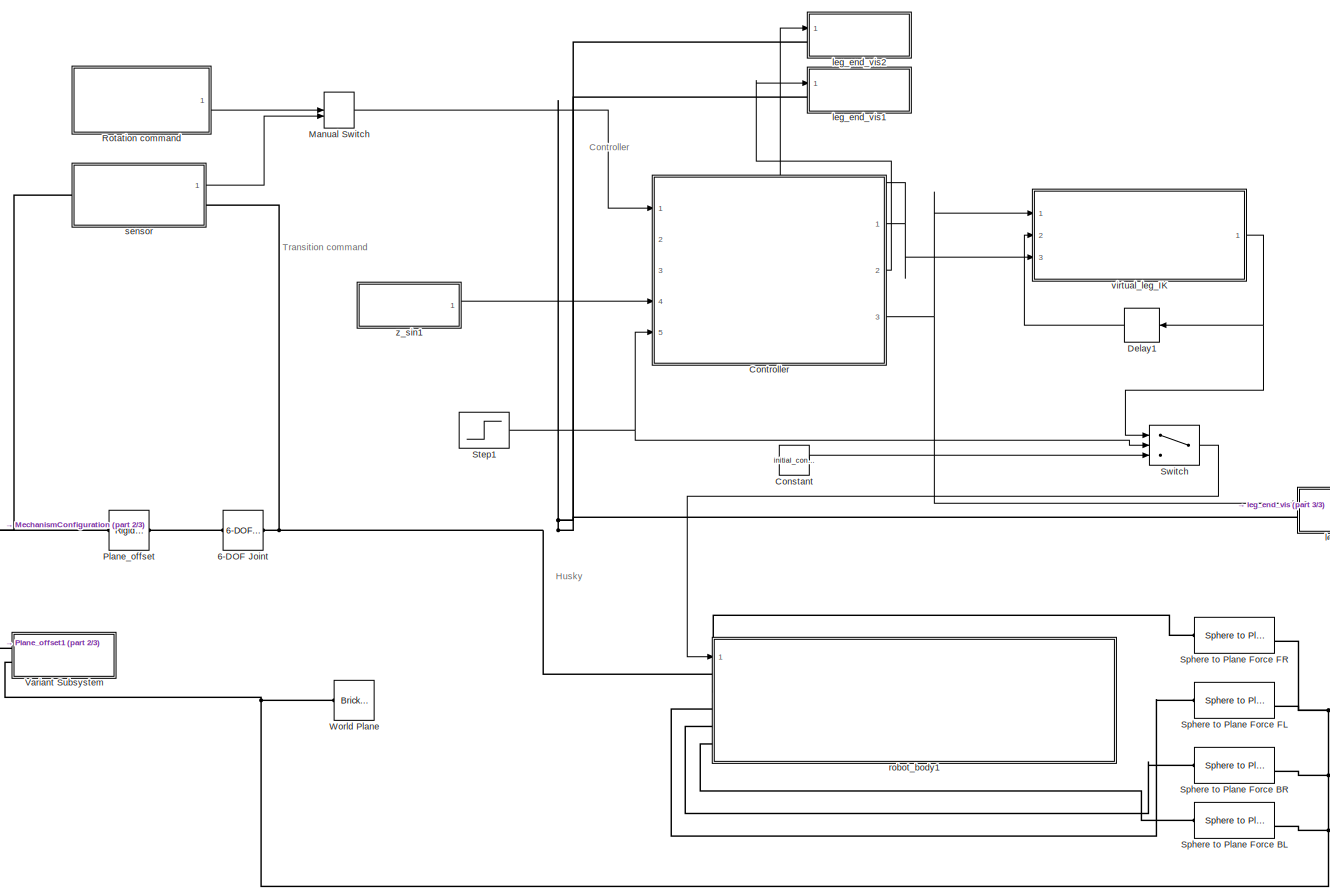
[diagram: root canvas - part 1/3, most of the canvas]
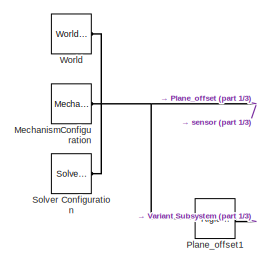
[diagram: root canvas - part 2/3, middle left region]
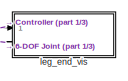
[diagram: root canvas - part 3/3, middle right region]
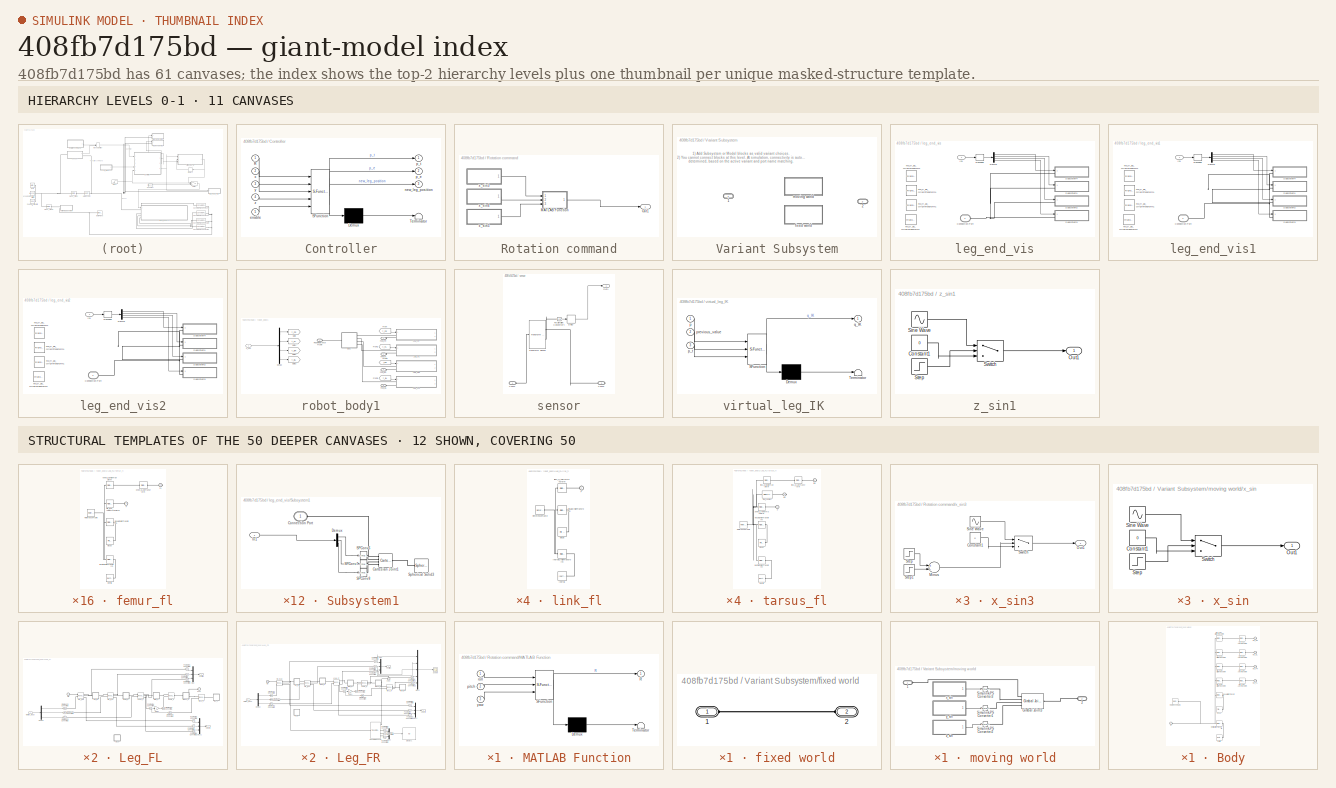
[diagram: thumbnail index - top-2 hierarchy levels (11 canvases) + 12 structural-template representatives of the remaining 50 canvases]
MODEL slx_408fb7d175bd
KIND model
CONFIG AbsTol = auto
CONFIG EnableMultiTasking = off
CONFIG FixedStep = Ts
CONFIG InitFcn = husky_balancing_init\n
CONFIG MaxStep = auto
CONFIG MinStep = auto
CONFIG RelTol = 1e-3
CONFIG SampleTimeConstraint = Unconstrained
CONFIG Solver = ode4
CONFIG SolverName = ode4
CONFIG StartTime = 0.0
CONFIG StopTime = 6
BLOCK [Reference] 6-DOF Joint  REF=sm_lib/Joints/6-DOF Joint
  Ports = [0, 0, 0, 0, 0, 1, 1]
  SourceBlock = sm_lib/Joints/6-DOF Joint
  SourceProductBaseCode = MS
  SourceProductName = Simscape Multibody
  SourceType = 6-DOF Joint
BLOCK [Constant] Constant
  Value = initial_configuration
BLOCK [SubSystem] Controller
  ErrorFcn = Stateflow.Translate.translate
  PermitHierarchicalResolution = ExplicitOnly
  Ports = [5, 3]
  RequestExecContextInheritance = off
  SFBlockType = MATLAB Function
  TreatAsAtomicUnit = on
BLOCK [Demux] Controller/ Demux 
  Outputs = 1
  Ports = [1, 1]
BLOCK [S-Function] Controller/ SFunction 
  EnableBusSupport = on
  FunctionName = sf_sfun
  Parameters = gain,initial_configuration
  PortCounts = [5 4]
  Ports = [5, 4]
  SFcnIsStateOwnerBlock = off
  SFunctionDeploymentMode = off
  Tag = Stateflow S-Function 1
BLOCK [Terminator] Controller/ Terminator 
BLOCK [Inport] Controller/R
  IconDisplay = Port number
BLOCK [Inport] Controller/enable
  IconDisplay = Port number
  Port = 5
BLOCK [Outport] Controller/new_leg_position
  IconDisplay = Port number
  Port = 3
BLOCK [Outport] Controller/p_e
  IconDisplay = Port number
  Port = 2
BLOCK [Outport] Controller/p_t
  IconDisplay = Port number
BLOCK [Inport] Controller/x
  IconDisplay = Port number
  Port = 2
BLOCK [Inport] Controller/y
  IconDisplay = Port number
  Port = 3
BLOCK [Inport] Controller/z
  IconDisplay = Port number
  Port = 4
BLOCK [Delay] Delay1
  DelayLength = 1
  InputPortMap = u0
  Ports = [1, 1]
BLOCK [ManualSwitch] Manual Switch
BLOCK [Reference] MechanismConfiguration  REF=sm_lib/Utilities/Mechanism
Configuration
  Ports = [0, 0, 0, 0, 0, 0, 1]
  SourceBlock = sm_lib/Utilities/Mechanism\nConfiguration
  SourceProductBaseCode = MS
  SourceProductName = Simscape Multibody
  SourceType = Mechanism\nConfiguration
BLOCK [Reference] Plane_offset  REF=sm_lib/Frames and
Transforms/Rigid
Transform
  Ports = [0, 0, 0, 0, 0, 1, 1]
  SourceBlock = sm_lib/Frames and\nTransforms/Rigid\nTransform
  SourceProductBaseCode = MS
  SourceProductName = Simscape Multibody
  SourceType = Rigid\nTransform
BLOCK [Reference] Plane_offset1  REF=sm_lib/Frames and
Transforms/Rigid
Transform
  Ports = [0, 0, 0, 0, 0, 1, 1]
  SourceBlock = sm_lib/Frames and\nTransforms/Rigid\nTransform
  SourceProductBaseCode = MS
  SourceProductName = Simscape Multibody
  SourceType = Rigid\nTransform
BLOCK [SubSystem] Rotation command
  Ports = [0, 1]
  RequestExecContextInheritance = off
BLOCK [SubSystem] Rotation command/MATLAB Function
  ErrorFcn = Stateflow.Translate.translate
  PermitHierarchicalResolution = ExplicitOnly
  Ports = [3, 1]
  RequestExecContextInheritance = off
  SFBlockType = MATLAB Function
  TreatAsAtomicUnit = on
BLOCK [Demux] Rotation command/MATLAB Function/ Demux 
  Outputs = 1
  Ports = [1, 1]
BLOCK [S-Function] Rotation command/MATLAB Function/ SFunction 
  EnableBusSupport = on
  FunctionName = sf_sfun
  PortCounts = [3 2]
  Ports = [3, 2]
  SFcnIsStateOwnerBlock = off
  SFunctionDeploymentMode = off
  Tag = Stateflow S-Function 2
BLOCK [Terminator] Rotation command/MATLAB Function/ Terminator 
BLOCK [Outport] Rotation command/MATLAB Function/R
  IconDisplay = Port number
BLOCK [Inport] Rotation command/MATLAB Function/pitch
  IconDisplay = Port number
  Port = 2
BLOCK [Inport] Rotation command/MATLAB Function/roll
  IconDisplay = Port number
BLOCK [Inport] Rotation command/MATLAB Function/yaw
  IconDisplay = Port number
  Port = 3
BLOCK [Outport] Rotation command/Out1
  IconDisplay = Port number
BLOCK [SubSystem] Rotation command/x_sin3
  Ports = [0, 1]
  RequestExecContextInheritance = off
BLOCK [Constant] Rotation command/x_sin3/Constant1
  Value = 0
BLOCK [Sum] Rotation command/x_sin3/Minus
  InputSameDT = off
  Inputs = +-
  OutDataTypeStr = Inherit: Inherit via internal rule
  Ports = [2, 1]
  SaturateOnIntegerOverflow = off
BLOCK [Outport] Rotation command/x_sin3/Out1
  IconDisplay = Port number
BLOCK [Sin] Rotation command/x_sin3/Sine Wave
  Amplitude = amplitude_x
  Frequency = f_x
  Phase = -x_start*f_x
  Ports = [0, 1]
  SampleTime = 0
BLOCK [Step] Rotation command/x_sin3/Step
  SampleTime = 0
  Time = x_start
BLOCK [Step] Rotation command/x_sin3/Step1
  SampleTime = 0
  Time = x_stop
BLOCK [Switch] Rotation command/x_sin3/Switch
  Criteria = u2 > Threshold
  InputSameDT = off
  SaturateOnIntegerOverflow = off
BLOCK [SubSystem] Rotation command/x_sin4
  Ports = [0, 1]
  RequestExecContextInheritance = off
BLOCK [Constant] Rotation command/x_sin4/Constant1
  Value = 0
BLOCK [Sum] Rotation command/x_sin4/Minus
  InputSameDT = off
  Inputs = +-
  OutDataTypeStr = Inherit: Inherit via internal rule
  Ports = [2, 1]
  SaturateOnIntegerOverflow = off
BLOCK [Outport] Rotation command/x_sin4/Out1
  IconDisplay = Port number
BLOCK [Sin] Rotation command/x_sin4/Sine Wave
  Amplitude = amplitude_y
  Frequency = f_y
  Phase = -y_start*f_y
  Ports = [0, 1]
  SampleTime = 0
BLOCK [Step] Rotation command/x_sin4/Step
  SampleTime = 0
  Time = y_start
BLOCK [Step] Rotation command/x_sin4/Step1
  SampleTime = 0
  Time = y_stop
BLOCK [Switch] Rotation command/x_sin4/Switch
  Criteria = u2 > Threshold
  InputSameDT = off
  SaturateOnIntegerOverflow = off
BLOCK [SubSystem] Rotation command/x_sin5
  Ports = [0, 1]
  RequestExecContextInheritance = off
BLOCK [Constant] Rotation command/x_sin5/Constant1
  Value = 0
BLOCK [Sum] Rotation command/x_sin5/Minus
  InputSameDT = off
  Inputs = +-
  OutDataTypeStr = Inherit: Inherit via internal rule
  Ports = [2, 1]
  SaturateOnIntegerOverflow = off
BLOCK [Outport] Rotation command/x_sin5/Out1
  IconDisplay = Port number
BLOCK [Sin] Rotation command/x_sin5/Sine Wave
  Amplitude = amplitude_z
  Frequency = f_z
  Phase = -z_start*f_z
  Ports = [0, 1]
  SampleTime = 0
BLOCK [Step] Rotation command/x_sin5/Step
  SampleTime = 0
  Time = z_start
BLOCK [Step] Rotation command/x_sin5/Step1
  SampleTime = 0
  Time = z_stop
BLOCK [Switch] Rotation command/x_sin5/Switch
  Criteria = u2 > Threshold
  InputSameDT = off
  SaturateOnIntegerOverflow = off
BLOCK [Reference] Solver Configuration  REF=nesl_utility/Solver
Configuration
  Ports = [0, 0, 0, 0, 0, 0, 1]
  SourceBlock = nesl_utility/Solver\nConfiguration
  SourceProductBaseCode = SS
  SourceProductName = Simscape
  SourceType = Solver\nConfiguration
BLOCK [Reference] Sphere to Plane Force BL   REF=Contact_Forces_Lib/3D/Sphere to Plane Force
  Ports = [0, 1, 0, 0, 0, 1, 1]
  SourceBlock = Contact_Forces_Lib/3D/Sphere to Plane Force
  SourceProductName = Simscape Multibody Contact Forces Library
  SourceType = Sphere to Plane Force
BLOCK [Reference] Sphere to Plane Force BR   REF=Contact_Forces_Lib/3D/Sphere to Plane Force
  Ports = [0, 1, 0, 0, 0, 1, 1]
  SourceBlock = Contact_Forces_Lib/3D/Sphere to Plane Force
  SourceProductName = Simscape Multibody Contact Forces Library
  SourceType = Sphere to Plane Force
BLOCK [Reference] Sphere to Plane Force FL  REF=Contact_Forces_Lib/3D/Sphere to Plane Force
  Ports = [0, 1, 0, 0, 0, 1, 1]
  SourceBlock = Contact_Forces_Lib/3D/Sphere to Plane Force
  SourceProductName = Simscape Multibody Contact Forces Library
  SourceType = Sphere to Plane Force
BLOCK [Reference] Sphere to Plane Force FR  REF=Contact_Forces_Lib/3D/Sphere to Plane Force
  Ports = [0, 1, 0, 0, 0, 1, 1]
  SourceBlock = Contact_Forces_Lib/3D/Sphere to Plane Force
  SourceProductName = Simscape Multibody Contact Forces Library
  SourceType = Sphere to Plane Force
BLOCK [Step] Step1
  SampleTime = 0
  Time = 2
BLOCK [Switch] Switch
  Criteria = u2 > Threshold
  InputSameDT = off
  SaturateOnIntegerOverflow = off
BLOCK [SubSystem] Variant Subsystem
  LabelModeActiveChoice = fixed_world
  Ports = [0, 0, 0, 0, 0, 2]
  RequestExecContextInheritance = off
  Variant = on
  VariantControlMode = Label
BLOCK [PMIOPort] Variant Subsystem/1
  Side = Left
BLOCK [PMIOPort] Variant Subsystem/2
  Port = 2
  Side = Left
BLOCK [SubSystem] Variant Subsystem/fixed world
  Ports = [0, 0, 0, 0, 0, 2]
  RequestExecContextInheritance = off
  VariantControl = fixed_world
BLOCK [PMIOPort] Variant Subsystem/fixed world/1
  Side = Left
BLOCK [PMIOPort] Variant Subsystem/fixed world/2
  Port = 2
  Side = Left
BLOCK [SubSystem] Variant Subsystem/moving world
  Ports = [0, 0, 0, 0, 0, 2]
  RequestExecContextInheritance = off
  VariantControl = moving_world
BLOCK [PMIOPort] Variant Subsystem/moving world/1
  Side = Left
BLOCK [PMIOPort] Variant Subsystem/moving world/2
  Port = 2
  Side = Left
BLOCK [Reference] Variant Subsystem/moving world/Gimbal Joint3  REF=sm_lib/Joints/Gimbal Joint
  Ports = [0, 0, 0, 0, 0, 4, 1]
  SourceBlock = sm_lib/Joints/Gimbal Joint
  SourceProductBaseCode = MS
  SourceProductName = Simscape Multibody
  SourceType = Gimbal Joint
BLOCK [Reference] Variant Subsystem/moving world/Simulink-PS Converter1  REF=nesl_utility/Simulink-PS
Converter
  Ports = [1, 0, 0, 0, 0, 0, 1]
  SourceBlock = nesl_utility/Simulink-PS\nConverter
  SourceProductBaseCode = SS
  SourceProductName = Simscape
  SourceType = Simulink-PS\nConverter
BLOCK [Reference] Variant Subsystem/moving world/Simulink-PS Converter2  REF=nesl_utility/Simulink-PS
Converter
  Ports = [1, 0, 0, 0, 0, 0, 1]
  SourceBlock = nesl_utility/Simulink-PS\nConverter
  SourceProductBaseCode = SS
  SourceProductName = Simscape
  SourceType = Simulink-PS\nConverter
BLOCK [Reference] Variant Subsystem/moving world/Simulink-PS Converter3  REF=nesl_utility/Simulink-PS
Converter
  Ports = [1, 0, 0, 0, 0, 0, 1]
  SourceBlock = nesl_utility/Simulink-PS\nConverter
  SourceProductBaseCode = SS
  SourceProductName = Simscape
  SourceType = Simulink-PS\nConverter
BLOCK [SubSystem] Variant Subsystem/moving world/x_sin
  Ports = [0, 1]
  RequestExecContextInheritance = off
BLOCK [Constant] Variant Subsystem/moving world/x_sin/Constant1
  Value = 0
BLOCK [Outport] Variant Subsystem/moving world/x_sin/Out1
  IconDisplay = Port number
BLOCK [Sin] Variant Subsystem/moving world/x_sin/Sine Wave
  Amplitude = amplitude_x
  Frequency = f_x
  Phase = -2*f_x
  Ports = [0, 1]
  SampleTime = 0
BLOCK [Step] Variant Subsystem/moving world/x_sin/Step
  SampleTime = 0
  Time = 2
BLOCK [Switch] Variant Subsystem/moving world/x_sin/Switch
  Criteria = u2 > Threshold
  InputSameDT = off
  SaturateOnIntegerOverflow = off
BLOCK [SubSystem] Variant Subsystem/moving world/y_sin
  Ports = [0, 1]
  RequestExecContextInheritance = off
BLOCK [Constant] Variant Subsystem/moving world/y_sin/Constant1
  Value = 0
BLOCK [Outport] Variant Subsystem/moving world/y_sin/Out1
  IconDisplay = Port number
BLOCK [Sin] Variant Subsystem/moving world/y_sin/Sine Wave
  Amplitude = amplitude_y
  Frequency = f_y
  Phase = -2*f_y
  Ports = [0, 1]
  SampleTime = 0
BLOCK [Step] Variant Subsystem/moving world/y_sin/Step
  SampleTime = 0
  Time = 2
BLOCK [Switch] Variant Subsystem/moving world/y_sin/Switch
  Criteria = u2 > Threshold
  InputSameDT = off
  SaturateOnIntegerOverflow = off
BLOCK [SubSystem] Variant Subsystem/moving world/z_sin
  Ports = [0, 1]
  RequestExecContextInheritance = off
BLOCK [Constant] Variant Subsystem/moving world/z_sin/Constant1
  Value = 0
BLOCK [Outport] Variant Subsystem/moving world/z_sin/Out1
  IconDisplay = Port number
BLOCK [Sin] Variant Subsystem/moving world/z_sin/Sine Wave
  Amplitude = amplitude_z
  Frequency = f_z
  Phase = -2*f_z
  Ports = [0, 1]
  SampleTime = 0
BLOCK [Step] Variant Subsystem/moving world/z_sin/Step
  SampleTime = 0
  Time = 2
BLOCK [Switch] Variant Subsystem/moving world/z_sin/Switch
  Criteria = u2 > Threshold
  InputSameDT = off
  SaturateOnIntegerOverflow = off
BLOCK [Reference] World  REF=sm_lib/Frames and
Transforms/World Frame
  Ports = [0, 0, 0, 0, 0, 0, 1]
  SourceBlock = sm_lib/Frames and\nTransforms/World Frame
  SourceProductBaseCode = MS
  SourceProductName = Simscape Multibody
  SourceType = World Frame
BLOCK [Reference] World Plane   REF=sm_lib/Body Elements/Brick Solid
  Ports = [0, 0, 0, 0, 0, 0, 1]
  SourceBlock = sm_lib/Body Elements/Brick Solid
  SourceProductBaseCode = MS
  SourceProductName = Simscape Multibody
  SourceType = Brick Solid
BLOCK [SubSystem] leg_end_vis
  Ports = [1, 0, 0, 0, 0, 1]
  RequestExecContextInheritance = off
BLOCK [PMIOPort] leg_end_vis/Connection Port
  Side = Left
  Tag = PMCPort
BLOCK [Demux] leg_end_vis/Demux
  DisplayOption = bar
  Ports = [1, 4]
BLOCK [Inport] leg_end_vis/In1
  IconDisplay = Port number
BLOCK [Reshape] leg_end_vis/Reshape
  OutputDimensionality = Column vector (2-D)
  Ports = [1, 1]
BLOCK [SubSystem] leg_end_vis/Subsystem1
  Ports = [1, 0, 0, 0, 0, 1]
  RequestExecContextInheritance = off
BLOCK [Reference] leg_end_vis/Subsystem1/Cartesian Joint1  REF=sm_lib/Joints/Cartesian
Joint
  Ports = [0, 0, 0, 0, 0, 4, 1]
  SourceBlock = sm_lib/Joints/Cartesian\nJoint
  SourceProductBaseCode = MS
  SourceProductName = Simscape Multibody
  SourceType = Cartesian\nJoint
BLOCK [PMIOPort] leg_end_vis/Subsystem1/Connection Port
  Side = Left
  Tag = PMCPort
BLOCK [Demux] leg_end_vis/Subsystem1/Demux
  DisplayOption = bar
  Outputs = 3
  Ports = [1, 3]
BLOCK [Inport] leg_end_vis/Subsystem1/In1
  IconDisplay = Port number
BLOCK [Reference] leg_end_vis/Subsystem1/SPConv6  REF=nesl_utility/Simulink-PS
Converter
  Ports = [1, 0, 0, 0, 0, 0, 1]
  SourceBlock = nesl_utility/Simulink-PS\nConverter
  SourceProductBaseCode = SS
  SourceProductName = Simscape
  SourceType = Simulink-PS\nConverter
BLOCK [Reference] leg_end_vis/Subsystem1/SPConv7  REF=nesl_utility/Simulink-PS
Converter
  Ports = [1, 0, 0, 0, 0, 0, 1]
  SourceBlock = nesl_utility/Simulink-PS\nConverter
  SourceProductBaseCode = SS
  SourceProductName = Simscape
  SourceType = Simulink-PS\nConverter
BLOCK [Reference] leg_end_vis/Subsystem1/SPConv8  REF=nesl_utility/Simulink-PS
Converter
  Ports = [1, 0, 0, 0, 0, 0, 1]
  SourceBlock = nesl_utility/Simulink-PS\nConverter
  SourceProductBaseCode = SS
  SourceProductName = Simscape
  SourceType = Simulink-PS\nConverter
BLOCK [Reference] leg_end_vis/Subsystem1/Spherical Solid3  REF=sm_lib/Body Elements/Spherical Solid
  Ports = [0, 0, 0, 0, 0, 0, 1]
  SourceBlock = sm_lib/Body Elements/Spherical Solid
  SourceProductBaseCode = MS
  SourceProductName = Simscape Multibody
  SourceType = Spherical Solid
BLOCK [SubSystem] leg_end_vis/Subsystem2
  Ports = [1, 0, 0, 0, 0, 1]
  RequestExecContextInheritance = off
BLOCK [Reference] leg_end_vis/Subsystem2/Cartesian Joint1  REF=sm_lib/Joints/Cartesian
Joint
  Ports = [0, 0, 0, 0, 0, 4, 1]
  SourceBlock = sm_lib/Joints/Cartesian\nJoint
  SourceProductBaseCode = MS
  SourceProductName = Simscape Multibody
  SourceType = Cartesian\nJoint
BLOCK [PMIOPort] leg_end_vis/Subsystem2/Connection Port
  Side = Left
  Tag = PMCPort
BLOCK [Demux] leg_end_vis/Subsystem2/Demux
  DisplayOption = bar
  Outputs = 3
  Ports = [1, 3]
BLOCK [Inport] leg_end_vis/Subsystem2/In1
  IconDisplay = Port number
BLOCK [Reference] leg_end_vis/Subsystem2/SPConv6  REF=nesl_utility/Simulink-PS
Converter
  Ports = [1, 0, 0, 0, 0, 0, 1]
  SourceBlock = nesl_utility/Simulink-PS\nConverter
  SourceProductBaseCode = SS
  SourceProductName = Simscape
  SourceType = Simulink-PS\nConverter
BLOCK [Reference] leg_end_vis/Subsystem2/SPConv7  REF=nesl_utility/Simulink-PS
Converter
  Ports = [1, 0, 0, 0, 0, 0, 1]
  SourceBlock = nesl_utility/Simulink-PS\nConverter
  SourceProductBaseCode = SS
  SourceProductName = Simscape
  SourceType = Simulink-PS\nConverter
BLOCK [Reference] leg_end_vis/Subsystem2/SPConv8  REF=nesl_utility/Simulink-PS
Converter
  Ports = [1, 0, 0, 0, 0, 0, 1]
  SourceBlock = nesl_utility/Simulink-PS\nConverter
  SourceProductBaseCode = SS
  SourceProductName = Simscape
  SourceType = Simulink-PS\nConverter
BLOCK [Reference] leg_end_vis/Subsystem2/Spherical Solid3  REF=sm_lib/Body Elements/Spherical Solid
  Ports = [0, 0, 0, 0, 0, 0, 1]
  SourceBlock = sm_lib/Body Elements/Spherical Solid
  SourceProductBaseCode = MS
  SourceProductName = Simscape Multibody
  SourceType = Spherical Solid
BLOCK [SubSystem] leg_end_vis/Subsystem3
  Ports = [1, 0, 0, 0, 0, 1]
  RequestExecContextInheritance = off
BLOCK [Reference] leg_end_vis/Subsystem3/Cartesian Joint1  REF=sm_lib/Joints/Cartesian
Joint
  Ports = [0, 0, 0, 0, 0, 4, 1]
  SourceBlock = sm_lib/Joints/Cartesian\nJoint
  SourceProductBaseCode = MS
  SourceProductName = Simscape Multibody
  SourceType = Cartesian\nJoint
BLOCK [PMIOPort] leg_end_vis/Subsystem3/Connection Port
  Side = Left
  Tag = PMCPort
BLOCK [Demux] leg_end_vis/Subsystem3/Demux
  DisplayOption = bar
  Outputs = 3
  Ports = [1, 3]
BLOCK [Inport] leg_end_vis/Subsystem3/In1
  IconDisplay = Port number
BLOCK [Reference] leg_end_vis/Subsystem3/SPConv6  REF=nesl_utility/Simulink-PS
Converter
  Ports = [1, 0, 0, 0, 0, 0, 1]
  SourceBlock = nesl_utility/Simulink-PS\nConverter
  SourceProductBaseCode = SS
  SourceProductName = Simscape
  SourceType = Simulink-PS\nConverter
BLOCK [Reference] leg_end_vis/Subsystem3/SPConv7  REF=nesl_utility/Simulink-PS
Converter
  Ports = [1, 0, 0, 0, 0, 0, 1]
  SourceBlock = nesl_utility/Simulink-PS\nConverter
  SourceProductBaseCode = SS
  SourceProductName = Simscape
  SourceType = Simulink-PS\nConverter
BLOCK [Reference] leg_end_vis/Subsystem3/SPConv8  REF=nesl_utility/Simulink-PS
Converter
  Ports = [1, 0, 0, 0, 0, 0, 1]
  SourceBlock = nesl_utility/Simulink-PS\nConverter
  SourceProductBaseCode = SS
  SourceProductName = Simscape
  SourceType = Simulink-PS\nConverter
BLOCK [Reference] leg_end_vis/Subsystem3/Spherical Solid3  REF=sm_lib/Body Elements/Spherical Solid
  Ports = [0, 0, 0, 0, 0, 0, 1]
  SourceBlock = sm_lib/Body Elements/Spherical Solid
  SourceProductBaseCode = MS
  SourceProductName = Simscape Multibody
  SourceType = Spherical Solid
BLOCK [SubSystem] leg_end_vis/Subsystem4
  Ports = [1, 0, 0, 0, 0, 1]
  RequestExecContextInheritance = off
BLOCK [Reference] leg_end_vis/Subsystem4/Cartesian Joint1  REF=sm_lib/Joints/Cartesian
Joint
  Ports = [0, 0, 0, 0, 0, 4, 1]
  SourceBlock = sm_lib/Joints/Cartesian\nJoint
  SourceProductBaseCode = MS
  SourceProductName = Simscape Multibody
  SourceType = Cartesian\nJoint
BLOCK [PMIOPort] leg_end_vis/Subsystem4/Connection Port
  Side = Left
  Tag = PMCPort
BLOCK [Demux] leg_end_vis/Subsystem4/Demux
  DisplayOption = bar
  Outputs = 3
  Ports = [1, 3]
BLOCK [Inport] leg_end_vis/Subsystem4/In1
  IconDisplay = Port number
BLOCK [Reference] leg_end_vis/Subsystem4/SPConv6  REF=nesl_utility/Simulink-PS
Converter
  Ports = [1, 0, 0, 0, 0, 0, 1]
  SourceBlock = nesl_utility/Simulink-PS\nConverter
  SourceProductBaseCode = SS
  SourceProductName = Simscape
  SourceType = Simulink-PS\nConverter
BLOCK [Reference] leg_end_vis/Subsystem4/SPConv7  REF=nesl_utility/Simulink-PS
Converter
  Ports = [1, 0, 0, 0, 0, 0, 1]
  SourceBlock = nesl_utility/Simulink-PS\nConverter
  SourceProductBaseCode = SS
  SourceProductName = Simscape
  SourceType = Simulink-PS\nConverter
BLOCK [Reference] leg_end_vis/Subsystem4/SPConv8  REF=nesl_utility/Simulink-PS
Converter
  Ports = [1, 0, 0, 0, 0, 0, 1]
  SourceBlock = nesl_utility/Simulink-PS\nConverter
  SourceProductBaseCode = SS
  SourceProductName = Simscape
  SourceType = Simulink-PS\nConverter
BLOCK [Reference] leg_end_vis/Subsystem4/Spherical Solid3  REF=sm_lib/Body Elements/Spherical Solid
  Ports = [0, 0, 0, 0, 0, 0, 1]
  SourceBlock = sm_lib/Body Elements/Spherical Solid
  SourceProductBaseCode = MS
  SourceProductName = Simscape Multibody
  SourceType = Spherical Solid
BLOCK [Reference] leg_end_vis/hip_fl_ab_OriginTransform1  REF=sm_lib/Frames and
Transforms/Rigid
Transform
  Commented = on
  Ports = [0, 0, 0, 0, 0, 1, 1]
  SourceBlock = sm_lib/Frames and\nTransforms/Rigid\nTransform
  SourceProductBaseCode = MS
  SourceProductName = Simscape Multibody
  SourceType = Rigid\nTransform
BLOCK [Reference] leg_end_vis/hip_fl_ab_OriginTransform2  REF=sm_lib/Frames and
Transforms/Rigid
Transform
  Commented = on
  Ports = [0, 0, 0, 0, 0, 1, 1]
  SourceBlock = sm_lib/Frames and\nTransforms/Rigid\nTransform
  SourceProductBaseCode = MS
  SourceProductName = Simscape Multibody
  SourceType = Rigid\nTransform
BLOCK [Reference] leg_end_vis/hip_fr_ab_OriginTransform  REF=sm_lib/Frames and
Transforms/Rigid
Transform
  Commented = on
  Ports = [0, 0, 0, 0, 0, 1, 1]
  SourceBlock = sm_lib/Frames and\nTransforms/Rigid\nTransform
  SourceProductBaseCode = MS
  SourceProductName = Simscape Multibody
  SourceType = Rigid\nTransform
BLOCK [Reference] leg_end_vis/hip_fr_ab_OriginTransform1  REF=sm_lib/Frames and
Transforms/Rigid
Transform
  Commented = on
  Ports = [0, 0, 0, 0, 0, 1, 1]
  SourceBlock = sm_lib/Frames and\nTransforms/Rigid\nTransform
  SourceProductBaseCode = MS
  SourceProductName = Simscape Multibody
  SourceType = Rigid\nTransform
BLOCK [SubSystem] leg_end_vis1
  Commented = on
  Ports = [1, 0, 0, 0, 0, 1]
  RequestExecContextInheritance = off
BLOCK [PMIOPort] leg_end_vis1/Connection Port
  Side = Left
  Tag = PMCPort
BLOCK [Demux] leg_end_vis1/Demux
  DisplayOption = bar
  Ports = [1, 4]
BLOCK [Inport] leg_end_vis1/In1
  IconDisplay = Port number
BLOCK [Reshape] leg_end_vis1/Reshape
  OutputDimensionality = Column vector (2-D)
  Ports = [1, 1]
BLOCK [SubSystem] leg_end_vis1/Subsystem1
  Ports = [1, 0, 0, 0, 0, 1]
  RequestExecContextInheritance = off
BLOCK [Reference] leg_end_vis1/Subsystem1/Cartesian Joint1  REF=sm_lib/Joints/Cartesian
Joint
  Ports = [0, 0, 0, 0, 0, 4, 1]
  SourceBlock = sm_lib/Joints/Cartesian\nJoint
  SourceProductBaseCode = MS
  SourceProductName = Simscape Multibody
  SourceType = Cartesian\nJoint
BLOCK [PMIOPort] leg_end_vis1/Subsystem1/Connection Port
  Side = Left
  Tag = PMCPort
BLOCK [Demux] leg_end_vis1/Subsystem1/Demux
  DisplayOption = bar
  Outputs = 3
  Ports = [1, 3]
BLOCK [Inport] leg_end_vis1/Subsystem1/In1
  IconDisplay = Port number
BLOCK [Reference] leg_end_vis1/Subsystem1/SPConv6  REF=nesl_utility/Simulink-PS
Converter
  Ports = [1, 0, 0, 0, 0, 0, 1]
  SourceBlock = nesl_utility/Simulink-PS\nConverter
  SourceProductBaseCode = SS
  SourceProductName = Simscape
  SourceType = Simulink-PS\nConverter
BLOCK [Reference] leg_end_vis1/Subsystem1/SPConv7  REF=nesl_utility/Simulink-PS
Converter
  Ports = [1, 0, 0, 0, 0, 0, 1]
  SourceBlock = nesl_utility/Simulink-PS\nConverter
  SourceProductBaseCode = SS
  SourceProductName = Simscape
  SourceType = Simulink-PS\nConverter
BLOCK [Reference] leg_end_vis1/Subsystem1/SPConv8  REF=nesl_utility/Simulink-PS
Converter
  Ports = [1, 0, 0, 0, 0, 0, 1]
  SourceBlock = nesl_utility/Simulink-PS\nConverter
  SourceProductBaseCode = SS
  SourceProductName = Simscape
  SourceType = Simulink-PS\nConverter
BLOCK [Reference] leg_end_vis1/Subsystem1/Spherical Solid3  REF=sm_lib/Body Elements/Spherical Solid
  Ports = [0, 0, 0, 0, 0, 0, 1]
  SourceBlock = sm_lib/Body Elements/Spherical Solid
  SourceProductBaseCode = MS
  SourceProductName = Simscape Multibody
  SourceType = Spherical Solid
BLOCK [SubSystem] leg_end_vis1/Subsystem2
  Ports = [1, 0, 0, 0, 0, 1]
  RequestExecContextInheritance = off
BLOCK [Reference] leg_end_vis1/Subsystem2/Cartesian Joint1  REF=sm_lib/Joints/Cartesian
Joint
  Ports = [0, 0, 0, 0, 0, 4, 1]
  SourceBlock = sm_lib/Joints/Cartesian\nJoint
  SourceProductBaseCode = MS
  SourceProductName = Simscape Multibody
  SourceType = Cartesian\nJoint
BLOCK [PMIOPort] leg_end_vis1/Subsystem2/Connection Port
  Side = Left
  Tag = PMCPort
BLOCK [Demux] leg_end_vis1/Subsystem2/Demux
  DisplayOption = bar
  Outputs = 3
  Ports = [1, 3]
BLOCK [Inport] leg_end_vis1/Subsystem2/In1
  IconDisplay = Port number
BLOCK [Reference] leg_end_vis1/Subsystem2/SPConv6  REF=nesl_utility/Simulink-PS
Converter
  Ports = [1, 0, 0, 0, 0, 0, 1]
  SourceBlock = nesl_utility/Simulink-PS\nConverter
  SourceProductBaseCode = SS
  SourceProductName = Simscape
  SourceType = Simulink-PS\nConverter
BLOCK [Reference] leg_end_vis1/Subsystem2/SPConv7  REF=nesl_utility/Simulink-PS
Converter
  Ports = [1, 0, 0, 0, 0, 0, 1]
  SourceBlock = nesl_utility/Simulink-PS\nConverter
  SourceProductBaseCode = SS
  SourceProductName = Simscape
  SourceType = Simulink-PS\nConverter
BLOCK [Reference] leg_end_vis1/Subsystem2/SPConv8  REF=nesl_utility/Simulink-PS
Converter
  Ports = [1, 0, 0, 0, 0, 0, 1]
  SourceBlock = nesl_utility/Simulink-PS\nConverter
  SourceProductBaseCode = SS
  SourceProductName = Simscape
  SourceType = Simulink-PS\nConverter
BLOCK [Reference] leg_end_vis1/Subsystem2/Spherical Solid3  REF=sm_lib/Body Elements/Spherical Solid
  Ports = [0, 0, 0, 0, 0, 0, 1]
  SourceBlock = sm_lib/Body Elements/Spherical Solid
  SourceProductBaseCode = MS
  SourceProductName = Simscape Multibody
  SourceType = Spherical Solid
BLOCK [SubSystem] leg_end_vis1/Subsystem3
  Ports = [1, 0, 0, 0, 0, 1]
  RequestExecContextInheritance = off
BLOCK [Reference] leg_end_vis1/Subsystem3/Cartesian Joint1  REF=sm_lib/Joints/Cartesian
Joint
  Ports = [0, 0, 0, 0, 0, 4, 1]
  SourceBlock = sm_lib/Joints/Cartesian\nJoint
  SourceProductBaseCode = MS
  SourceProductName = Simscape Multibody
  SourceType = Cartesian\nJoint
BLOCK [PMIOPort] leg_end_vis1/Subsystem3/Connection Port
  Side = Left
  Tag = PMCPort
BLOCK [Demux] leg_end_vis1/Subsystem3/Demux
  DisplayOption = bar
  Outputs = 3
  Ports = [1, 3]
BLOCK [Inport] leg_end_vis1/Subsystem3/In1
  IconDisplay = Port number
BLOCK [Reference] leg_end_vis1/Subsystem3/SPConv6  REF=nesl_utility/Simulink-PS
Converter
  Ports = [1, 0, 0, 0, 0, 0, 1]
  SourceBlock = nesl_utility/Simulink-PS\nConverter
  SourceProductBaseCode = SS
  SourceProductName = Simscape
  SourceType = Simulink-PS\nConverter
BLOCK [Reference] leg_end_vis1/Subsystem3/SPConv7  REF=nesl_utility/Simulink-PS
Converter
  Ports = [1, 0, 0, 0, 0, 0, 1]
  SourceBlock = nesl_utility/Simulink-PS\nConverter
  SourceProductBaseCode = SS
  SourceProductName = Simscape
  SourceType = Simulink-PS\nConverter
BLOCK [Reference] leg_end_vis1/Subsystem3/SPConv8  REF=nesl_utility/Simulink-PS
Converter
  Ports = [1, 0, 0, 0, 0, 0, 1]
  SourceBlock = nesl_utility/Simulink-PS\nConverter
  SourceProductBaseCode = SS
  SourceProductName = Simscape
  SourceType = Simulink-PS\nConverter
BLOCK [Reference] leg_end_vis1/Subsystem3/Spherical Solid3  REF=sm_lib/Body Elements/Spherical Solid
  Ports = [0, 0, 0, 0, 0, 0, 1]
  SourceBlock = sm_lib/Body Elements/Spherical Solid
  SourceProductBaseCode = MS
  SourceProductName = Simscape Multibody
  SourceType = Spherical Solid
BLOCK [SubSystem] leg_end_vis1/Subsystem4
  Ports = [1, 0, 0, 0, 0, 1]
  RequestExecContextInheritance = off
BLOCK [Reference] leg_end_vis1/Subsystem4/Cartesian Joint1  REF=sm_lib/Joints/Cartesian
Joint
  Ports = [0, 0, 0, 0, 0, 4, 1]
  SourceBlock = sm_lib/Joints/Cartesian\nJoint
  SourceProductBaseCode = MS
  SourceProductName = Simscape Multibody
  SourceType = Cartesian\nJoint
BLOCK [PMIOPort] leg_end_vis1/Subsystem4/Connection Port
  Side = Left
  Tag = PMCPort
BLOCK [Demux] leg_end_vis1/Subsystem4/Demux
  DisplayOption = bar
  Outputs = 3
  Ports = [1, 3]
BLOCK [Inport] leg_end_vis1/Subsystem4/In1
  IconDisplay = Port number
BLOCK [Reference] leg_end_vis1/Subsystem4/SPConv6  REF=nesl_utility/Simulink-PS
Converter
  Ports = [1, 0, 0, 0, 0, 0, 1]
  SourceBlock = nesl_utility/Simulink-PS\nConverter
  SourceProductBaseCode = SS
  SourceProductName = Simscape
  SourceType = Simulink-PS\nConverter
BLOCK [Reference] leg_end_vis1/Subsystem4/SPConv7  REF=nesl_utility/Simulink-PS
Converter
  Ports = [1, 0, 0, 0, 0, 0, 1]
  SourceBlock = nesl_utility/Simulink-PS\nConverter
  SourceProductBaseCode = SS
  SourceProductName = Simscape
  SourceType = Simulink-PS\nConverter
BLOCK [Reference] leg_end_vis1/Subsystem4/SPConv8  REF=nesl_utility/Simulink-PS
Converter
  Ports = [1, 0, 0, 0, 0, 0, 1]
  SourceBlock = nesl_utility/Simulink-PS\nConverter
  SourceProductBaseCode = SS
  SourceProductName = Simscape
  SourceType = Simulink-PS\nConverter
BLOCK [Reference] leg_end_vis1/Subsystem4/Spherical Solid3  REF=sm_lib/Body Elements/Spherical Solid
  Ports = [0, 0, 0, 0, 0, 0, 1]
  SourceBlock = sm_lib/Body Elements/Spherical Solid
  SourceProductBaseCode = MS
  SourceProductName = Simscape Multibody
  SourceType = Spherical Solid
BLOCK [Reference] leg_end_vis1/hip_fl_ab_OriginTransform1  REF=sm_lib/Frames and
Transforms/Rigid
Transform
  Commented = on
  Ports = [0, 0, 0, 0, 0, 1, 1]
  SourceBlock = sm_lib/Frames and\nTransforms/Rigid\nTransform
  SourceProductBaseCode = MS
  SourceProductName = Simscape Multibody
  SourceType = Rigid\nTransform
BLOCK [Reference] leg_end_vis1/hip_fl_ab_OriginTransform2  REF=sm_lib/Frames and
Transforms/Rigid
Transform
  Commented = on
  Ports = [0, 0, 0, 0, 0, 1, 1]
  SourceBlock = sm_lib/Frames and\nTransforms/Rigid\nTransform
  SourceProductBaseCode = MS
  SourceProductName = Simscape Multibody
  SourceType = Rigid\nTransform
BLOCK [Reference] leg_end_vis1/hip_fr_ab_OriginTransform  REF=sm_lib/Frames and
Transforms/Rigid
Transform
  Commented = on
  Ports = [0, 0, 0, 0, 0, 1, 1]
  SourceBlock = sm_lib/Frames and\nTransforms/Rigid\nTransform
  SourceProductBaseCode = MS
  SourceProductName = Simscape Multibody
  SourceType = Rigid\nTransform
BLOCK [Reference] leg_end_vis1/hip_fr_ab_OriginTransform1  REF=sm_lib/Frames and
Transforms/Rigid
Transform
  Commented = on
  Ports = [0, 0, 0, 0, 0, 1, 1]
  SourceBlock = sm_lib/Frames and\nTransforms/Rigid\nTransform
  SourceProductBaseCode = MS
  SourceProductName = Simscape Multibody
  SourceType = Rigid\nTransform
BLOCK [SubSystem] leg_end_vis2
  Commented = on
  Ports = [1, 0, 0, 0, 0, 1]
  RequestExecContextInheritance = off
BLOCK [PMIOPort] leg_end_vis2/Connection Port
  Side = Left
  Tag = PMCPort
BLOCK [Demux] leg_end_vis2/Demux
  DisplayOption = bar
  Ports = [1, 4]
BLOCK [Inport] leg_end_vis2/In1
  IconDisplay = Port number
BLOCK [Reshape] leg_end_vis2/Reshape
  OutputDimensionality = Column vector (2-D)
  Ports = [1, 1]
BLOCK [SubSystem] leg_end_vis2/Subsystem1
  Ports = [1, 0, 0, 0, 0, 1]
  RequestExecContextInheritance = off
BLOCK [Reference] leg_end_vis2/Subsystem1/Cartesian Joint1  REF=sm_lib/Joints/Cartesian
Joint
  Ports = [0, 0, 0, 0, 0, 4, 1]
  SourceBlock = sm_lib/Joints/Cartesian\nJoint
  SourceProductBaseCode = MS
  SourceProductName = Simscape Multibody
  SourceType = Cartesian\nJoint
BLOCK [PMIOPort] leg_end_vis2/Subsystem1/Connection Port
  Side = Left
  Tag = PMCPort
BLOCK [Demux] leg_end_vis2/Subsystem1/Demux
  DisplayOption = bar
  Outputs = 3
  Ports = [1, 3]
BLOCK [Inport] leg_end_vis2/Subsystem1/In1
  IconDisplay = Port number
BLOCK [Reference] leg_end_vis2/Subsystem1/SPConv6  REF=nesl_utility/Simulink-PS
Converter
  Ports = [1, 0, 0, 0, 0, 0, 1]
  SourceBlock = nesl_utility/Simulink-PS\nConverter
  SourceProductBaseCode = SS
  SourceProductName = Simscape
  SourceType = Simulink-PS\nConverter
BLOCK [Reference] leg_end_vis2/Subsystem1/SPConv7  REF=nesl_utility/Simulink-PS
Converter
  Ports = [1, 0, 0, 0, 0, 0, 1]
  SourceBlock = nesl_utility/Simulink-PS\nConverter
  SourceProductBaseCode = SS
  SourceProductName = Simscape
  SourceType = Simulink-PS\nConverter
BLOCK [Reference] leg_end_vis2/Subsystem1/SPConv8  REF=nesl_utility/Simulink-PS
Converter
  Ports = [1, 0, 0, 0, 0, 0, 1]
  SourceBlock = nesl_utility/Simulink-PS\nConverter
  SourceProductBaseCode = SS
  SourceProductName = Simscape
  SourceType = Simulink-PS\nConverter
BLOCK [Reference] leg_end_vis2/Subsystem1/Spherical Solid3  REF=sm_lib/Body Elements/Spherical Solid
  Ports = [0, 0, 0, 0, 0, 0, 1]
  SourceBlock = sm_lib/Body Elements/Spherical Solid
  SourceProductBaseCode = MS
  SourceProductName = Simscape Multibody
  SourceType = Spherical Solid
BLOCK [SubSystem] leg_end_vis2/Subsystem2
  Ports = [1, 0, 0, 0, 0, 1]
  RequestExecContextInheritance = off
BLOCK [Reference] leg_end_vis2/Subsystem2/Cartesian Joint1  REF=sm_lib/Joints/Cartesian
Joint
  Ports = [0, 0, 0, 0, 0, 4, 1]
  SourceBlock = sm_lib/Joints/Cartesian\nJoint
  SourceProductBaseCode = MS
  SourceProductName = Simscape Multibody
  SourceType = Cartesian\nJoint
BLOCK [PMIOPort] leg_end_vis2/Subsystem2/Connection Port
  Side = Left
  Tag = PMCPort
BLOCK [Demux] leg_end_vis2/Subsystem2/Demux
  DisplayOption = bar
  Outputs = 3
  Ports = [1, 3]
BLOCK [Inport] leg_end_vis2/Subsystem2/In1
  IconDisplay = Port number
BLOCK [Reference] leg_end_vis2/Subsystem2/SPConv6  REF=nesl_utility/Simulink-PS
Converter
  Ports = [1, 0, 0, 0, 0, 0, 1]
  SourceBlock = nesl_utility/Simulink-PS\nConverter
  SourceProductBaseCode = SS
  SourceProductName = Simscape
  SourceType = Simulink-PS\nConverter
BLOCK [Reference] leg_end_vis2/Subsystem2/SPConv7  REF=nesl_utility/Simulink-PS
Converter
  Ports = [1, 0, 0, 0, 0, 0, 1]
  SourceBlock = nesl_utility/Simulink-PS\nConverter
  SourceProductBaseCode = SS
  SourceProductName = Simscape
  SourceType = Simulink-PS\nConverter
BLOCK [Reference] leg_end_vis2/Subsystem2/SPConv8  REF=nesl_utility/Simulink-PS
Converter
  Ports = [1, 0, 0, 0, 0, 0, 1]
  SourceBlock = nesl_utility/Simulink-PS\nConverter
  SourceProductBaseCode = SS
  SourceProductName = Simscape
  SourceType = Simulink-PS\nConverter
BLOCK [Reference] leg_end_vis2/Subsystem2/Spherical Solid3  REF=sm_lib/Body Elements/Spherical Solid
  Ports = [0, 0, 0, 0, 0, 0, 1]
  SourceBlock = sm_lib/Body Elements/Spherical Solid
  SourceProductBaseCode = MS
  SourceProductName = Simscape Multibody
  SourceType = Spherical Solid
BLOCK [SubSystem] leg_end_vis2/Subsystem3
  Ports = [1, 0, 0, 0, 0, 1]
  RequestExecContextInheritance = off
BLOCK [Reference] leg_end_vis2/Subsystem3/Cartesian Joint1  REF=sm_lib/Joints/Cartesian
Joint
  Ports = [0, 0, 0, 0, 0, 4, 1]
  SourceBlock = sm_lib/Joints/Cartesian\nJoint
  SourceProductBaseCode = MS
  SourceProductName = Simscape Multibody
  SourceType = Cartesian\nJoint
BLOCK [PMIOPort] leg_end_vis2/Subsystem3/Connection Port
  Side = Left
  Tag = PMCPort
BLOCK [Demux] leg_end_vis2/Subsystem3/Demux
  DisplayOption = bar
  Outputs = 3
  Ports = [1, 3]
BLOCK [Inport] leg_end_vis2/Subsystem3/In1
  IconDisplay = Port number
BLOCK [Reference] leg_end_vis2/Subsystem3/SPConv6  REF=nesl_utility/Simulink-PS
Converter
  Ports = [1, 0, 0, 0, 0, 0, 1]
  SourceBlock = nesl_utility/Simulink-PS\nConverter
  SourceProductBaseCode = SS
  SourceProductName = Simscape
  SourceType = Simulink-PS\nConverter
BLOCK [Reference] leg_end_vis2/Subsystem3/SPConv7  REF=nesl_utility/Simulink-PS
Converter
  Ports = [1, 0, 0, 0, 0, 0, 1]
  SourceBlock = nesl_utility/Simulink-PS\nConverter
  SourceProductBaseCode = SS
  SourceProductName = Simscape
  SourceType = Simulink-PS\nConverter
BLOCK [Reference] leg_end_vis2/Subsystem3/SPConv8  REF=nesl_utility/Simulink-PS
Converter
  Ports = [1, 0, 0, 0, 0, 0, 1]
  SourceBlock = nesl_utility/Simulink-PS\nConverter
  SourceProductBaseCode = SS
  SourceProductName = Simscape
  SourceType = Simulink-PS\nConverter
BLOCK [Reference] leg_end_vis2/Subsystem3/Spherical Solid3  REF=sm_lib/Body Elements/Spherical Solid
  Ports = [0, 0, 0, 0, 0, 0, 1]
  SourceBlock = sm_lib/Body Elements/Spherical Solid
  SourceProductBaseCode = MS
  SourceProductName = Simscape Multibody
  SourceType = Spherical Solid
BLOCK [SubSystem] leg_end_vis2/Subsystem4
  Ports = [1, 0, 0, 0, 0, 1]
  RequestExecContextInheritance = off
BLOCK [Reference] leg_end_vis2/Subsystem4/Cartesian Joint1  REF=sm_lib/Joints/Cartesian
Joint
  Ports = [0, 0, 0, 0, 0, 4, 1]
  SourceBlock = sm_lib/Joints/Cartesian\nJoint
  SourceProductBaseCode = MS
  SourceProductName = Simscape Multibody
  SourceType = Cartesian\nJoint
BLOCK [PMIOPort] leg_end_vis2/Subsystem4/Connection Port
  Side = Left
  Tag = PMCPort
BLOCK [Demux] leg_end_vis2/Subsystem4/Demux
  DisplayOption = bar
  Outputs = 3
  Ports = [1, 3]
BLOCK [Inport] leg_end_vis2/Subsystem4/In1
  IconDisplay = Port number
BLOCK [Reference] leg_end_vis2/Subsystem4/SPConv6  REF=nesl_utility/Simulink-PS
Converter
  Ports = [1, 0, 0, 0, 0, 0, 1]
  SourceBlock = nesl_utility/Simulink-PS\nConverter
  SourceProductBaseCode = SS
  SourceProductName = Simscape
  SourceType = Simulink-PS\nConverter
BLOCK [Reference] leg_end_vis2/Subsystem4/SPConv7  REF=nesl_utility/Simulink-PS
Converter
  Ports = [1, 0, 0, 0, 0, 0, 1]
  SourceBlock = nesl_utility/Simulink-PS\nConverter
  SourceProductBaseCode = SS
  SourceProductName = Simscape
  SourceType = Simulink-PS\nConverter
BLOCK [Reference] leg_end_vis2/Subsystem4/SPConv8  REF=nesl_utility/Simulink-PS
Converter
  Ports = [1, 0, 0, 0, 0, 0, 1]
  SourceBlock = nesl_utility/Simulink-PS\nConverter
  SourceProductBaseCode = SS
  SourceProductName = Simscape
  SourceType = Simulink-PS\nConverter
BLOCK [Reference] leg_end_vis2/Subsystem4/Spherical Solid3  REF=sm_lib/Body Elements/Spherical Solid
  Ports = [0, 0, 0, 0, 0, 0, 1]
  SourceBlock = sm_lib/Body Elements/Spherical Solid
  SourceProductBaseCode = MS
  SourceProductName = Simscape Multibody
  SourceType = Spherical Solid
BLOCK [Reference] leg_end_vis2/hip_fl_ab_OriginTransform1  REF=sm_lib/Frames and
Transforms/Rigid
Transform
  Commented = on
  Ports = [0, 0, 0, 0, 0, 1, 1]
  SourceBlock = sm_lib/Frames and\nTransforms/Rigid\nTransform
  SourceProductBaseCode = MS
  SourceProductName = Simscape Multibody
  SourceType = Rigid\nTransform
BLOCK [Reference] leg_end_vis2/hip_fl_ab_OriginTransform2  REF=sm_lib/Frames and
Transforms/Rigid
Transform
  Commented = on
  Ports = [0, 0, 0, 0, 0, 1, 1]
  SourceBlock = sm_lib/Frames and\nTransforms/Rigid\nTransform
  SourceProductBaseCode = MS
  SourceProductName = Simscape Multibody
  SourceType = Rigid\nTransform
BLOCK [Reference] leg_end_vis2/hip_fr_ab_OriginTransform  REF=sm_lib/Frames and
Transforms/Rigid
Transform
  Commented = on
  Ports = [0, 0, 0, 0, 0, 1, 1]
  SourceBlock = sm_lib/Frames and\nTransforms/Rigid\nTransform
  SourceProductBaseCode = MS
  SourceProductName = Simscape Multibody
  SourceType = Rigid\nTransform
BLOCK [Reference] leg_end_vis2/hip_fr_ab_OriginTransform1  REF=sm_lib/Frames and
Transforms/Rigid
Transform
  Commented = on
  Ports = [0, 0, 0, 0, 0, 1, 1]
  SourceBlock = sm_lib/Frames and\nTransforms/Rigid\nTransform
  SourceProductBaseCode = MS
  SourceProductName = Simscape Multibody
  SourceType = Rigid\nTransform
BLOCK [SubSystem] robot_body1
  Ports = [1, 0, 0, 0, 0, 5]
  RequestExecContextInheritance = off
BLOCK [SubSystem] robot_body1/Body
  Ports = [0, 0, 0, 0, 0, 1, 4]
  RequestExecContextInheritance = off
BLOCK [PMIOPort] robot_body1/Body/F
  Side = Left
BLOCK [Reference] robot_body1/Body/Inertia  REF=sm_lib/Body Elements/Inertia
  Ports = [0, 0, 0, 0, 0, 0, 1]
  SourceBlock = sm_lib/Body Elements/Inertia
  SourceProductBaseCode = MS
  SourceProductName = Simscape Multibody
  SourceType = Inertia
BLOCK [Reference] robot_body1/Body/InertiaOriginTransform  REF=sm_lib/Frames and
Transforms/Rigid
Transform
  Ports = [0, 0, 0, 0, 0, 1, 1]
  SourceBlock = sm_lib/Frames and\nTransforms/Rigid\nTransform
  SourceProductBaseCode = MS
  SourceProductName = Simscape Multibody
  SourceType = Rigid\nTransform
BLOCK [Reference] robot_body1/Body/ReferenceFrame  REF=sm_lib/Frames and
Transforms/Reference
Frame
  Ports = [0, 0, 0, 0, 0, 0, 1]
  SourceBlock = sm_lib/Frames and\nTransforms/Reference\nFrame
  SourceProductBaseCode = MS
  SourceProductName = Simscape Multibody
  SourceType = Reference\nFrame
BLOCK [Reference] robot_body1/Body/Visual  REF=sm_lib/Body Elements/File Solid
  Ports = [0, 0, 0, 0, 0, 0, 1]
  SourceBlock = sm_lib/Body Elements/File Solid
  SourceProductBaseCode = MS
  SourceProductName = Simscape Multibody
  SourceType = File Solid
BLOCK [Reference] robot_body1/Body/VisualOriginTransform  REF=sm_lib/Frames and
Transforms/Rigid
Transform
  Ports = [0, 0, 0, 0, 0, 1, 1]
  SourceBlock = sm_lib/Frames and\nTransforms/Rigid\nTransform
  SourceProductBaseCode = MS
  SourceProductName = Simscape Multibody
  SourceType = Rigid\nTransform
BLOCK [PMIOPort] robot_body1/Body/hip_BL
  Port = 5
  Side = Right
BLOCK [PMIOPort] robot_body1/Body/hip_BR
  Port = 4
  Side = Right
BLOCK [PMIOPort] robot_body1/Body/hip_FL
  Port = 3
  Side = Right
BLOCK [PMIOPort] robot_body1/Body/hip_FR
  Port = 2
  Side = Right
BLOCK [Reference] robot_body1/Body/hip_fl_ab_AxisTransform  REF=sm_lib/Frames and
Transforms/Rigid
Transform
  Ports = [0, 0, 0, 0, 0, 1, 1]
  SourceBlock = sm_lib/Frames and\nTransforms/Rigid\nTransform
  SourceProductBaseCode = MS
  SourceProductName = Simscape Multibody
  SourceType = Rigid\nTransform
BLOCK [Reference] robot_body1/Body/hip_fl_ab_OriginTransform  REF=sm_lib/Frames and
Transforms/Rigid
Transform
  Ports = [0, 0, 0, 0, 0, 1, 1]
  SourceBlock = sm_lib/Frames and\nTransforms/Rigid\nTransform
  SourceProductBaseCode = MS
  SourceProductName = Simscape Multibody
  SourceType = Rigid\nTransform
BLOCK [Reference] robot_body1/Body/hip_fr_ab_AxisTransform  REF=sm_lib/Frames and
Transforms/Rigid
Transform
  Ports = [0, 0, 0, 0, 0, 1, 1]
  SourceBlock = sm_lib/Frames and\nTransforms/Rigid\nTransform
  SourceProductBaseCode = MS
  SourceProductName = Simscape Multibody
  SourceType = Rigid\nTransform
BLOCK [Reference] robot_body1/Body/hip_fr_ab_OriginTransform  REF=sm_lib/Frames and
Transforms/Rigid
Transform
  Ports = [0, 0, 0, 0, 0, 1, 1]
  SourceBlock = sm_lib/Frames and\nTransforms/Rigid\nTransform
  SourceProductBaseCode = MS
  SourceProductName = Simscape Multibody
  SourceType = Rigid\nTransform
BLOCK [Reference] robot_body1/Body/hip_rl_ab_AxisTransform  REF=sm_lib/Frames and
Transforms/Rigid
Transform
  Ports = [0, 0, 0, 0, 0, 1, 1]
  SourceBlock = sm_lib/Frames and\nTransforms/Rigid\nTransform
  SourceProductBaseCode = MS
  SourceProductName = Simscape Multibody
  SourceType = Rigid\nTransform
BLOCK [Reference] robot_body1/Body/hip_rl_ab_OriginTransform  REF=sm_lib/Frames and
Transforms/Rigid
Transform
  Ports = [0, 0, 0, 0, 0, 1, 1]
  SourceBlock = sm_lib/Frames and\nTransforms/Rigid\nTransform
  SourceProductBaseCode = MS
  SourceProductName = Simscape Multibody
  SourceType = Rigid\nTransform
BLOCK [Reference] robot_body1/Body/hip_rr_ab_AxisTransform  REF=sm_lib/Frames and
Transforms/Rigid
Transform
  Ports = [0, 0, 0, 0, 0, 1, 1]
  SourceBlock = sm_lib/Frames and\nTransforms/Rigid\nTransform
  SourceProductBaseCode = MS
  SourceProductName = Simscape Multibody
  SourceType = Rigid\nTransform
BLOCK [Reference] robot_body1/Body/hip_rr_ab_OriginTransform  REF=sm_lib/Frames and
Transforms/Rigid
Transform
  Ports = [0, 0, 0, 0, 0, 1, 1]
  SourceBlock = sm_lib/Frames and\nTransforms/Rigid\nTransform
  SourceProductBaseCode = MS
  SourceProductName = Simscape Multibody
  SourceType = Rigid\nTransform
BLOCK [Demux] robot_body1/Demux
  DisplayOption = bar
  Ports = [1, 4]
BLOCK [PMIOPort] robot_body1/Foot_BL
  Port = 5
  Side = Left
BLOCK [PMIOPort] robot_body1/Foot_BR
  Port = 4
  Side = Left
BLOCK [PMIOPort] robot_body1/Foot_FL
  Port = 3
  Side = Left
BLOCK [PMIOPort] robot_body1/Foot_FR
  Port = 2
  Side = Left
BLOCK [From] robot_body1/From
  GotoTag = t_FR
BLOCK [From] robot_body1/From1
  GotoTag = t_FL
BLOCK [From] robot_body1/From2
  GotoTag = t_BR
BLOCK [From] robot_body1/From3
  GotoTag = t_BL
BLOCK [Goto] robot_body1/Goto
  GotoTag = t_FR
BLOCK [Goto] robot_body1/Goto1
  GotoTag = t_FL
BLOCK [Goto] robot_body1/Goto2
  GotoTag = t_BR
BLOCK [Goto] robot_body1/Goto3
  GotoTag = t_BL
BLOCK [SubSystem] robot_body1/Leg_FL
  Ports = [1, 2, 0, 0, 0, 2]
  RequestExecContextInheritance = off
BLOCK [Demux] robot_body1/Leg_FL/Demux
  DisplayOption = bar
  Outputs = 3
  Ports = [1, 3]
BLOCK [PMIOPort] robot_body1/Leg_FL/Foot
  Port = 2
  Side = Left
BLOCK [Gain] robot_body1/Leg_FL/Gain1
  Gain = -1
  OutDataTypeStr = Inherit: Inherit via internal rule
  ParamDataTypeStr = Inherit: Inherit via internal rule
  SaturateOnIntegerOverflow = off
BLOCK [PMIOPort] robot_body1/Leg_FL/Hip
  Side = Left
BLOCK [Inport] robot_body1/Leg_FL/Motion_Input
  IconDisplay = Port number
BLOCK [Mux] robot_body1/Leg_FL/Mux
  DisplayOption = bar
  Inputs = 3
  Ports = [3, 1]
BLOCK [Mux] robot_body1/Leg_FL/Mux1
  DisplayOption = bar
  Inputs = 3
  Ports = [3, 1]
BLOCK [Reference] robot_body1/Leg_FL/PS-Simulink Converter1  REF=nesl_utility/PS-Simulink
Converter
  Ports = [0, 1, 0, 0, 0, 1]
  SourceBlock = nesl_utility/PS-Simulink\nConverter
  SourceProductBaseCode = SS
  SourceProductName = Simscape
  SourceType = PS-Simulink\nConverter
BLOCK [Reference] robot_body1/Leg_FL/PS-Simulink Converter10  REF=nesl_utility/PS-Simulink
Converter
  Ports = [0, 1, 0, 0, 0, 1]
  SourceBlock = nesl_utility/PS-Simulink\nConverter
  SourceProductBaseCode = SS
  SourceProductName = Simscape
  SourceType = PS-Simulink\nConverter
BLOCK [Reference] robot_body1/Leg_FL/PS-Simulink Converter2  REF=nesl_utility/PS-Simulink
Converter
  Ports = [0, 1, 0, 0, 0, 1]
  SourceBlock = nesl_utility/PS-Simulink\nConverter
  SourceProductBaseCode = SS
  SourceProductName = Simscape
  SourceType = PS-Simulink\nConverter
BLOCK [Reference] robot_body1/Leg_FL/PS-Simulink Converter3  REF=nesl_utility/PS-Simulink
Converter
  Ports = [0, 1, 0, 0, 0, 1]
  SourceBlock = nesl_utility/PS-Simulink\nConverter
  SourceProductBaseCode = SS
  SourceProductName = Simscape
  SourceType = PS-Simulink\nConverter
BLOCK [Reference] robot_body1/Leg_FL/PS-Simulink Converter7  REF=nesl_utility/PS-Simulink
Converter
  Ports = [0, 1, 0, 0, 0, 1]
  SourceBlock = nesl_utility/PS-Simulink\nConverter
  SourceProductBaseCode = SS
  SourceProductName = Simscape
  SourceType = PS-Simulink\nConverter
BLOCK [Reference] robot_body1/Leg_FL/PS-Simulink Converter8  REF=nesl_utility/PS-Simulink
Converter
  Ports = [0, 1, 0, 0, 0, 1]
  SourceBlock = nesl_utility/PS-Simulink\nConverter
  SourceProductBaseCode = SS
  SourceProductName = Simscape
  SourceType = PS-Simulink\nConverter
BLOCK [Reference] robot_body1/Leg_FL/PS-Simulink Converter9  REF=nesl_utility/PS-Simulink
Converter
  Ports = [0, 1, 0, 0, 0, 1]
  SourceBlock = nesl_utility/PS-Simulink\nConverter
  SourceProductBaseCode = SS
  SourceProductName = Simscape
  SourceType = PS-Simulink\nConverter
BLOCK [Outport] robot_body1/Leg_FL/Position
  IconDisplay = Port number
BLOCK [Reference] robot_body1/Leg_FL/Simulink-PS Converter1  REF=nesl_utility/Simulink-PS
Converter
  Ports = [1, 0, 0, 0, 0, 0, 1]
  SourceBlock = nesl_utility/Simulink-PS\nConverter
  SourceProductBaseCode = SS
  SourceProductName = Simscape
  SourceType = Simulink-PS\nConverter
BLOCK [Reference] robot_body1/Leg_FL/Simulink-PS Converter2  REF=nesl_utility/Simulink-PS
Converter
  Ports = [1, 0, 0, 0, 0, 0, 1]
  SourceBlock = nesl_utility/Simulink-PS\nConverter
  SourceProductBaseCode = SS
  SourceProductName = Simscape
  SourceType = Simulink-PS\nConverter
BLOCK [Reference] robot_body1/Leg_FL/Simulink-PS Converter3  REF=nesl_utility/Simulink-PS
Converter
  Ports = [1, 0, 0, 0, 0, 0, 1]
  SourceBlock = nesl_utility/Simulink-PS\nConverter
  SourceProductBaseCode = SS
  SourceProductName = Simscape
  SourceType = Simulink-PS\nConverter
BLOCK [Reference] robot_body1/Leg_FL/Simulink-PS Converter4  REF=nesl_utility/Simulink-PS
Converter
  Ports = [1, 0, 0, 0, 0, 0, 1]
  SourceBlock = nesl_utility/Simulink-PS\nConverter
  SourceProductBaseCode = SS
  SourceProductName = Simscape
  SourceType = Simulink-PS\nConverter
BLOCK [Reference] robot_body1/Leg_FL/Simulink-PS Converter6  REF=nesl_utility/Simulink-PS
Converter
  Ports = [1, 0, 0, 0, 0, 0, 1]
  SourceBlock = nesl_utility/Simulink-PS\nConverter
  SourceProductBaseCode = SS
  SourceProductName = Simscape
  SourceType = Simulink-PS\nConverter
BLOCK [Outport] robot_body1/Leg_FL/Velocity
  IconDisplay = Port number
  Port = 2
BLOCK [Reference] robot_body1/Leg_FL/ankle_fl  REF=sm_lib/Joints/Revolute Joint
  Ports = [0, 0, 0, 0, 0, 2, 1]
  SourceBlock = sm_lib/Joints/Revolute Joint
  SourceProductBaseCode = MS
  SourceProductName = Simscape Multibody
  SourceType = Revolute Joint
BLOCK [SubSystem] robot_body1/Leg_FL/femur_fl
  Ports = [0, 0, 0, 0, 0, 1, 1]
  RequestExecContextInheritance = off
BLOCK [PMIOPort] robot_body1/Leg_FL/femur_fl/F
  Side = Left
BLOCK [PMIOPort] robot_body1/Leg_FL/femur_fl/F1
  Port = 2
  Side = Right
BLOCK [Reference] robot_body1/Leg_FL/femur_fl/Inertia  REF=sm_lib/Body Elements/Inertia
  Ports = [0, 0, 0, 0, 0, 0, 1]
  SourceBlock = sm_lib/Body Elements/Inertia
  SourceProductBaseCode = MS
  SourceProductName = Simscape Multibody
  SourceType = Inertia
BLOCK [Reference] robot_body1/Leg_FL/femur_fl/InertiaOriginTransform  REF=sm_lib/Frames and
Transforms/Rigid
Transform
  Ports = [0, 0, 0, 0, 0, 1, 1]
  SourceBlock = sm_lib/Frames and\nTransforms/Rigid\nTransform
  SourceProductBaseCode = MS
  SourceProductName = Simscape Multibody
  SourceType = Rigid\nTransform
BLOCK [Reference] robot_body1/Leg_FL/femur_fl/ReferenceFrame  REF=sm_lib/Frames and
Transforms/Reference
Frame
  Ports = [0, 0, 0, 0, 0, 0, 1]
  SourceBlock = sm_lib/Frames and\nTransforms/Reference\nFrame
  SourceProductBaseCode = MS
  SourceProductName = Simscape Multibody
  SourceType = Reference\nFrame
BLOCK [Reference] robot_body1/Leg_FL/femur_fl/Visual  REF=sm_lib/Body Elements/File Solid
  Ports = [0, 0, 0, 0, 0, 0, 1]
  SourceBlock = sm_lib/Body Elements/File Solid
  SourceProductBaseCode = MS
  SourceProductName = Simscape Multibody
  SourceType = File Solid
BLOCK [Reference] robot_body1/Leg_FL/femur_fl/VisualOriginTransform  REF=sm_lib/Frames and
Transforms/Rigid
Transform
  Ports = [0, 0, 0, 0, 0, 1, 1]
  SourceBlock = sm_lib/Frames and\nTransforms/Rigid\nTransform
  SourceProductBaseCode = MS
  SourceProductName = Simscape Multibody
  SourceType = Rigid\nTransform
BLOCK [Reference] robot_body1/Leg_FL/femur_fl/hip_fl_ex_AxisInvTransform  REF=sm_lib/Frames and
Transforms/Rigid
Transform
  Ports = [0, 0, 0, 0, 0, 1, 1]
  SourceBlock = sm_lib/Frames and\nTransforms/Rigid\nTransform
  SourceProductBaseCode = MS
  SourceProductName = Simscape Multibody
  SourceType = Rigid\nTransform
BLOCK [Reference] robot_body1/Leg_FL/femur_fl/knee_fl_AxisTransform  REF=sm_lib/Frames and
Transforms/Rigid
Transform
  Ports = [0, 0, 0, 0, 0, 1, 1]
  SourceBlock = sm_lib/Frames and\nTransforms/Rigid\nTransform
  SourceProductBaseCode = MS
  SourceProductName = Simscape Multibody
  SourceType = Rigid\nTransform
BLOCK [Reference] robot_body1/Leg_FL/femur_fl/knee_fl_OriginTransform  REF=sm_lib/Frames and
Transforms/Rigid
Transform
  Ports = [0, 0, 0, 0, 0, 1, 1]
  SourceBlock = sm_lib/Frames and\nTransforms/Rigid\nTransform
  SourceProductBaseCode = MS
  SourceProductName = Simscape Multibody
  SourceType = Rigid\nTransform
BLOCK [SubSystem] robot_body1/Leg_FL/hip_fl
  Commented = on
  Ports = [0, 0, 0, 0, 0, 1, 1]
  RequestExecContextInheritance = off
BLOCK [PMIOPort] robot_body1/Leg_FL/hip_fl/F
  Side = Left
BLOCK [PMIOPort] robot_body1/Leg_FL/hip_fl/F1
  Port = 2
  Side = Right
BLOCK [Reference] robot_body1/Leg_FL/hip_fl/Inertia  REF=sm_lib/Body Elements/Inertia
  Ports = [0, 0, 0, 0, 0, 0, 1]
  SourceBlock = sm_lib/Body Elements/Inertia
  SourceProductBaseCode = MS
  SourceProductName = Simscape Multibody
  SourceType = Inertia
BLOCK [Reference] robot_body1/Leg_FL/hip_fl/InertiaOriginTransform  REF=sm_lib/Frames and
Transforms/Rigid
Transform
  Ports = [0, 0, 0, 0, 0, 1, 1]
  SourceBlock = sm_lib/Frames and\nTransforms/Rigid\nTransform
  SourceProductBaseCode = MS
  SourceProductName = Simscape Multibody
  SourceType = Rigid\nTransform
BLOCK [Reference] robot_body1/Leg_FL/hip_fl/ReferenceFrame  REF=sm_lib/Frames and
Transforms/Reference
Frame
  Ports = [0, 0, 0, 0, 0, 0, 1]
  SourceBlock = sm_lib/Frames and\nTransforms/Reference\nFrame
  SourceProductBaseCode = MS
  SourceProductName = Simscape Multibody
  SourceType = Reference\nFrame
BLOCK [Reference] robot_body1/Leg_FL/hip_fl/Visual  REF=sm_lib/Body Elements/File Solid
  Ports = [0, 0, 0, 0, 0, 0, 1]
  SourceBlock = sm_lib/Body Elements/File Solid
  SourceProductBaseCode = MS
  SourceProductName = Simscape Multibody
  SourceType = File Solid
BLOCK [Reference] robot_body1/Leg_FL/hip_fl/VisualOriginTransform  REF=sm_lib/Frames and
Transforms/Rigid
Transform
  Ports = [0, 0, 0, 0, 0, 1, 1]
  SourceBlock = sm_lib/Frames and\nTransforms/Rigid\nTransform
  SourceProductBaseCode = MS
  SourceProductName = Simscape Multibody
  SourceType = Rigid\nTransform
BLOCK [Reference] robot_body1/Leg_FL/hip_fl/hip_fl_ab_AxisInvTransform  REF=sm_lib/Frames and
Transforms/Rigid
Transform
  Ports = [0, 0, 0, 0, 0, 1, 1]
  SourceBlock = sm_lib/Frames and\nTransforms/Rigid\nTransform
  SourceProductBaseCode = MS
  SourceProductName = Simscape Multibody
  SourceType = Rigid\nTransform
BLOCK [Reference] robot_body1/Leg_FL/hip_fl/hip_fl_ex_AxisTransform  REF=sm_lib/Frames and
Transforms/Rigid
Transform
  Ports = [0, 0, 0, 0, 0, 1, 1]
  SourceBlock = sm_lib/Frames and\nTransforms/Rigid\nTransform
  SourceProductBaseCode = MS
  SourceProductName = Simscape Multibody
  SourceType = Rigid\nTransform
BLOCK [Reference] robot_body1/Leg_FL/hip_fl/hip_fl_ex_OriginTransform  REF=sm_lib/Frames and
Transforms/Rigid
Transform
  Ports = [0, 0, 0, 0, 0, 1, 1]
  SourceBlock = sm_lib/Frames and\nTransforms/Rigid\nTransform
  SourceProductBaseCode = MS
  SourceProductName = Simscape Multibody
  SourceType = Rigid\nTransform
BLOCK [SubSystem] robot_body1/Leg_FL/hip_fl1
  Ports = [0, 0, 0, 0, 0, 1, 1]
  RequestExecContextInheritance = off
BLOCK [PMIOPort] robot_body1/Leg_FL/hip_fl1/F
  Side = Left
BLOCK [PMIOPort] robot_body1/Leg_FL/hip_fl1/F1
  Port = 2
  Side = Right
BLOCK [Reference] robot_body1/Leg_FL/hip_fl1/Inertia  REF=sm_lib/Body Elements/Inertia
  Ports = [0, 0, 0, 0, 0, 0, 1]
  SourceBlock = sm_lib/Body Elements/Inertia
  SourceProductBaseCode = MS
  SourceProductName = Simscape Multibody
  SourceType = Inertia
BLOCK [Reference] robot_body1/Leg_FL/hip_fl1/InertiaOriginTransform  REF=sm_lib/Frames and
Transforms/Rigid
Transform
  Ports = [0, 0, 0, 0, 0, 1, 1]
  SourceBlock = sm_lib/Frames and\nTransforms/Rigid\nTransform
  SourceProductBaseCode = MS
  SourceProductName = Simscape Multibody
  SourceType = Rigid\nTransform
BLOCK [Reference] robot_body1/Leg_FL/hip_fl1/ReferenceFrame  REF=sm_lib/Frames and
Transforms/Reference
Frame
  Ports = [0, 0, 0, 0, 0, 0, 1]
  SourceBlock = sm_lib/Frames and\nTransforms/Reference\nFrame
  SourceProductBaseCode = MS
  SourceProductName = Simscape Multibody
  SourceType = Reference\nFrame
BLOCK [Reference] robot_body1/Leg_FL/hip_fl1/Visual  REF=sm_lib/Body Elements/File Solid
  Ports = [0, 0, 0, 0, 0, 0, 1]
  SourceBlock = sm_lib/Body Elements/File Solid
  SourceProductBaseCode = MS
  SourceProductName = Simscape Multibody
  SourceType = File Solid
BLOCK [Reference] robot_body1/Leg_FL/hip_fl1/VisualOriginTransform  REF=sm_lib/Frames and
Transforms/Rigid
Transform
  Ports = [0, 0, 0, 0, 0, 1, 1]
  SourceBlock = sm_lib/Frames and\nTransforms/Rigid\nTransform
  SourceProductBaseCode = MS
  SourceProductName = Simscape Multibody
  SourceType = Rigid\nTransform
BLOCK [Reference] robot_body1/Leg_FL/hip_fl1/hip_fl_ab_AxisInvTransform  REF=sm_lib/Frames and
Transforms/Rigid
Transform
  Ports = [0, 0, 0, 0, 0, 1, 1]
  SourceBlock = sm_lib/Frames and\nTransforms/Rigid\nTransform
  SourceProductBaseCode = MS
  SourceProductName = Simscape Multibody
  SourceType = Rigid\nTransform
BLOCK [Reference] robot_body1/Leg_FL/hip_fl1/hip_fl_ex_AxisTransform  REF=sm_lib/Frames and
Transforms/Rigid
Transform
  Ports = [0, 0, 0, 0, 0, 1, 1]
  SourceBlock = sm_lib/Frames and\nTransforms/Rigid\nTransform
  SourceProductBaseCode = MS
  SourceProductName = Simscape Multibody
  SourceType = Rigid\nTransform
BLOCK [Reference] robot_body1/Leg_FL/hip_fl1/hip_fl_ex_OriginTransform  REF=sm_lib/Frames and
Transforms/Rigid
Transform
  Ports = [0, 0, 0, 0, 0, 1, 1]
  SourceBlock = sm_lib/Frames and\nTransforms/Rigid\nTransform
  SourceProductBaseCode = MS
  SourceProductName = Simscape Multibody
  SourceType = Rigid\nTransform
BLOCK [Reference] robot_body1/Leg_FL/hip_fl_ab  REF=sm_lib/Joints/Revolute Joint
  Ports = [0, 0, 0, 0, 0, 2, 3]
  SourceBlock = sm_lib/Joints/Revolute Joint
  SourceProductBaseCode = MS
  SourceProductName = Simscape Multibody
  SourceType = Revolute Joint
BLOCK [Reference] robot_body1/Leg_FL/hip_fl_ex  REF=sm_lib/Joints/Revolute Joint
  Ports = [0, 0, 0, 0, 0, 2, 3]
  SourceBlock = sm_lib/Joints/Revolute Joint
  SourceProductBaseCode = MS
  SourceProductName = Simscape Multibody
  SourceType = Revolute Joint
BLOCK [Reference] robot_body1/Leg_FL/knee_fl  REF=sm_lib/Joints/Revolute Joint
  Ports = [0, 0, 0, 0, 0, 2, 3]
  SourceBlock = sm_lib/Joints/Revolute Joint
  SourceProductBaseCode = MS
  SourceProductName = Simscape Multibody
  SourceType = Revolute Joint
BLOCK [Reference] robot_body1/Leg_FL/link1_fl  REF=sm_lib/Joints/Revolute Joint
  Ports = [0, 0, 0, 0, 0, 2, 1]
  SourceBlock = sm_lib/Joints/Revolute Joint
  SourceProductBaseCode = MS
  SourceProductName = Simscape Multibody
  SourceType = Revolute Joint
BLOCK [SubSystem] robot_body1/Leg_FL/link_fl
  Ports = [0, 0, 0, 0, 0, 1]
  RequestExecContextInheritance = off
BLOCK [PMIOPort] robot_body1/Leg_FL/link_fl/F
  Side = Left
BLOCK [Reference] robot_body1/Leg_FL/link_fl/Inertia  REF=sm_lib/Body Elements/Inertia
  Ports = [0, 0, 0, 0, 0, 0, 1]
  SourceBlock = sm_lib/Body Elements/Inertia
  SourceProductBaseCode = MS
  SourceProductName = Simscape Multibody
  SourceType = Inertia
BLOCK [Reference] robot_body1/Leg_FL/link_fl/InertiaOriginTransform  REF=sm_lib/Frames and
Transforms/Rigid
Transform
  Ports = [0, 0, 0, 0, 0, 1, 1]
  SourceBlock = sm_lib/Frames and\nTransforms/Rigid\nTransform
  SourceProductBaseCode = MS
  SourceProductName = Simscape Multibody
  SourceType = Rigid\nTransform
BLOCK [Reference] robot_body1/Leg_FL/link_fl/ReferenceFrame  REF=sm_lib/Frames and
Transforms/Reference
Frame
  Ports = [0, 0, 0, 0, 0, 0, 1]
  SourceBlock = sm_lib/Frames and\nTransforms/Reference\nFrame
  SourceProductBaseCode = MS
  SourceProductName = Simscape Multibody
  SourceType = Reference\nFrame
BLOCK [Reference] robot_body1/Leg_FL/link_fl/Visual  REF=sm_lib/Body Elements/File Solid
  Ports = [0, 0, 0, 0, 0, 0, 1]
  SourceBlock = sm_lib/Body Elements/File Solid
  SourceProductBaseCode = MS
  SourceProductName = Simscape Multibody
  SourceType = File Solid
BLOCK [Reference] robot_body1/Leg_FL/link_fl/VisualOriginTransform  REF=sm_lib/Frames and
Transforms/Rigid
Transform
  Ports = [0, 0, 0, 0, 0, 1, 1]
  SourceBlock = sm_lib/Frames and\nTransforms/Rigid\nTransform
  SourceProductBaseCode = MS
  SourceProductName = Simscape Multibody
  SourceType = Rigid\nTransform
BLOCK [Reference] robot_body1/Leg_FL/link_fl/link1_fl_AxisInvTransform  REF=sm_lib/Frames and
Transforms/Rigid
Transform
  Ports = [0, 0, 0, 0, 0, 1, 1]
  SourceBlock = sm_lib/Frames and\nTransforms/Rigid\nTransform
  SourceProductBaseCode = MS
  SourceProductName = Simscape Multibody
  SourceType = Rigid\nTransform
BLOCK [SubSystem] robot_body1/Leg_FL/tarsus_fl
  Ports = [0, 0, 0, 0, 0, 1, 2]
  RequestExecContextInheritance = off
BLOCK [PMIOPort] robot_body1/Leg_FL/tarsus_fl/F
  Side = Left
BLOCK [PMIOPort] robot_body1/Leg_FL/tarsus_fl/F2
  Port = 2
  Side = Right
BLOCK [Reference] robot_body1/Leg_FL/tarsus_fl/Inertia  REF=sm_lib/Body Elements/Inertia
  Ports = [0, 0, 0, 0, 0, 0, 1]
  SourceBlock = sm_lib/Body Elements/Inertia
  SourceProductBaseCode = MS
  SourceProductName = Simscape Multibody
  SourceType = Inertia
BLOCK [Reference] robot_body1/Leg_FL/tarsus_fl/InertiaOriginTransform  REF=sm_lib/Frames and
Transforms/Rigid
Transform
  Ports = [0, 0, 0, 0, 0, 1, 1]
  SourceBlock = sm_lib/Frames and\nTransforms/Rigid\nTransform
  SourceProductBaseCode = MS
  SourceProductName = Simscape Multibody
  SourceType = Rigid\nTransform
BLOCK [Reference] robot_body1/Leg_FL/tarsus_fl/ReferenceFrame  REF=sm_lib/Frames and
Transforms/Reference
Frame
  Ports = [0, 0, 0, 0, 0, 0, 1]
  SourceBlock = sm_lib/Frames and\nTransforms/Reference\nFrame
  SourceProductBaseCode = MS
  SourceProductName = Simscape Multibody
  SourceType = Reference\nFrame
BLOCK [Reference] robot_body1/Leg_FL/tarsus_fl/Visual  REF=sm_lib/Body Elements/File Solid
  Ports = [0, 0, 0, 0, 0, 0, 1]
  SourceBlock = sm_lib/Body Elements/File Solid
  SourceProductBaseCode = MS
  SourceProductName = Simscape Multibody
  SourceType = File Solid
BLOCK [Reference] robot_body1/Leg_FL/tarsus_fl/VisualOriginTransform  REF=sm_lib/Frames and
Transforms/Rigid
Transform
  Ports = [0, 0, 0, 0, 0, 1, 1]
  SourceBlock = sm_lib/Frames and\nTransforms/Rigid\nTransform
  SourceProductBaseCode = MS
  SourceProductName = Simscape Multibody
  SourceType = Rigid\nTransform
BLOCK [Reference] robot_body1/Leg_FL/tarsus_fl/ankle_fl_AxisInvTransform  REF=sm_lib/Frames and
Transforms/Rigid
Transform
  Ports = [0, 0, 0, 0, 0, 1, 1]
  SourceBlock = sm_lib/Frames and\nTransforms/Rigid\nTransform
  SourceProductBaseCode = MS
  SourceProductName = Simscape Multibody
  SourceType = Rigid\nTransform
BLOCK [Reference] robot_body1/Leg_FL/tarsus_fl/foot_contact  REF=sm_lib/Frames and
Transforms/Rigid
Transform
  Ports = [0, 0, 0, 0, 0, 1, 1]
  SourceBlock = sm_lib/Frames and\nTransforms/Rigid\nTransform
  SourceProductBaseCode = MS
  SourceProductName = Simscape Multibody
  SourceType = Rigid\nTransform
BLOCK [PMIOPort] robot_body1/Leg_FL/tarsus_fl/link
  Port = 3
  Side = Right
BLOCK [Reference] robot_body1/Leg_FL/tarsus_fl/link1_fl_AxisTransform  REF=sm_lib/Frames and
Transforms/Rigid
Transform
  Ports = [0, 0, 0, 0, 0, 1, 1]
  SourceBlock = sm_lib/Frames and\nTransforms/Rigid\nTransform
  SourceProductBaseCode = MS
  SourceProductName = Simscape Multibody
  SourceType = Rigid\nTransform
BLOCK [Reference] robot_body1/Leg_FL/tarsus_fl/link1_fl_OriginTransform  REF=sm_lib/Frames and
Transforms/Rigid
Transform
  Ports = [0, 0, 0, 0, 0, 1, 1]
  SourceBlock = sm_lib/Frames and\nTransforms/Rigid\nTransform
  SourceProductBaseCode = MS
  SourceProductName = Simscape Multibody
  SourceType = Rigid\nTransform
BLOCK [SubSystem] robot_body1/Leg_FL/tibia_fl
  Ports = [0, 0, 0, 0, 0, 1, 1]
  RequestExecContextInheritance = off
BLOCK [PMIOPort] robot_body1/Leg_FL/tibia_fl/F
  Side = Left
BLOCK [PMIOPort] robot_body1/Leg_FL/tibia_fl/F1
  Port = 2
  Side = Right
BLOCK [Reference] robot_body1/Leg_FL/tibia_fl/Inertia  REF=sm_lib/Body Elements/Inertia
  Ports = [0, 0, 0, 0, 0, 0, 1]
  SourceBlock = sm_lib/Body Elements/Inertia
  SourceProductBaseCode = MS
  SourceProductName = Simscape Multibody
  SourceType = Inertia
BLOCK [Reference] robot_body1/Leg_FL/tibia_fl/InertiaOriginTransform  REF=sm_lib/Frames and
Transforms/Rigid
Transform
  Ports = [0, 0, 0, 0, 0, 1, 1]
  SourceBlock = sm_lib/Frames and\nTransforms/Rigid\nTransform
  SourceProductBaseCode = MS
  SourceProductName = Simscape Multibody
  SourceType = Rigid\nTransform
BLOCK [Reference] robot_body1/Leg_FL/tibia_fl/ReferenceFrame  REF=sm_lib/Frames and
Transforms/Reference
Frame
  Ports = [0, 0, 0, 0, 0, 0, 1]
  SourceBlock = sm_lib/Frames and\nTransforms/Reference\nFrame
  SourceProductBaseCode = MS
  SourceProductName = Simscape Multibody
  SourceType = Reference\nFrame
BLOCK [Reference] robot_body1/Leg_FL/tibia_fl/Visual  REF=sm_lib/Body Elements/File Solid
  Ports = [0, 0, 0, 0, 0, 0, 1]
  SourceBlock = sm_lib/Body Elements/File Solid
  SourceProductBaseCode = MS
  SourceProductName = Simscape Multibody
  SourceType = File Solid
BLOCK [Reference] robot_body1/Leg_FL/tibia_fl/VisualOriginTransform  REF=sm_lib/Frames and
Transforms/Rigid
Transform
  Ports = [0, 0, 0, 0, 0, 1, 1]
  SourceBlock = sm_lib/Frames and\nTransforms/Rigid\nTransform
  SourceProductBaseCode = MS
  SourceProductName = Simscape Multibody
  SourceType = Rigid\nTransform
BLOCK [Reference] robot_body1/Leg_FL/tibia_fl/ankle_fl_AxisTransform  REF=sm_lib/Frames and
Transforms/Rigid
Transform
  Ports = [0, 0, 0, 0, 0, 1, 1]
  SourceBlock = sm_lib/Frames and\nTransforms/Rigid\nTransform
  SourceProductBaseCode = MS
  SourceProductName = Simscape Multibody
  SourceType = Rigid\nTransform
BLOCK [Reference] robot_body1/Leg_FL/tibia_fl/ankle_fl_OriginTransform  REF=sm_lib/Frames and
Transforms/Rigid
Transform
  Ports = [0, 0, 0, 0, 0, 1, 1]
  SourceBlock = sm_lib/Frames and\nTransforms/Rigid\nTransform
  SourceProductBaseCode = MS
  SourceProductName = Simscape Multibody
  SourceType = Rigid\nTransform
BLOCK [Reference] robot_body1/Leg_FL/tibia_fl/knee_fl_AxisInvTransform  REF=sm_lib/Frames and
Transforms/Rigid
Transform
  Ports = [0, 0, 0, 0, 0, 1, 1]
  SourceBlock = sm_lib/Frames and\nTransforms/Rigid\nTransform
  SourceProductBaseCode = MS
  SourceProductName = Simscape Multibody
  SourceType = Rigid\nTransform
BLOCK [SubSystem] robot_body1/Leg_FL1
  Ports = [1, 2, 0, 0, 0, 2]
  RequestExecContextInheritance = off
BLOCK [Demux] robot_body1/Leg_FL1/Demux
  DisplayOption = bar
  Outputs = 3
  Ports = [1, 3]
BLOCK [PMIOPort] robot_body1/Leg_FL1/Foot
  Port = 2
  Side = Left
BLOCK [Gain] robot_body1/Leg_FL1/Gain1
  Gain = -1
  OutDataTypeStr = Inherit: Inherit via internal rule
  ParamDataTypeStr = Inherit: Inherit via internal rule
  SaturateOnIntegerOverflow = off
BLOCK [PMIOPort] robot_body1/Leg_FL1/Hip
  Side = Left
BLOCK [Inport] robot_body1/Leg_FL1/Motion_Input
  IconDisplay = Port number
BLOCK [Mux] robot_body1/Leg_FL1/Mux
  DisplayOption = bar
  Inputs = 3
  Ports = [3, 1]
BLOCK [Mux] robot_body1/Leg_FL1/Mux1
  DisplayOption = bar
  Inputs = 3
  Ports = [3, 1]
BLOCK [Reference] robot_body1/Leg_FL1/PS-Simulink Converter1  REF=nesl_utility/PS-Simulink
Converter
  Ports = [0, 1, 0, 0, 0, 1]
  SourceBlock = nesl_utility/PS-Simulink\nConverter
  SourceProductBaseCode = SS
  SourceProductName = Simscape
  SourceType = PS-Simulink\nConverter
BLOCK [Reference] robot_body1/Leg_FL1/PS-Simulink Converter10  REF=nesl_utility/PS-Simulink
Converter
  Ports = [0, 1, 0, 0, 0, 1]
  SourceBlock = nesl_utility/PS-Simulink\nConverter
  SourceProductBaseCode = SS
  SourceProductName = Simscape
  SourceType = PS-Simulink\nConverter
BLOCK [Reference] robot_body1/Leg_FL1/PS-Simulink Converter2  REF=nesl_utility/PS-Simulink
Converter
  Ports = [0, 1, 0, 0, 0, 1]
  SourceBlock = nesl_utility/PS-Simulink\nConverter
  SourceProductBaseCode = SS
  SourceProductName = Simscape
  SourceType = PS-Simulink\nConverter
BLOCK [Reference] robot_body1/Leg_FL1/PS-Simulink Converter3  REF=nesl_utility/PS-Simulink
Converter
  Ports = [0, 1, 0, 0, 0, 1]
  SourceBlock = nesl_utility/PS-Simulink\nConverter
  SourceProductBaseCode = SS
  SourceProductName = Simscape
  SourceType = PS-Simulink\nConverter
BLOCK [Reference] robot_body1/Leg_FL1/PS-Simulink Converter7  REF=nesl_utility/PS-Simulink
Converter
  Ports = [0, 1, 0, 0, 0, 1]
  SourceBlock = nesl_utility/PS-Simulink\nConverter
  SourceProductBaseCode = SS
  SourceProductName = Simscape
  SourceType = PS-Simulink\nConverter
BLOCK [Reference] robot_body1/Leg_FL1/PS-Simulink Converter8  REF=nesl_utility/PS-Simulink
Converter
  Ports = [0, 1, 0, 0, 0, 1]
  SourceBlock = nesl_utility/PS-Simulink\nConverter
  SourceProductBaseCode = SS
  SourceProductName = Simscape
  SourceType = PS-Simulink\nConverter
BLOCK [Reference] robot_body1/Leg_FL1/PS-Simulink Converter9  REF=nesl_utility/PS-Simulink
Converter
  Ports = [0, 1, 0, 0, 0, 1]
  SourceBlock = nesl_utility/PS-Simulink\nConverter
  SourceProductBaseCode = SS
  SourceProductName = Simscape
  SourceType = PS-Simulink\nConverter
BLOCK [Outport] robot_body1/Leg_FL1/Position
  IconDisplay = Port number
BLOCK [Reference] robot_body1/Leg_FL1/Simulink-PS Converter1  REF=nesl_utility/Simulink-PS
Converter
  Ports = [1, 0, 0, 0, 0, 0, 1]
  SourceBlock = nesl_utility/Simulink-PS\nConverter
  SourceProductBaseCode = SS
  SourceProductName = Simscape
  SourceType = Simulink-PS\nConverter
BLOCK [Reference] robot_body1/Leg_FL1/Simulink-PS Converter2  REF=nesl_utility/Simulink-PS
Converter
  Ports = [1, 0, 0, 0, 0, 0, 1]
  SourceBlock = nesl_utility/Simulink-PS\nConverter
  SourceProductBaseCode = SS
  SourceProductName = Simscape
  SourceType = Simulink-PS\nConverter
BLOCK [Reference] robot_body1/Leg_FL1/Simulink-PS Converter3  REF=nesl_utility/Simulink-PS
Converter
  Ports = [1, 0, 0, 0, 0, 0, 1]
  SourceBlock = nesl_utility/Simulink-PS\nConverter
  SourceProductBaseCode = SS
  SourceProductName = Simscape
  SourceType = Simulink-PS\nConverter
BLOCK [Reference] robot_body1/Leg_FL1/Simulink-PS Converter4  REF=nesl_utility/Simulink-PS
Converter
  Ports = [1, 0, 0, 0, 0, 0, 1]
  SourceBlock = nesl_utility/Simulink-PS\nConverter
  SourceProductBaseCode = SS
  SourceProductName = Simscape
  SourceType = Simulink-PS\nConverter
BLOCK [Reference] robot_body1/Leg_FL1/Simulink-PS Converter6  REF=nesl_utility/Simulink-PS
Converter
  Ports = [1, 0, 0, 0, 0, 0, 1]
  SourceBlock = nesl_utility/Simulink-PS\nConverter
  SourceProductBaseCode = SS
  SourceProductName = Simscape
  SourceType = Simulink-PS\nConverter
BLOCK [Outport] robot_body1/Leg_FL1/Velocity
  IconDisplay = Port number
  Port = 2
BLOCK [Reference] robot_body1/Leg_FL1/ankle_fl  REF=sm_lib/Joints/Revolute Joint
  Ports = [0, 0, 0, 0, 0, 2, 1]
  SourceBlock = sm_lib/Joints/Revolute Joint
  SourceProductBaseCode = MS
  SourceProductName = Simscape Multibody
  SourceType = Revolute Joint
BLOCK [SubSystem] robot_body1/Leg_FL1/femur_fl
  Ports = [0, 0, 0, 0, 0, 1, 1]
  RequestExecContextInheritance = off
BLOCK [PMIOPort] robot_body1/Leg_FL1/femur_fl/F
  Side = Left
BLOCK [PMIOPort] robot_body1/Leg_FL1/femur_fl/F1
  Port = 2
  Side = Right
BLOCK [Reference] robot_body1/Leg_FL1/femur_fl/Inertia  REF=sm_lib/Body Elements/Inertia
  Ports = [0, 0, 0, 0, 0, 0, 1]
  SourceBlock = sm_lib/Body Elements/Inertia
  SourceProductBaseCode = MS
  SourceProductName = Simscape Multibody
  SourceType = Inertia
BLOCK [Reference] robot_body1/Leg_FL1/femur_fl/InertiaOriginTransform  REF=sm_lib/Frames and
Transforms/Rigid
Transform
  Ports = [0, 0, 0, 0, 0, 1, 1]
  SourceBlock = sm_lib/Frames and\nTransforms/Rigid\nTransform
  SourceProductBaseCode = MS
  SourceProductName = Simscape Multibody
  SourceType = Rigid\nTransform
BLOCK [Reference] robot_body1/Leg_FL1/femur_fl/ReferenceFrame  REF=sm_lib/Frames and
Transforms/Reference
Frame
  Ports = [0, 0, 0, 0, 0, 0, 1]
  SourceBlock = sm_lib/Frames and\nTransforms/Reference\nFrame
  SourceProductBaseCode = MS
  SourceProductName = Simscape Multibody
  SourceType = Reference\nFrame
BLOCK [Reference] robot_body1/Leg_FL1/femur_fl/Visual  REF=sm_lib/Body Elements/File Solid
  Ports = [0, 0, 0, 0, 0, 0, 1]
  SourceBlock = sm_lib/Body Elements/File Solid
  SourceProductBaseCode = MS
  SourceProductName = Simscape Multibody
  SourceType = File Solid
BLOCK [Reference] robot_body1/Leg_FL1/femur_fl/VisualOriginTransform  REF=sm_lib/Frames and
Transforms/Rigid
Transform
  Ports = [0, 0, 0, 0, 0, 1, 1]
  SourceBlock = sm_lib/Frames and\nTransforms/Rigid\nTransform
  SourceProductBaseCode = MS
  SourceProductName = Simscape Multibody
  SourceType = Rigid\nTransform
BLOCK [Reference] robot_body1/Leg_FL1/femur_fl/hip_fl_ex_AxisInvTransform  REF=sm_lib/Frames and
Transforms/Rigid
Transform
  Ports = [0, 0, 0, 0, 0, 1, 1]
  SourceBlock = sm_lib/Frames and\nTransforms/Rigid\nTransform
  SourceProductBaseCode = MS
  SourceProductName = Simscape Multibody
  SourceType = Rigid\nTransform
BLOCK [Reference] robot_body1/Leg_FL1/femur_fl/knee_fl_AxisTransform  REF=sm_lib/Frames and
Transforms/Rigid
Transform
  Ports = [0, 0, 0, 0, 0, 1, 1]
  SourceBlock = sm_lib/Frames and\nTransforms/Rigid\nTransform
  SourceProductBaseCode = MS
  SourceProductName = Simscape Multibody
  SourceType = Rigid\nTransform
BLOCK [Reference] robot_body1/Leg_FL1/femur_fl/knee_fl_OriginTransform  REF=sm_lib/Frames and
Transforms/Rigid
Transform
  Ports = [0, 0, 0, 0, 0, 1, 1]
  SourceBlock = sm_lib/Frames and\nTransforms/Rigid\nTransform
  SourceProductBaseCode = MS
  SourceProductName = Simscape Multibody
  SourceType = Rigid\nTransform
BLOCK [SubSystem] robot_body1/Leg_FL1/hip_fl
  Commented = on
  Ports = [0, 0, 0, 0, 0, 1, 1]
  RequestExecContextInheritance = off
BLOCK [PMIOPort] robot_body1/Leg_FL1/hip_fl/F
  Side = Left
BLOCK [PMIOPort] robot_body1/Leg_FL1/hip_fl/F1
  Port = 2
  Side = Right
BLOCK [Reference] robot_body1/Leg_FL1/hip_fl/Inertia  REF=sm_lib/Body Elements/Inertia
  Ports = [0, 0, 0, 0, 0, 0, 1]
  SourceBlock = sm_lib/Body Elements/Inertia
  SourceProductBaseCode = MS
  SourceProductName = Simscape Multibody
  SourceType = Inertia
BLOCK [Reference] robot_body1/Leg_FL1/hip_fl/InertiaOriginTransform  REF=sm_lib/Frames and
Transforms/Rigid
Transform
  Ports = [0, 0, 0, 0, 0, 1, 1]
  SourceBlock = sm_lib/Frames and\nTransforms/Rigid\nTransform
  SourceProductBaseCode = MS
  SourceProductName = Simscape Multibody
  SourceType = Rigid\nTransform
BLOCK [Reference] robot_body1/Leg_FL1/hip_fl/ReferenceFrame  REF=sm_lib/Frames and
Transforms/Reference
Frame
  Ports = [0, 0, 0, 0, 0, 0, 1]
  SourceBlock = sm_lib/Frames and\nTransforms/Reference\nFrame
  SourceProductBaseCode = MS
  SourceProductName = Simscape Multibody
  SourceType = Reference\nFrame
BLOCK [Reference] robot_body1/Leg_FL1/hip_fl/Visual  REF=sm_lib/Body Elements/File Solid
  Ports = [0, 0, 0, 0, 0, 0, 1]
  SourceBlock = sm_lib/Body Elements/File Solid
  SourceProductBaseCode = MS
  SourceProductName = Simscape Multibody
  SourceType = File Solid
BLOCK [Reference] robot_body1/Leg_FL1/hip_fl/VisualOriginTransform  REF=sm_lib/Frames and
Transforms/Rigid
Transform
  Ports = [0, 0, 0, 0, 0, 1, 1]
  SourceBlock = sm_lib/Frames and\nTransforms/Rigid\nTransform
  SourceProductBaseCode = MS
  SourceProductName = Simscape Multibody
  SourceType = Rigid\nTransform
BLOCK [Reference] robot_body1/Leg_FL1/hip_fl/hip_fl_ab_AxisInvTransform  REF=sm_lib/Frames and
Transforms/Rigid
Transform
  Ports = [0, 0, 0, 0, 0, 1, 1]
  SourceBlock = sm_lib/Frames and\nTransforms/Rigid\nTransform
  SourceProductBaseCode = MS
  SourceProductName = Simscape Multibody
  SourceType = Rigid\nTransform
BLOCK [Reference] robot_body1/Leg_FL1/hip_fl/hip_fl_ex_AxisTransform  REF=sm_lib/Frames and
Transforms/Rigid
Transform
  Ports = [0, 0, 0, 0, 0, 1, 1]
  SourceBlock = sm_lib/Frames and\nTransforms/Rigid\nTransform
  SourceProductBaseCode = MS
  SourceProductName = Simscape Multibody
  SourceType = Rigid\nTransform
BLOCK [Reference] robot_body1/Leg_FL1/hip_fl/hip_fl_ex_OriginTransform  REF=sm_lib/Frames and
Transforms/Rigid
Transform
  Ports = [0, 0, 0, 0, 0, 1, 1]
  SourceBlock = sm_lib/Frames and\nTransforms/Rigid\nTransform
  SourceProductBaseCode = MS
  SourceProductName = Simscape Multibody
  SourceType = Rigid\nTransform
BLOCK [SubSystem] robot_body1/Leg_FL1/hip_fl1
  Ports = [0, 0, 0, 0, 0, 1, 1]
  RequestExecContextInheritance = off
BLOCK [PMIOPort] robot_body1/Leg_FL1/hip_fl1/F
  Side = Left
BLOCK [PMIOPort] robot_body1/Leg_FL1/hip_fl1/F1
  Port = 2
  Side = Right
BLOCK [Reference] robot_body1/Leg_FL1/hip_fl1/Inertia  REF=sm_lib/Body Elements/Inertia
  Ports = [0, 0, 0, 0, 0, 0, 1]
  SourceBlock = sm_lib/Body Elements/Inertia
  SourceProductBaseCode = MS
  SourceProductName = Simscape Multibody
  SourceType = Inertia
BLOCK [Reference] robot_body1/Leg_FL1/hip_fl1/InertiaOriginTransform  REF=sm_lib/Frames and
Transforms/Rigid
Transform
  Ports = [0, 0, 0, 0, 0, 1, 1]
  SourceBlock = sm_lib/Frames and\nTransforms/Rigid\nTransform
  SourceProductBaseCode = MS
  SourceProductName = Simscape Multibody
  SourceType = Rigid\nTransform
BLOCK [Reference] robot_body1/Leg_FL1/hip_fl1/ReferenceFrame  REF=sm_lib/Frames and
Transforms/Reference
Frame
  Ports = [0, 0, 0, 0, 0, 0, 1]
  SourceBlock = sm_lib/Frames and\nTransforms/Reference\nFrame
  SourceProductBaseCode = MS
  SourceProductName = Simscape Multibody
  SourceType = Reference\nFrame
BLOCK [Reference] robot_body1/Leg_FL1/hip_fl1/Visual  REF=sm_lib/Body Elements/File Solid
  Ports = [0, 0, 0, 0, 0, 0, 1]
  SourceBlock = sm_lib/Body Elements/File Solid
  SourceProductBaseCode = MS
  SourceProductName = Simscape Multibody
  SourceType = File Solid
BLOCK [Reference] robot_body1/Leg_FL1/hip_fl1/VisualOriginTransform  REF=sm_lib/Frames and
Transforms/Rigid
Transform
  Ports = [0, 0, 0, 0, 0, 1, 1]
  SourceBlock = sm_lib/Frames and\nTransforms/Rigid\nTransform
  SourceProductBaseCode = MS
  SourceProductName = Simscape Multibody
  SourceType = Rigid\nTransform
BLOCK [Reference] robot_body1/Leg_FL1/hip_fl1/hip_fl_ab_AxisInvTransform  REF=sm_lib/Frames and
Transforms/Rigid
Transform
  Ports = [0, 0, 0, 0, 0, 1, 1]
  SourceBlock = sm_lib/Frames and\nTransforms/Rigid\nTransform
  SourceProductBaseCode = MS
  SourceProductName = Simscape Multibody
  SourceType = Rigid\nTransform
BLOCK [Reference] robot_body1/Leg_FL1/hip_fl1/hip_fl_ex_AxisTransform  REF=sm_lib/Frames and
Transforms/Rigid
Transform
  Ports = [0, 0, 0, 0, 0, 1, 1]
  SourceBlock = sm_lib/Frames and\nTransforms/Rigid\nTransform
  SourceProductBaseCode = MS
  SourceProductName = Simscape Multibody
  SourceType = Rigid\nTransform
BLOCK [Reference] robot_body1/Leg_FL1/hip_fl1/hip_fl_ex_OriginTransform  REF=sm_lib/Frames and
Transforms/Rigid
Transform
  Ports = [0, 0, 0, 0, 0, 1, 1]
  SourceBlock = sm_lib/Frames and\nTransforms/Rigid\nTransform
  SourceProductBaseCode = MS
  SourceProductName = Simscape Multibody
  SourceType = Rigid\nTransform
BLOCK [Reference] robot_body1/Leg_FL1/hip_fl_ab  REF=sm_lib/Joints/Revolute Joint
  Ports = [0, 0, 0, 0, 0, 2, 3]
  SourceBlock = sm_lib/Joints/Revolute Joint
  SourceProductBaseCode = MS
  SourceProductName = Simscape Multibody
  SourceType = Revolute Joint
BLOCK [Reference] robot_body1/Leg_FL1/hip_fl_ex  REF=sm_lib/Joints/Revolute Joint
  Ports = [0, 0, 0, 0, 0, 2, 3]
  SourceBlock = sm_lib/Joints/Revolute Joint
  SourceProductBaseCode = MS
  SourceProductName = Simscape Multibody
  SourceType = Revolute Joint
BLOCK [Reference] robot_body1/Leg_FL1/knee_fl  REF=sm_lib/Joints/Revolute Joint
  Ports = [0, 0, 0, 0, 0, 2, 3]
  SourceBlock = sm_lib/Joints/Revolute Joint
  SourceProductBaseCode = MS
  SourceProductName = Simscape Multibody
  SourceType = Revolute Joint
BLOCK [Reference] robot_body1/Leg_FL1/link1_fl  REF=sm_lib/Joints/Revolute Joint
  Ports = [0, 0, 0, 0, 0, 2, 1]
  SourceBlock = sm_lib/Joints/Revolute Joint
  SourceProductBaseCode = MS
  SourceProductName = Simscape Multibody
  SourceType = Revolute Joint
BLOCK [SubSystem] robot_body1/Leg_FL1/link_fl
  Ports = [0, 0, 0, 0, 0, 1]
  RequestExecContextInheritance = off
BLOCK [PMIOPort] robot_body1/Leg_FL1/link_fl/F
  Side = Left
BLOCK [Reference] robot_body1/Leg_FL1/link_fl/Inertia  REF=sm_lib/Body Elements/Inertia
  Ports = [0, 0, 0, 0, 0, 0, 1]
  SourceBlock = sm_lib/Body Elements/Inertia
  SourceProductBaseCode = MS
  SourceProductName = Simscape Multibody
  SourceType = Inertia
BLOCK [Reference] robot_body1/Leg_FL1/link_fl/InertiaOriginTransform  REF=sm_lib/Frames and
Transforms/Rigid
Transform
  Ports = [0, 0, 0, 0, 0, 1, 1]
  SourceBlock = sm_lib/Frames and\nTransforms/Rigid\nTransform
  SourceProductBaseCode = MS
  SourceProductName = Simscape Multibody
  SourceType = Rigid\nTransform
BLOCK [Reference] robot_body1/Leg_FL1/link_fl/ReferenceFrame  REF=sm_lib/Frames and
Transforms/Reference
Frame
  Ports = [0, 0, 0, 0, 0, 0, 1]
  SourceBlock = sm_lib/Frames and\nTransforms/Reference\nFrame
  SourceProductBaseCode = MS
  SourceProductName = Simscape Multibody
  SourceType = Reference\nFrame
BLOCK [Reference] robot_body1/Leg_FL1/link_fl/Visual  REF=sm_lib/Body Elements/File Solid
  Ports = [0, 0, 0, 0, 0, 0, 1]
  SourceBlock = sm_lib/Body Elements/File Solid
  SourceProductBaseCode = MS
  SourceProductName = Simscape Multibody
  SourceType = File Solid
BLOCK [Reference] robot_body1/Leg_FL1/link_fl/VisualOriginTransform  REF=sm_lib/Frames and
Transforms/Rigid
Transform
  Ports = [0, 0, 0, 0, 0, 1, 1]
  SourceBlock = sm_lib/Frames and\nTransforms/Rigid\nTransform
  SourceProductBaseCode = MS
  SourceProductName = Simscape Multibody
  SourceType = Rigid\nTransform
BLOCK [Reference] robot_body1/Leg_FL1/link_fl/link1_fl_AxisInvTransform  REF=sm_lib/Frames and
Transforms/Rigid
Transform
  Ports = [0, 0, 0, 0, 0, 1, 1]
  SourceBlock = sm_lib/Frames and\nTransforms/Rigid\nTransform
  SourceProductBaseCode = MS
  SourceProductName = Simscape Multibody
  SourceType = Rigid\nTransform
BLOCK [SubSystem] robot_body1/Leg_FL1/tarsus_fl
  Ports = [0, 0, 0, 0, 0, 1, 2]
  RequestExecContextInheritance = off
BLOCK [PMIOPort] robot_body1/Leg_FL1/tarsus_fl/F
  Side = Left
BLOCK [PMIOPort] robot_body1/Leg_FL1/tarsus_fl/F2
  Port = 2
  Side = Right
BLOCK [Reference] robot_body1/Leg_FL1/tarsus_fl/Inertia  REF=sm_lib/Body Elements/Inertia
  Ports = [0, 0, 0, 0, 0, 0, 1]
  SourceBlock = sm_lib/Body Elements/Inertia
  SourceProductBaseCode = MS
  SourceProductName = Simscape Multibody
  SourceType = Inertia
BLOCK [Reference] robot_body1/Leg_FL1/tarsus_fl/InertiaOriginTransform  REF=sm_lib/Frames and
Transforms/Rigid
Transform
  Ports = [0, 0, 0, 0, 0, 1, 1]
  SourceBlock = sm_lib/Frames and\nTransforms/Rigid\nTransform
  SourceProductBaseCode = MS
  SourceProductName = Simscape Multibody
  SourceType = Rigid\nTransform
BLOCK [Reference] robot_body1/Leg_FL1/tarsus_fl/ReferenceFrame  REF=sm_lib/Frames and
Transforms/Reference
Frame
  Ports = [0, 0, 0, 0, 0, 0, 1]
  SourceBlock = sm_lib/Frames and\nTransforms/Reference\nFrame
  SourceProductBaseCode = MS
  SourceProductName = Simscape Multibody
  SourceType = Reference\nFrame
BLOCK [Reference] robot_body1/Leg_FL1/tarsus_fl/Visual  REF=sm_lib/Body Elements/File Solid
  Ports = [0, 0, 0, 0, 0, 0, 1]
  SourceBlock = sm_lib/Body Elements/File Solid
  SourceProductBaseCode = MS
  SourceProductName = Simscape Multibody
  SourceType = File Solid
BLOCK [Reference] robot_body1/Leg_FL1/tarsus_fl/VisualOriginTransform  REF=sm_lib/Frames and
Transforms/Rigid
Transform
  Ports = [0, 0, 0, 0, 0, 1, 1]
  SourceBlock = sm_lib/Frames and\nTransforms/Rigid\nTransform
  SourceProductBaseCode = MS
  SourceProductName = Simscape Multibody
  SourceType = Rigid\nTransform
BLOCK [Reference] robot_body1/Leg_FL1/tarsus_fl/ankle_fl_AxisInvTransform  REF=sm_lib/Frames and
Transforms/Rigid
Transform
  Ports = [0, 0, 0, 0, 0, 1, 1]
  SourceBlock = sm_lib/Frames and\nTransforms/Rigid\nTransform
  SourceProductBaseCode = MS
  SourceProductName = Simscape Multibody
  SourceType = Rigid\nTransform
BLOCK [Reference] robot_body1/Leg_FL1/tarsus_fl/foot_contact  REF=sm_lib/Frames and
Transforms/Rigid
Transform
  Ports = [0, 0, 0, 0, 0, 1, 1]
  SourceBlock = sm_lib/Frames and\nTransforms/Rigid\nTransform
  SourceProductBaseCode = MS
  SourceProductName = Simscape Multibody
  SourceType = Rigid\nTransform
BLOCK [PMIOPort] robot_body1/Leg_FL1/tarsus_fl/link
  Port = 3
  Side = Right
BLOCK [Reference] robot_body1/Leg_FL1/tarsus_fl/link1_fl_AxisTransform  REF=sm_lib/Frames and
Transforms/Rigid
Transform
  Ports = [0, 0, 0, 0, 0, 1, 1]
  SourceBlock = sm_lib/Frames and\nTransforms/Rigid\nTransform
  SourceProductBaseCode = MS
  SourceProductName = Simscape Multibody
  SourceType = Rigid\nTransform
BLOCK [Reference] robot_body1/Leg_FL1/tarsus_fl/link1_fl_OriginTransform  REF=sm_lib/Frames and
Transforms/Rigid
Transform
  Ports = [0, 0, 0, 0, 0, 1, 1]
  SourceBlock = sm_lib/Frames and\nTransforms/Rigid\nTransform
  SourceProductBaseCode = MS
  SourceProductName = Simscape Multibody
  SourceType = Rigid\nTransform
BLOCK [SubSystem] robot_body1/Leg_FL1/tibia_fl
  Ports = [0, 0, 0, 0, 0, 1, 1]
  RequestExecContextInheritance = off
BLOCK [PMIOPort] robot_body1/Leg_FL1/tibia_fl/F
  Side = Left
BLOCK [PMIOPort] robot_body1/Leg_FL1/tibia_fl/F1
  Port = 2
  Side = Right
BLOCK [Reference] robot_body1/Leg_FL1/tibia_fl/Inertia  REF=sm_lib/Body Elements/Inertia
  Ports = [0, 0, 0, 0, 0, 0, 1]
  SourceBlock = sm_lib/Body Elements/Inertia
  SourceProductBaseCode = MS
  SourceProductName = Simscape Multibody
  SourceType = Inertia
BLOCK [Reference] robot_body1/Leg_FL1/tibia_fl/InertiaOriginTransform  REF=sm_lib/Frames and
Transforms/Rigid
Transform
  Ports = [0, 0, 0, 0, 0, 1, 1]
  SourceBlock = sm_lib/Frames and\nTransforms/Rigid\nTransform
  SourceProductBaseCode = MS
  SourceProductName = Simscape Multibody
  SourceType = Rigid\nTransform
BLOCK [Reference] robot_body1/Leg_FL1/tibia_fl/ReferenceFrame  REF=sm_lib/Frames and
Transforms/Reference
Frame
  Ports = [0, 0, 0, 0, 0, 0, 1]
  SourceBlock = sm_lib/Frames and\nTransforms/Reference\nFrame
  SourceProductBaseCode = MS
  SourceProductName = Simscape Multibody
  SourceType = Reference\nFrame
BLOCK [Reference] robot_body1/Leg_FL1/tibia_fl/Visual  REF=sm_lib/Body Elements/File Solid
  Ports = [0, 0, 0, 0, 0, 0, 1]
  SourceBlock = sm_lib/Body Elements/File Solid
  SourceProductBaseCode = MS
  SourceProductName = Simscape Multibody
  SourceType = File Solid
BLOCK [Reference] robot_body1/Leg_FL1/tibia_fl/VisualOriginTransform  REF=sm_lib/Frames and
Transforms/Rigid
Transform
  Ports = [0, 0, 0, 0, 0, 1, 1]
  SourceBlock = sm_lib/Frames and\nTransforms/Rigid\nTransform
  SourceProductBaseCode = MS
  SourceProductName = Simscape Multibody
  SourceType = Rigid\nTransform
BLOCK [Reference] robot_body1/Leg_FL1/tibia_fl/ankle_fl_AxisTransform  REF=sm_lib/Frames and
Transforms/Rigid
Transform
  Ports = [0, 0, 0, 0, 0, 1, 1]
  SourceBlock = sm_lib/Frames and\nTransforms/Rigid\nTransform
  SourceProductBaseCode = MS
  SourceProductName = Simscape Multibody
  SourceType = Rigid\nTransform
BLOCK [Reference] robot_body1/Leg_FL1/tibia_fl/ankle_fl_OriginTransform  REF=sm_lib/Frames and
Transforms/Rigid
Transform
  Ports = [0, 0, 0, 0, 0, 1, 1]
  SourceBlock = sm_lib/Frames and\nTransforms/Rigid\nTransform
  SourceProductBaseCode = MS
  SourceProductName = Simscape Multibody
  SourceType = Rigid\nTransform
BLOCK [Reference] robot_body1/Leg_FL1/tibia_fl/knee_fl_AxisInvTransform  REF=sm_lib/Frames and
Transforms/Rigid
Transform
  Ports = [0, 0, 0, 0, 0, 1, 1]
  SourceBlock = sm_lib/Frames and\nTransforms/Rigid\nTransform
  SourceProductBaseCode = MS
  SourceProductName = Simscape Multibody
  SourceType = Rigid\nTransform
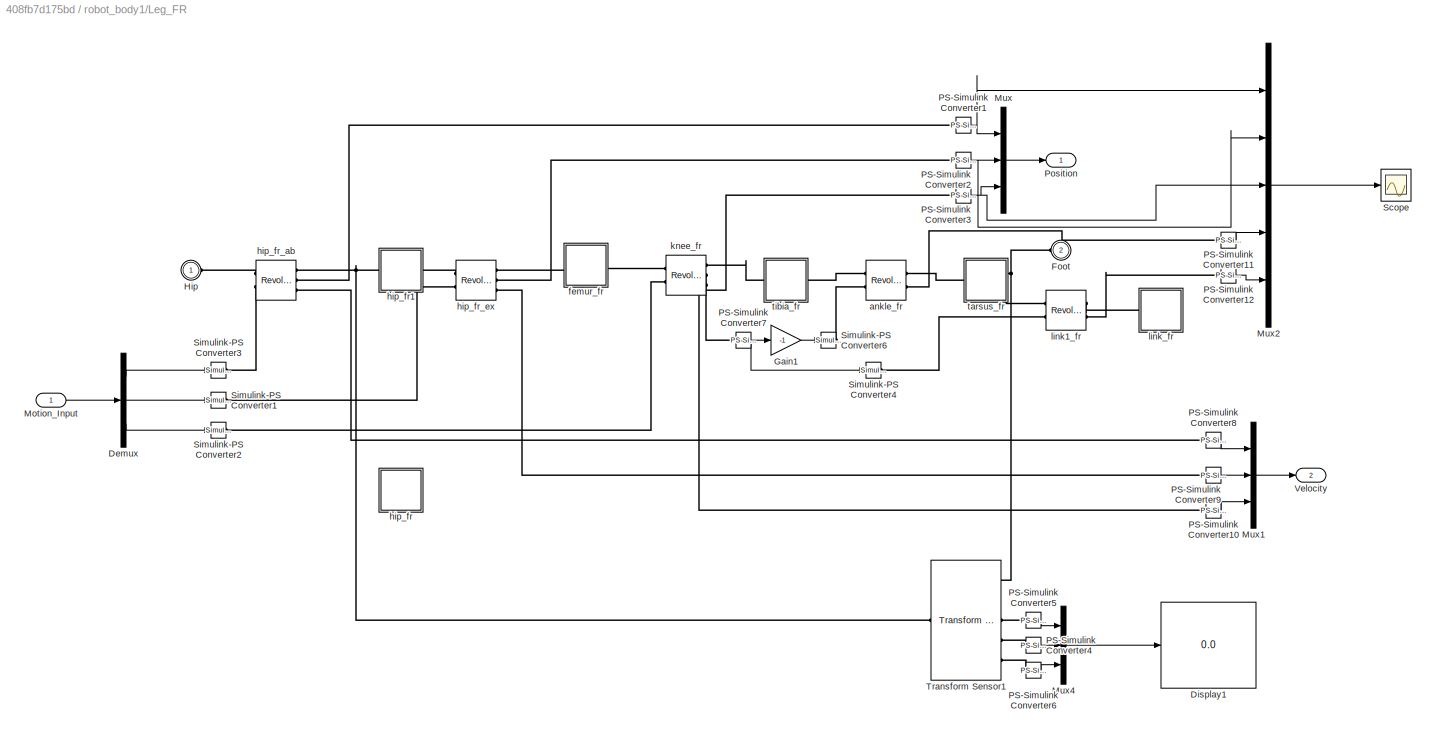
BLOCK [SubSystem] robot_body1/Leg_FR
  Ports = [1, 2, 0, 0, 0, 2]
  RequestExecContextInheritance = off
BLOCK [Demux] robot_body1/Leg_FR/Demux
  DisplayOption = bar
  Outputs = 3
  Ports = [1, 3]
BLOCK [Display] robot_body1/Leg_FR/Display1
  Decimation = 1
  Ports = [1]
BLOCK [PMIOPort] robot_body1/Leg_FR/Foot
  Port = 2
  Side = Left
BLOCK [Gain] robot_body1/Leg_FR/Gain1
  Gain = -1
  OutDataTypeStr = Inherit: Inherit via internal rule
  ParamDataTypeStr = Inherit: Inherit via internal rule
  SaturateOnIntegerOverflow = off
BLOCK [PMIOPort] robot_body1/Leg_FR/Hip
  Side = Left
BLOCK [Inport] robot_body1/Leg_FR/Motion_Input
  IconDisplay = Port number
BLOCK [Mux] robot_body1/Leg_FR/Mux
  DisplayOption = bar
  Inputs = 3
  Ports = [3, 1]
BLOCK [Mux] robot_body1/Leg_FR/Mux1
  DisplayOption = bar
  Inputs = 3
  Ports = [3, 1]
BLOCK [Mux] robot_body1/Leg_FR/Mux2
  DisplayOption = bar
  Inputs = 5
  Ports = [5, 1]
BLOCK [Mux] robot_body1/Leg_FR/Mux4
  DisplayOption = bar
  Inputs = 3
  Ports = [3, 1]
BLOCK [Reference] robot_body1/Leg_FR/PS-Simulink Converter1  REF=nesl_utility/PS-Simulink
Converter
  Ports = [0, 1, 0, 0, 0, 1]
  SourceBlock = nesl_utility/PS-Simulink\nConverter
  SourceProductBaseCode = SS
  SourceProductName = Simscape
  SourceType = PS-Simulink\nConverter
BLOCK [Reference] robot_body1/Leg_FR/PS-Simulink Converter10  REF=nesl_utility/PS-Simulink
Converter
  Ports = [0, 1, 0, 0, 0, 1]
  SourceBlock = nesl_utility/PS-Simulink\nConverter
  SourceProductBaseCode = SS
  SourceProductName = Simscape
  SourceType = PS-Simulink\nConverter
BLOCK [Reference] robot_body1/Leg_FR/PS-Simulink Converter11  REF=nesl_utility/PS-Simulink
Converter
  Ports = [0, 1, 0, 0, 0, 1]
  SourceBlock = nesl_utility/PS-Simulink\nConverter
  SourceProductBaseCode = SS
  SourceProductName = Simscape
  SourceType = PS-Simulink\nConverter
BLOCK [Reference] robot_body1/Leg_FR/PS-Simulink Converter12  REF=nesl_utility/PS-Simulink
Converter
  Ports = [0, 1, 0, 0, 0, 1]
  SourceBlock = nesl_utility/PS-Simulink\nConverter
  SourceProductBaseCode = SS
  SourceProductName = Simscape
  SourceType = PS-Simulink\nConverter
BLOCK [Reference] robot_body1/Leg_FR/PS-Simulink Converter2  REF=nesl_utility/PS-Simulink
Converter
  Ports = [0, 1, 0, 0, 0, 1]
  SourceBlock = nesl_utility/PS-Simulink\nConverter
  SourceProductBaseCode = SS
  SourceProductName = Simscape
  SourceType = PS-Simulink\nConverter
BLOCK [Reference] robot_body1/Leg_FR/PS-Simulink Converter3  REF=nesl_utility/PS-Simulink
Converter
  Ports = [0, 1, 0, 0, 0, 1]
  SourceBlock = nesl_utility/PS-Simulink\nConverter
  SourceProductBaseCode = SS
  SourceProductName = Simscape
  SourceType = PS-Simulink\nConverter
BLOCK [Reference] robot_body1/Leg_FR/PS-Simulink Converter4  REF=nesl_utility/PS-Simulink
Converter
  Ports = [0, 1, 0, 0, 0, 1]
  SourceBlock = nesl_utility/PS-Simulink\nConverter
  SourceProductBaseCode = SS
  SourceProductName = Simscape
  SourceType = PS-Simulink\nConverter
BLOCK [Reference] robot_body1/Leg_FR/PS-Simulink Converter5  REF=nesl_utility/PS-Simulink
Converter
  Ports = [0, 1, 0, 0, 0, 1]
  SourceBlock = nesl_utility/PS-Simulink\nConverter
  SourceProductBaseCode = SS
  SourceProductName = Simscape
  SourceType = PS-Simulink\nConverter
BLOCK [Reference] robot_body1/Leg_FR/PS-Simulink Converter6  REF=nesl_utility/PS-Simulink
Converter
  Ports = [0, 1, 0, 0, 0, 1]
  SourceBlock = nesl_utility/PS-Simulink\nConverter
  SourceProductBaseCode = SS
  SourceProductName = Simscape
  SourceType = PS-Simulink\nConverter
BLOCK [Reference] robot_body1/Leg_FR/PS-Simulink Converter7  REF=nesl_utility/PS-Simulink
Converter
  Ports = [0, 1, 0, 0, 0, 1]
  SourceBlock = nesl_utility/PS-Simulink\nConverter
  SourceProductBaseCode = SS
  SourceProductName = Simscape
  SourceType = PS-Simulink\nConverter
BLOCK [Reference] robot_body1/Leg_FR/PS-Simulink Converter8  REF=nesl_utility/PS-Simulink
Converter
  Ports = [0, 1, 0, 0, 0, 1]
  SourceBlock = nesl_utility/PS-Simulink\nConverter
  SourceProductBaseCode = SS
  SourceProductName = Simscape
  SourceType = PS-Simulink\nConverter
BLOCK [Reference] robot_body1/Leg_FR/PS-Simulink Converter9  REF=nesl_utility/PS-Simulink
Converter
  Ports = [0, 1, 0, 0, 0, 1]
  SourceBlock = nesl_utility/PS-Simulink\nConverter
  SourceProductBaseCode = SS
  SourceProductName = Simscape
  SourceType = PS-Simulink\nConverter
BLOCK [Outport] robot_body1/Leg_FR/Position
  IconDisplay = Port number
BLOCK [Scope] robot_body1/Leg_FR/Scope
  Floating = off
  NumInputPorts = 1
  Ports = [1]
  ScopeSpecificationString = Simulink.scopes.TimeScopeBlockCfg('CurrentConfiguration', extmgr.ConfigurationSet(extmgr.Configuration('Core','General UI',true),extmgr.Configuration('Core','Source UI',true),extmgr.Configuration('Sources','WiredSimulink',true,'DataLoggingVariableName','ScopeData1'),extmgr.Configuration('Visuals','Time Domain',true,'SerializedDisplays',{struct('MinYLimReal','-22.84786','MaxYLimReal','5.51071','YLa...<+1515ch>
BLOCK [Reference] robot_body1/Leg_FR/Simulink-PS Converter1  REF=nesl_utility/Simulink-PS
Converter
  Ports = [1, 0, 0, 0, 0, 0, 1]
  SourceBlock = nesl_utility/Simulink-PS\nConverter
  SourceProductBaseCode = SS
  SourceProductName = Simscape
  SourceType = Simulink-PS\nConverter
BLOCK [Reference] robot_body1/Leg_FR/Simulink-PS Converter2  REF=nesl_utility/Simulink-PS
Converter
  Ports = [1, 0, 0, 0, 0, 0, 1]
  SourceBlock = nesl_utility/Simulink-PS\nConverter
  SourceProductBaseCode = SS
  SourceProductName = Simscape
  SourceType = Simulink-PS\nConverter
BLOCK [Reference] robot_body1/Leg_FR/Simulink-PS Converter3  REF=nesl_utility/Simulink-PS
Converter
  Ports = [1, 0, 0, 0, 0, 0, 1]
  SourceBlock = nesl_utility/Simulink-PS\nConverter
  SourceProductBaseCode = SS
  SourceProductName = Simscape
  SourceType = Simulink-PS\nConverter
BLOCK [Reference] robot_body1/Leg_FR/Simulink-PS Converter4  REF=nesl_utility/Simulink-PS
Converter
  Ports = [1, 0, 0, 0, 0, 0, 1]
  SourceBlock = nesl_utility/Simulink-PS\nConverter
  SourceProductBaseCode = SS
  SourceProductName = Simscape
  SourceType = Simulink-PS\nConverter
BLOCK [Reference] robot_body1/Leg_FR/Simulink-PS Converter6  REF=nesl_utility/Simulink-PS
Converter
  Ports = [1, 0, 0, 0, 0, 0, 1]
  SourceBlock = nesl_utility/Simulink-PS\nConverter
  SourceProductBaseCode = SS
  SourceProductName = Simscape
  SourceType = Simulink-PS\nConverter
BLOCK [Reference] robot_body1/Leg_FR/Transform Sensor1  REF=sm_lib/Frames and
Transforms/Transform
Sensor
  Ports = [0, 0, 0, 0, 0, 1, 5]
  SourceBlock = sm_lib/Frames and\nTransforms/Transform\nSensor
  SourceProductBaseCode = MS
  SourceProductName = Simscape Multibody
  SourceType = Transform\nSensor
BLOCK [Outport] robot_body1/Leg_FR/Velocity
  IconDisplay = Port number
  Port = 2
BLOCK [Reference] robot_body1/Leg_FR/ankle_fr  REF=sm_lib/Joints/Revolute Joint
  Ports = [0, 0, 0, 0, 0, 2, 2]
  SourceBlock = sm_lib/Joints/Revolute Joint
  SourceProductBaseCode = MS
  SourceProductName = Simscape Multibody
  SourceType = Revolute Joint
BLOCK [SubSystem] robot_body1/Leg_FR/femur_fr
  Ports = [0, 0, 0, 0, 0, 1, 1]
  RequestExecContextInheritance = off
BLOCK [PMIOPort] robot_body1/Leg_FR/femur_fr/F
  Side = Left
BLOCK [PMIOPort] robot_body1/Leg_FR/femur_fr/F1
  Port = 2
  Side = Right
BLOCK [Reference] robot_body1/Leg_FR/femur_fr/Inertia  REF=sm_lib/Body Elements/Inertia
  Ports = [0, 0, 0, 0, 0, 0, 1]
  SourceBlock = sm_lib/Body Elements/Inertia
  SourceProductBaseCode = MS
  SourceProductName = Simscape Multibody
  SourceType = Inertia
BLOCK [Reference] robot_body1/Leg_FR/femur_fr/InertiaOriginTransform  REF=sm_lib/Frames and
Transforms/Rigid
Transform
  Ports = [0, 0, 0, 0, 0, 1, 1]
  SourceBlock = sm_lib/Frames and\nTransforms/Rigid\nTransform
  SourceProductBaseCode = MS
  SourceProductName = Simscape Multibody
  SourceType = Rigid\nTransform
BLOCK [Reference] robot_body1/Leg_FR/femur_fr/ReferenceFrame  REF=sm_lib/Frames and
Transforms/Reference
Frame
  Ports = [0, 0, 0, 0, 0, 0, 1]
  SourceBlock = sm_lib/Frames and\nTransforms/Reference\nFrame
  SourceProductBaseCode = MS
  SourceProductName = Simscape Multibody
  SourceType = Reference\nFrame
BLOCK [Reference] robot_body1/Leg_FR/femur_fr/Visual  REF=sm_lib/Body Elements/File Solid
  Ports = [0, 0, 0, 0, 0, 0, 1]
  SourceBlock = sm_lib/Body Elements/File Solid
  SourceProductBaseCode = MS
  SourceProductName = Simscape Multibody
  SourceType = File Solid
BLOCK [Reference] robot_body1/Leg_FR/femur_fr/VisualOriginTransform  REF=sm_lib/Frames and
Transforms/Rigid
Transform
  Ports = [0, 0, 0, 0, 0, 1, 1]
  SourceBlock = sm_lib/Frames and\nTransforms/Rigid\nTransform
  SourceProductBaseCode = MS
  SourceProductName = Simscape Multibody
  SourceType = Rigid\nTransform
BLOCK [Reference] robot_body1/Leg_FR/femur_fr/hip_fr_ex_AxisInvTransform  REF=sm_lib/Frames and
Transforms/Rigid
Transform
  Ports = [0, 0, 0, 0, 0, 1, 1]
  SourceBlock = sm_lib/Frames and\nTransforms/Rigid\nTransform
  SourceProductBaseCode = MS
  SourceProductName = Simscape Multibody
  SourceType = Rigid\nTransform
BLOCK [Reference] robot_body1/Leg_FR/femur_fr/knee_fr_AxisTransform  REF=sm_lib/Frames and
Transforms/Rigid
Transform
  Ports = [0, 0, 0, 0, 0, 1, 1]
  SourceBlock = sm_lib/Frames and\nTransforms/Rigid\nTransform
  SourceProductBaseCode = MS
  SourceProductName = Simscape Multibody
  SourceType = Rigid\nTransform
BLOCK [Reference] robot_body1/Leg_FR/femur_fr/knee_fr_OriginTransform  REF=sm_lib/Frames and
Transforms/Rigid
Transform
  Ports = [0, 0, 0, 0, 0, 1, 1]
  SourceBlock = sm_lib/Frames and\nTransforms/Rigid\nTransform
  SourceProductBaseCode = MS
  SourceProductName = Simscape Multibody
  SourceType = Rigid\nTransform
BLOCK [SubSystem] robot_body1/Leg_FR/hip_fr
  Commented = on
  Ports = [0, 0, 0, 0, 0, 1, 1]
  RequestExecContextInheritance = off
BLOCK [PMIOPort] robot_body1/Leg_FR/hip_fr/F
  Side = Left
BLOCK [PMIOPort] robot_body1/Leg_FR/hip_fr/F1
  Port = 2
  Side = Right
BLOCK [Reference] robot_body1/Leg_FR/hip_fr/Inertia  REF=sm_lib/Body Elements/Inertia
  Ports = [0, 0, 0, 0, 0, 0, 1]
  SourceBlock = sm_lib/Body Elements/Inertia
  SourceProductBaseCode = MS
  SourceProductName = Simscape Multibody
  SourceType = Inertia
BLOCK [Reference] robot_body1/Leg_FR/hip_fr/InertiaOriginTransform  REF=sm_lib/Frames and
Transforms/Rigid
Transform
  Ports = [0, 0, 0, 0, 0, 1, 1]
  SourceBlock = sm_lib/Frames and\nTransforms/Rigid\nTransform
  SourceProductBaseCode = MS
  SourceProductName = Simscape Multibody
  SourceType = Rigid\nTransform
BLOCK [Reference] robot_body1/Leg_FR/hip_fr/ReferenceFrame  REF=sm_lib/Frames and
Transforms/Reference
Frame
  Ports = [0, 0, 0, 0, 0, 0, 1]
  SourceBlock = sm_lib/Frames and\nTransforms/Reference\nFrame
  SourceProductBaseCode = MS
  SourceProductName = Simscape Multibody
  SourceType = Reference\nFrame
BLOCK [Reference] robot_body1/Leg_FR/hip_fr/Visual  REF=sm_lib/Body Elements/File Solid
  Ports = [0, 0, 0, 0, 0, 0, 1]
  SourceBlock = sm_lib/Body Elements/File Solid
  SourceProductBaseCode = MS
  SourceProductName = Simscape Multibody
  SourceType = File Solid
BLOCK [Reference] robot_body1/Leg_FR/hip_fr/VisualOriginTransform  REF=sm_lib/Frames and
Transforms/Rigid
Transform
  Ports = [0, 0, 0, 0, 0, 1, 1]
  SourceBlock = sm_lib/Frames and\nTransforms/Rigid\nTransform
  SourceProductBaseCode = MS
  SourceProductName = Simscape Multibody
  SourceType = Rigid\nTransform
BLOCK [Reference] robot_body1/Leg_FR/hip_fr/hip_fr_ab_AxisInvTransform  REF=sm_lib/Frames and
Transforms/Rigid
Transform
  Ports = [0, 0, 0, 0, 0, 1, 1]
  SourceBlock = sm_lib/Frames and\nTransforms/Rigid\nTransform
  SourceProductBaseCode = MS
  SourceProductName = Simscape Multibody
  SourceType = Rigid\nTransform
BLOCK [Reference] robot_body1/Leg_FR/hip_fr/hip_fr_ex_AxisTransform  REF=sm_lib/Frames and
Transforms/Rigid
Transform
  Ports = [0, 0, 0, 0, 0, 1, 1]
  SourceBlock = sm_lib/Frames and\nTransforms/Rigid\nTransform
  SourceProductBaseCode = MS
  SourceProductName = Simscape Multibody
  SourceType = Rigid\nTransform
BLOCK [Reference] robot_body1/Leg_FR/hip_fr/hip_fr_ex_OriginTransform  REF=sm_lib/Frames and
Transforms/Rigid
Transform
  Ports = [0, 0, 0, 0, 0, 1, 1]
  SourceBlock = sm_lib/Frames and\nTransforms/Rigid\nTransform
  SourceProductBaseCode = MS
  SourceProductName = Simscape Multibody
  SourceType = Rigid\nTransform
BLOCK [SubSystem] robot_body1/Leg_FR/hip_fr1
  Ports = [0, 0, 0, 0, 0, 1, 1]
  RequestExecContextInheritance = off
BLOCK [PMIOPort] robot_body1/Leg_FR/hip_fr1/F
  Side = Left
BLOCK [PMIOPort] robot_body1/Leg_FR/hip_fr1/F1
  Port = 2
  Side = Right
BLOCK [Reference] robot_body1/Leg_FR/hip_fr1/Inertia  REF=sm_lib/Body Elements/Inertia
  Ports = [0, 0, 0, 0, 0, 0, 1]
  SourceBlock = sm_lib/Body Elements/Inertia
  SourceProductBaseCode = MS
  SourceProductName = Simscape Multibody
  SourceType = Inertia
BLOCK [Reference] robot_body1/Leg_FR/hip_fr1/InertiaOriginTransform  REF=sm_lib/Frames and
Transforms/Rigid
Transform
  Ports = [0, 0, 0, 0, 0, 1, 1]
  SourceBlock = sm_lib/Frames and\nTransforms/Rigid\nTransform
  SourceProductBaseCode = MS
  SourceProductName = Simscape Multibody
  SourceType = Rigid\nTransform
BLOCK [Reference] robot_body1/Leg_FR/hip_fr1/ReferenceFrame  REF=sm_lib/Frames and
Transforms/Reference
Frame
  Ports = [0, 0, 0, 0, 0, 0, 1]
  SourceBlock = sm_lib/Frames and\nTransforms/Reference\nFrame
  SourceProductBaseCode = MS
  SourceProductName = Simscape Multibody
  SourceType = Reference\nFrame
BLOCK [Reference] robot_body1/Leg_FR/hip_fr1/Visual  REF=sm_lib/Body Elements/File Solid
  Ports = [0, 0, 0, 0, 0, 0, 1]
  SourceBlock = sm_lib/Body Elements/File Solid
  SourceProductBaseCode = MS
  SourceProductName = Simscape Multibody
  SourceType = File Solid
BLOCK [Reference] robot_body1/Leg_FR/hip_fr1/VisualOriginTransform  REF=sm_lib/Frames and
Transforms/Rigid
Transform
  Ports = [0, 0, 0, 0, 0, 1, 1]
  SourceBlock = sm_lib/Frames and\nTransforms/Rigid\nTransform
  SourceProductBaseCode = MS
  SourceProductName = Simscape Multibody
  SourceType = Rigid\nTransform
BLOCK [Reference] robot_body1/Leg_FR/hip_fr1/hip_fr_ab_AxisInvTransform  REF=sm_lib/Frames and
Transforms/Rigid
Transform
  Ports = [0, 0, 0, 0, 0, 1, 1]
  SourceBlock = sm_lib/Frames and\nTransforms/Rigid\nTransform
  SourceProductBaseCode = MS
  SourceProductName = Simscape Multibody
  SourceType = Rigid\nTransform
BLOCK [Reference] robot_body1/Leg_FR/hip_fr1/hip_fr_ex_AxisTransform  REF=sm_lib/Frames and
Transforms/Rigid
Transform
  Ports = [0, 0, 0, 0, 0, 1, 1]
  SourceBlock = sm_lib/Frames and\nTransforms/Rigid\nTransform
  SourceProductBaseCode = MS
  SourceProductName = Simscape Multibody
  SourceType = Rigid\nTransform
BLOCK [Reference] robot_body1/Leg_FR/hip_fr1/hip_fr_ex_OriginTransform  REF=sm_lib/Frames and
Transforms/Rigid
Transform
  Ports = [0, 0, 0, 0, 0, 1, 1]
  SourceBlock = sm_lib/Frames and\nTransforms/Rigid\nTransform
  SourceProductBaseCode = MS
  SourceProductName = Simscape Multibody
  SourceType = Rigid\nTransform
BLOCK [Reference] robot_body1/Leg_FR/hip_fr_ab  REF=sm_lib/Joints/Revolute Joint
  Ports = [0, 0, 0, 0, 0, 2, 3]
  SourceBlock = sm_lib/Joints/Revolute Joint
  SourceProductBaseCode = MS
  SourceProductName = Simscape Multibody
  SourceType = Revolute Joint
BLOCK [Reference] robot_body1/Leg_FR/hip_fr_ex  REF=sm_lib/Joints/Revolute Joint
  Ports = [0, 0, 0, 0, 0, 2, 3]
  SourceBlock = sm_lib/Joints/Revolute Joint
  SourceProductBaseCode = MS
  SourceProductName = Simscape Multibody
  SourceType = Revolute Joint
BLOCK [Reference] robot_body1/Leg_FR/knee_fr  REF=sm_lib/Joints/Revolute Joint
  Ports = [0, 0, 0, 0, 0, 2, 3]
  SourceBlock = sm_lib/Joints/Revolute Joint
  SourceProductBaseCode = MS
  SourceProductName = Simscape Multibody
  SourceType = Revolute Joint
BLOCK [Reference] robot_body1/Leg_FR/link1_fr  REF=sm_lib/Joints/Revolute Joint
  Ports = [0, 0, 0, 0, 0, 2, 2]
  SourceBlock = sm_lib/Joints/Revolute Joint
  SourceProductBaseCode = MS
  SourceProductName = Simscape Multibody
  SourceType = Revolute Joint
BLOCK [SubSystem] robot_body1/Leg_FR/link_fr
  Ports = [0, 0, 0, 0, 0, 1]
  RequestExecContextInheritance = off
BLOCK [PMIOPort] robot_body1/Leg_FR/link_fr/F
  Side = Left
BLOCK [Reference] robot_body1/Leg_FR/link_fr/Inertia1  REF=sm_lib/Body Elements/Inertia
  Ports = [0, 0, 0, 0, 0, 0, 1]
  SourceBlock = sm_lib/Body Elements/Inertia
  SourceProductBaseCode = MS
  SourceProductName = Simscape Multibody
  SourceType = Inertia
BLOCK [Reference] robot_body1/Leg_FR/link_fr/InertiaOriginTransform  REF=sm_lib/Frames and
Transforms/Rigid
Transform
  Ports = [0, 0, 0, 0, 0, 1, 1]
  SourceBlock = sm_lib/Frames and\nTransforms/Rigid\nTransform
  SourceProductBaseCode = MS
  SourceProductName = Simscape Multibody
  SourceType = Rigid\nTransform
BLOCK [Reference] robot_body1/Leg_FR/link_fr/ReferenceFrame  REF=sm_lib/Frames and
Transforms/Reference
Frame
  Ports = [0, 0, 0, 0, 0, 0, 1]
  SourceBlock = sm_lib/Frames and\nTransforms/Reference\nFrame
  SourceProductBaseCode = MS
  SourceProductName = Simscape Multibody
  SourceType = Reference\nFrame
BLOCK [Reference] robot_body1/Leg_FR/link_fr/Visual  REF=sm_lib/Body Elements/File Solid
  Ports = [0, 0, 0, 0, 0, 0, 1]
  SourceBlock = sm_lib/Body Elements/File Solid
  SourceProductBaseCode = MS
  SourceProductName = Simscape Multibody
  SourceType = File Solid
BLOCK [Reference] robot_body1/Leg_FR/link_fr/VisualOriginTransform  REF=sm_lib/Frames and
Transforms/Rigid
Transform
  Ports = [0, 0, 0, 0, 0, 1, 1]
  SourceBlock = sm_lib/Frames and\nTransforms/Rigid\nTransform
  SourceProductBaseCode = MS
  SourceProductName = Simscape Multibody
  SourceType = Rigid\nTransform
BLOCK [Reference] robot_body1/Leg_FR/link_fr/link1_fr_AxisInvTransform  REF=sm_lib/Frames and
Transforms/Rigid
Transform
  Ports = [0, 0, 0, 0, 0, 1, 1]
  SourceBlock = sm_lib/Frames and\nTransforms/Rigid\nTransform
  SourceProductBaseCode = MS
  SourceProductName = Simscape Multibody
  SourceType = Rigid\nTransform
BLOCK [SubSystem] robot_body1/Leg_FR/tarsus_fr
  Ports = [0, 0, 0, 0, 0, 1, 2]
  RequestExecContextInheritance = off
BLOCK [PMIOPort] robot_body1/Leg_FR/tarsus_fr/F
  Side = Left
BLOCK [PMIOPort] robot_body1/Leg_FR/tarsus_fr/F2
  Port = 2
  Side = Right
BLOCK [Reference] robot_body1/Leg_FR/tarsus_fr/Inertia1  REF=sm_lib/Body Elements/Inertia
  Ports = [0, 0, 0, 0, 0, 0, 1]
  SourceBlock = sm_lib/Body Elements/Inertia
  SourceProductBaseCode = MS
  SourceProductName = Simscape Multibody
  SourceType = Inertia
BLOCK [Reference] robot_body1/Leg_FR/tarsus_fr/InertiaOriginTransform  REF=sm_lib/Frames and
Transforms/Rigid
Transform
  Ports = [0, 0, 0, 0, 0, 1, 1]
  SourceBlock = sm_lib/Frames and\nTransforms/Rigid\nTransform
  SourceProductBaseCode = MS
  SourceProductName = Simscape Multibody
  SourceType = Rigid\nTransform
BLOCK [Reference] robot_body1/Leg_FR/tarsus_fr/ReferenceFrame  REF=sm_lib/Frames and
Transforms/Reference
Frame
  Ports = [0, 0, 0, 0, 0, 0, 1]
  SourceBlock = sm_lib/Frames and\nTransforms/Reference\nFrame
  SourceProductBaseCode = MS
  SourceProductName = Simscape Multibody
  SourceType = Reference\nFrame
BLOCK [Reference] robot_body1/Leg_FR/tarsus_fr/Visual  REF=sm_lib/Body Elements/File Solid
  Ports = [0, 0, 0, 0, 0, 0, 1]
  SourceBlock = sm_lib/Body Elements/File Solid
  SourceProductBaseCode = MS
  SourceProductName = Simscape Multibody
  SourceType = File Solid
BLOCK [Reference] robot_body1/Leg_FR/tarsus_fr/VisualOriginTransform  REF=sm_lib/Frames and
Transforms/Rigid
Transform
  Ports = [0, 0, 0, 0, 0, 1, 1]
  SourceBlock = sm_lib/Frames and\nTransforms/Rigid\nTransform
  SourceProductBaseCode = MS
  SourceProductName = Simscape Multibody
  SourceType = Rigid\nTransform
BLOCK [Reference] robot_body1/Leg_FR/tarsus_fr/ankle_fr_AxisInvTransform  REF=sm_lib/Frames and
Transforms/Rigid
Transform
  Ports = [0, 0, 0, 0, 0, 1, 1]
  SourceBlock = sm_lib/Frames and\nTransforms/Rigid\nTransform
  SourceProductBaseCode = MS
  SourceProductName = Simscape Multibody
  SourceType = Rigid\nTransform
BLOCK [Reference] robot_body1/Leg_FR/tarsus_fr/foot_contact  REF=sm_lib/Frames and
Transforms/Rigid
Transform
  Ports = [0, 0, 0, 0, 0, 1, 1]
  SourceBlock = sm_lib/Frames and\nTransforms/Rigid\nTransform
  SourceProductBaseCode = MS
  SourceProductName = Simscape Multibody
  SourceType = Rigid\nTransform
BLOCK [PMIOPort] robot_body1/Leg_FR/tarsus_fr/link
  Port = 3
  Side = Right
BLOCK [Reference] robot_body1/Leg_FR/tarsus_fr/link1_fr_AxisTransform  REF=sm_lib/Frames and
Transforms/Rigid
Transform
  Ports = [0, 0, 0, 0, 0, 1, 1]
  SourceBlock = sm_lib/Frames and\nTransforms/Rigid\nTransform
  SourceProductBaseCode = MS
  SourceProductName = Simscape Multibody
  SourceType = Rigid\nTransform
BLOCK [Reference] robot_body1/Leg_FR/tarsus_fr/link1_fr_OriginTransform  REF=sm_lib/Frames and
Transforms/Rigid
Transform
  Ports = [0, 0, 0, 0, 0, 1, 1]
  SourceBlock = sm_lib/Frames and\nTransforms/Rigid\nTransform
  SourceProductBaseCode = MS
  SourceProductName = Simscape Multibody
  SourceType = Rigid\nTransform
BLOCK [SubSystem] robot_body1/Leg_FR/tibia_fr
  Ports = [0, 0, 0, 0, 0, 1, 1]
  RequestExecContextInheritance = off
BLOCK [PMIOPort] robot_body1/Leg_FR/tibia_fr/F
  Side = Left
BLOCK [PMIOPort] robot_body1/Leg_FR/tibia_fr/F1
  Port = 2
  Side = Right
BLOCK [Reference] robot_body1/Leg_FR/tibia_fr/Inertia  REF=sm_lib/Body Elements/Inertia
  Ports = [0, 0, 0, 0, 0, 0, 1]
  SourceBlock = sm_lib/Body Elements/Inertia
  SourceProductBaseCode = MS
  SourceProductName = Simscape Multibody
  SourceType = Inertia
BLOCK [Reference] robot_body1/Leg_FR/tibia_fr/InertiaOriginTransform  REF=sm_lib/Frames and
Transforms/Rigid
Transform
  Ports = [0, 0, 0, 0, 0, 1, 1]
  SourceBlock = sm_lib/Frames and\nTransforms/Rigid\nTransform
  SourceProductBaseCode = MS
  SourceProductName = Simscape Multibody
  SourceType = Rigid\nTransform
BLOCK [Reference] robot_body1/Leg_FR/tibia_fr/ReferenceFrame  REF=sm_lib/Frames and
Transforms/Reference
Frame
  Ports = [0, 0, 0, 0, 0, 0, 1]
  SourceBlock = sm_lib/Frames and\nTransforms/Reference\nFrame
  SourceProductBaseCode = MS
  SourceProductName = Simscape Multibody
  SourceType = Reference\nFrame
BLOCK [Reference] robot_body1/Leg_FR/tibia_fr/Visual  REF=sm_lib/Body Elements/File Solid
  Ports = [0, 0, 0, 0, 0, 0, 1]
  SourceBlock = sm_lib/Body Elements/File Solid
  SourceProductBaseCode = MS
  SourceProductName = Simscape Multibody
  SourceType = File Solid
BLOCK [Reference] robot_body1/Leg_FR/tibia_fr/VisualOriginTransform  REF=sm_lib/Frames and
Transforms/Rigid
Transform
  Ports = [0, 0, 0, 0, 0, 1, 1]
  SourceBlock = sm_lib/Frames and\nTransforms/Rigid\nTransform
  SourceProductBaseCode = MS
  SourceProductName = Simscape Multibody
  SourceType = Rigid\nTransform
BLOCK [Reference] robot_body1/Leg_FR/tibia_fr/ankle_fr_AxisTransform  REF=sm_lib/Frames and
Transforms/Rigid
Transform
  Ports = [0, 0, 0, 0, 0, 1, 1]
  SourceBlock = sm_lib/Frames and\nTransforms/Rigid\nTransform
  SourceProductBaseCode = MS
  SourceProductName = Simscape Multibody
  SourceType = Rigid\nTransform
BLOCK [Reference] robot_body1/Leg_FR/tibia_fr/ankle_fr_OriginTransform  REF=sm_lib/Frames and
Transforms/Rigid
Transform
  Ports = [0, 0, 0, 0, 0, 1, 1]
  SourceBlock = sm_lib/Frames and\nTransforms/Rigid\nTransform
  SourceProductBaseCode = MS
  SourceProductName = Simscape Multibody
  SourceType = Rigid\nTransform
BLOCK [Reference] robot_body1/Leg_FR/tibia_fr/knee_fr_AxisInvTransform  REF=sm_lib/Frames and
Transforms/Rigid
Transform
  Ports = [0, 0, 0, 0, 0, 1, 1]
  SourceBlock = sm_lib/Frames and\nTransforms/Rigid\nTransform
  SourceProductBaseCode = MS
  SourceProductName = Simscape Multibody
  SourceType = Rigid\nTransform
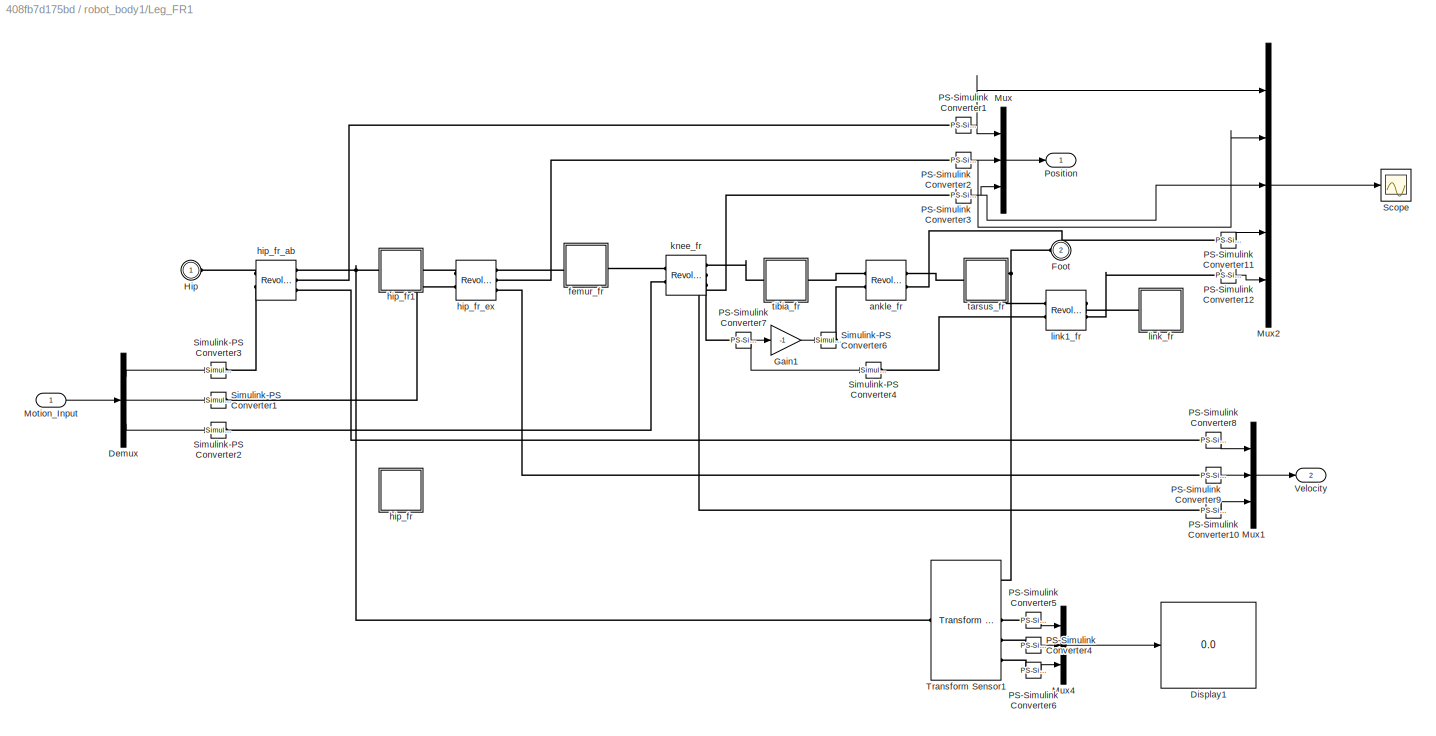
BLOCK [SubSystem] robot_body1/Leg_FR1
  Ports = [1, 2, 0, 0, 0, 2]
  RequestExecContextInheritance = off
BLOCK [Demux] robot_body1/Leg_FR1/Demux
  DisplayOption = bar
  Outputs = 3
  Ports = [1, 3]
BLOCK [Display] robot_body1/Leg_FR1/Display1
  Decimation = 1
  Ports = [1]
BLOCK [PMIOPort] robot_body1/Leg_FR1/Foot
  Port = 2
  Side = Left
BLOCK [Gain] robot_body1/Leg_FR1/Gain1
  Gain = -1
  OutDataTypeStr = Inherit: Inherit via internal rule
  ParamDataTypeStr = Inherit: Inherit via internal rule
  SaturateOnIntegerOverflow = off
BLOCK [PMIOPort] robot_body1/Leg_FR1/Hip
  Side = Left
BLOCK [Inport] robot_body1/Leg_FR1/Motion_Input
  IconDisplay = Port number
BLOCK [Mux] robot_body1/Leg_FR1/Mux
  DisplayOption = bar
  Inputs = 3
  Ports = [3, 1]
BLOCK [Mux] robot_body1/Leg_FR1/Mux1
  DisplayOption = bar
  Inputs = 3
  Ports = [3, 1]
BLOCK [Mux] robot_body1/Leg_FR1/Mux2
  DisplayOption = bar
  Inputs = 5
  Ports = [5, 1]
BLOCK [Mux] robot_body1/Leg_FR1/Mux4
  DisplayOption = bar
  Inputs = 3
  Ports = [3, 1]
BLOCK [Reference] robot_body1/Leg_FR1/PS-Simulink Converter1  REF=nesl_utility/PS-Simulink
Converter
  Ports = [0, 1, 0, 0, 0, 1]
  SourceBlock = nesl_utility/PS-Simulink\nConverter
  SourceProductBaseCode = SS
  SourceProductName = Simscape
  SourceType = PS-Simulink\nConverter
BLOCK [Reference] robot_body1/Leg_FR1/PS-Simulink Converter10  REF=nesl_utility/PS-Simulink
Converter
  Ports = [0, 1, 0, 0, 0, 1]
  SourceBlock = nesl_utility/PS-Simulink\nConverter
  SourceProductBaseCode = SS
  SourceProductName = Simscape
  SourceType = PS-Simulink\nConverter
BLOCK [Reference] robot_body1/Leg_FR1/PS-Simulink Converter11  REF=nesl_utility/PS-Simulink
Converter
  Ports = [0, 1, 0, 0, 0, 1]
  SourceBlock = nesl_utility/PS-Simulink\nConverter
  SourceProductBaseCode = SS
  SourceProductName = Simscape
  SourceType = PS-Simulink\nConverter
BLOCK [Reference] robot_body1/Leg_FR1/PS-Simulink Converter12  REF=nesl_utility/PS-Simulink
Converter
  Ports = [0, 1, 0, 0, 0, 1]
  SourceBlock = nesl_utility/PS-Simulink\nConverter
  SourceProductBaseCode = SS
  SourceProductName = Simscape
  SourceType = PS-Simulink\nConverter
BLOCK [Reference] robot_body1/Leg_FR1/PS-Simulink Converter2  REF=nesl_utility/PS-Simulink
Converter
  Ports = [0, 1, 0, 0, 0, 1]
  SourceBlock = nesl_utility/PS-Simulink\nConverter
  SourceProductBaseCode = SS
  SourceProductName = Simscape
  SourceType = PS-Simulink\nConverter
BLOCK [Reference] robot_body1/Leg_FR1/PS-Simulink Converter3  REF=nesl_utility/PS-Simulink
Converter
  Ports = [0, 1, 0, 0, 0, 1]
  SourceBlock = nesl_utility/PS-Simulink\nConverter
  SourceProductBaseCode = SS
  SourceProductName = Simscape
  SourceType = PS-Simulink\nConverter
BLOCK [Reference] robot_body1/Leg_FR1/PS-Simulink Converter4  REF=nesl_utility/PS-Simulink
Converter
  Ports = [0, 1, 0, 0, 0, 1]
  SourceBlock = nesl_utility/PS-Simulink\nConverter
  SourceProductBaseCode = SS
  SourceProductName = Simscape
  SourceType = PS-Simulink\nConverter
BLOCK [Reference] robot_body1/Leg_FR1/PS-Simulink Converter5  REF=nesl_utility/PS-Simulink
Converter
  Ports = [0, 1, 0, 0, 0, 1]
  SourceBlock = nesl_utility/PS-Simulink\nConverter
  SourceProductBaseCode = SS
  SourceProductName = Simscape
  SourceType = PS-Simulink\nConverter
BLOCK [Reference] robot_body1/Leg_FR1/PS-Simulink Converter6  REF=nesl_utility/PS-Simulink
Converter
  Ports = [0, 1, 0, 0, 0, 1]
  SourceBlock = nesl_utility/PS-Simulink\nConverter
  SourceProductBaseCode = SS
  SourceProductName = Simscape
  SourceType = PS-Simulink\nConverter
BLOCK [Reference] robot_body1/Leg_FR1/PS-Simulink Converter7  REF=nesl_utility/PS-Simulink
Converter
  Ports = [0, 1, 0, 0, 0, 1]
  SourceBlock = nesl_utility/PS-Simulink\nConverter
  SourceProductBaseCode = SS
  SourceProductName = Simscape
  SourceType = PS-Simulink\nConverter
BLOCK [Reference] robot_body1/Leg_FR1/PS-Simulink Converter8  REF=nesl_utility/PS-Simulink
Converter
  Ports = [0, 1, 0, 0, 0, 1]
  SourceBlock = nesl_utility/PS-Simulink\nConverter
  SourceProductBaseCode = SS
  SourceProductName = Simscape
  SourceType = PS-Simulink\nConverter
BLOCK [Reference] robot_body1/Leg_FR1/PS-Simulink Converter9  REF=nesl_utility/PS-Simulink
Converter
  Ports = [0, 1, 0, 0, 0, 1]
  SourceBlock = nesl_utility/PS-Simulink\nConverter
  SourceProductBaseCode = SS
  SourceProductName = Simscape
  SourceType = PS-Simulink\nConverter
BLOCK [Outport] robot_body1/Leg_FR1/Position
  IconDisplay = Port number
BLOCK [Scope] robot_body1/Leg_FR1/Scope
  Floating = off
  NumInputPorts = 1
  Ports = [1]
  ScopeSpecificationString = Simulink.scopes.TimeScopeBlockCfg('CurrentConfiguration', extmgr.ConfigurationSet(extmgr.Configuration('Core','General UI',true),extmgr.Configuration('Core','Source UI',true),extmgr.Configuration('Sources','WiredSimulink',true,'DataLoggingVariableName','ScopeData1'),extmgr.Configuration('Visuals','Time Domain',true,'SerializedDisplays',{struct('MinYLimReal','-22.84786','MaxYLimReal','5.51071','YLa...<+1515ch>
BLOCK [Reference] robot_body1/Leg_FR1/Simulink-PS Converter1  REF=nesl_utility/Simulink-PS
Converter
  Ports = [1, 0, 0, 0, 0, 0, 1]
  SourceBlock = nesl_utility/Simulink-PS\nConverter
  SourceProductBaseCode = SS
  SourceProductName = Simscape
  SourceType = Simulink-PS\nConverter
BLOCK [Reference] robot_body1/Leg_FR1/Simulink-PS Converter2  REF=nesl_utility/Simulink-PS
Converter
  Ports = [1, 0, 0, 0, 0, 0, 1]
  SourceBlock = nesl_utility/Simulink-PS\nConverter
  SourceProductBaseCode = SS
  SourceProductName = Simscape
  SourceType = Simulink-PS\nConverter
BLOCK [Reference] robot_body1/Leg_FR1/Simulink-PS Converter3  REF=nesl_utility/Simulink-PS
Converter
  Ports = [1, 0, 0, 0, 0, 0, 1]
  SourceBlock = nesl_utility/Simulink-PS\nConverter
  SourceProductBaseCode = SS
  SourceProductName = Simscape
  SourceType = Simulink-PS\nConverter
BLOCK [Reference] robot_body1/Leg_FR1/Simulink-PS Converter4  REF=nesl_utility/Simulink-PS
Converter
  Ports = [1, 0, 0, 0, 0, 0, 1]
  SourceBlock = nesl_utility/Simulink-PS\nConverter
  SourceProductBaseCode = SS
  SourceProductName = Simscape
  SourceType = Simulink-PS\nConverter
BLOCK [Reference] robot_body1/Leg_FR1/Simulink-PS Converter6  REF=nesl_utility/Simulink-PS
Converter
  Ports = [1, 0, 0, 0, 0, 0, 1]
  SourceBlock = nesl_utility/Simulink-PS\nConverter
  SourceProductBaseCode = SS
  SourceProductName = Simscape
  SourceType = Simulink-PS\nConverter
BLOCK [Reference] robot_body1/Leg_FR1/Transform Sensor1  REF=sm_lib/Frames and
Transforms/Transform
Sensor
  Ports = [0, 0, 0, 0, 0, 1, 5]
  SourceBlock = sm_lib/Frames and\nTransforms/Transform\nSensor
  SourceProductBaseCode = MS
  SourceProductName = Simscape Multibody
  SourceType = Transform\nSensor
BLOCK [Outport] robot_body1/Leg_FR1/Velocity
  IconDisplay = Port number
  Port = 2
BLOCK [Reference] robot_body1/Leg_FR1/ankle_fr  REF=sm_lib/Joints/Revolute Joint
  Ports = [0, 0, 0, 0, 0, 2, 2]
  SourceBlock = sm_lib/Joints/Revolute Joint
  SourceProductBaseCode = MS
  SourceProductName = Simscape Multibody
  SourceType = Revolute Joint
BLOCK [SubSystem] robot_body1/Leg_FR1/femur_fr
  Ports = [0, 0, 0, 0, 0, 1, 1]
  RequestExecContextInheritance = off
BLOCK [PMIOPort] robot_body1/Leg_FR1/femur_fr/F
  Side = Left
BLOCK [PMIOPort] robot_body1/Leg_FR1/femur_fr/F1
  Port = 2
  Side = Right
BLOCK [Reference] robot_body1/Leg_FR1/femur_fr/Inertia  REF=sm_lib/Body Elements/Inertia
  Ports = [0, 0, 0, 0, 0, 0, 1]
  SourceBlock = sm_lib/Body Elements/Inertia
  SourceProductBaseCode = MS
  SourceProductName = Simscape Multibody
  SourceType = Inertia
BLOCK [Reference] robot_body1/Leg_FR1/femur_fr/InertiaOriginTransform  REF=sm_lib/Frames and
Transforms/Rigid
Transform
  Ports = [0, 0, 0, 0, 0, 1, 1]
  SourceBlock = sm_lib/Frames and\nTransforms/Rigid\nTransform
  SourceProductBaseCode = MS
  SourceProductName = Simscape Multibody
  SourceType = Rigid\nTransform
BLOCK [Reference] robot_body1/Leg_FR1/femur_fr/ReferenceFrame  REF=sm_lib/Frames and
Transforms/Reference
Frame
  Ports = [0, 0, 0, 0, 0, 0, 1]
  SourceBlock = sm_lib/Frames and\nTransforms/Reference\nFrame
  SourceProductBaseCode = MS
  SourceProductName = Simscape Multibody
  SourceType = Reference\nFrame
BLOCK [Reference] robot_body1/Leg_FR1/femur_fr/Visual  REF=sm_lib/Body Elements/File Solid
  Ports = [0, 0, 0, 0, 0, 0, 1]
  SourceBlock = sm_lib/Body Elements/File Solid
  SourceProductBaseCode = MS
  SourceProductName = Simscape Multibody
  SourceType = File Solid
BLOCK [Reference] robot_body1/Leg_FR1/femur_fr/VisualOriginTransform  REF=sm_lib/Frames and
Transforms/Rigid
Transform
  Ports = [0, 0, 0, 0, 0, 1, 1]
  SourceBlock = sm_lib/Frames and\nTransforms/Rigid\nTransform
  SourceProductBaseCode = MS
  SourceProductName = Simscape Multibody
  SourceType = Rigid\nTransform
BLOCK [Reference] robot_body1/Leg_FR1/femur_fr/hip_fr_ex_AxisInvTransform  REF=sm_lib/Frames and
Transforms/Rigid
Transform
  Ports = [0, 0, 0, 0, 0, 1, 1]
  SourceBlock = sm_lib/Frames and\nTransforms/Rigid\nTransform
  SourceProductBaseCode = MS
  SourceProductName = Simscape Multibody
  SourceType = Rigid\nTransform
BLOCK [Reference] robot_body1/Leg_FR1/femur_fr/knee_fr_AxisTransform  REF=sm_lib/Frames and
Transforms/Rigid
Transform
  Ports = [0, 0, 0, 0, 0, 1, 1]
  SourceBlock = sm_lib/Frames and\nTransforms/Rigid\nTransform
  SourceProductBaseCode = MS
  SourceProductName = Simscape Multibody
  SourceType = Rigid\nTransform
BLOCK [Reference] robot_body1/Leg_FR1/femur_fr/knee_fr_OriginTransform  REF=sm_lib/Frames and
Transforms/Rigid
Transform
  Ports = [0, 0, 0, 0, 0, 1, 1]
  SourceBlock = sm_lib/Frames and\nTransforms/Rigid\nTransform
  SourceProductBaseCode = MS
  SourceProductName = Simscape Multibody
  SourceType = Rigid\nTransform
BLOCK [SubSystem] robot_body1/Leg_FR1/hip_fr
  Commented = on
  Ports = [0, 0, 0, 0, 0, 1, 1]
  RequestExecContextInheritance = off
BLOCK [PMIOPort] robot_body1/Leg_FR1/hip_fr/F
  Side = Left
BLOCK [PMIOPort] robot_body1/Leg_FR1/hip_fr/F1
  Port = 2
  Side = Right
BLOCK [Reference] robot_body1/Leg_FR1/hip_fr/Inertia  REF=sm_lib/Body Elements/Inertia
  Ports = [0, 0, 0, 0, 0, 0, 1]
  SourceBlock = sm_lib/Body Elements/Inertia
  SourceProductBaseCode = MS
  SourceProductName = Simscape Multibody
  SourceType = Inertia
BLOCK [Reference] robot_body1/Leg_FR1/hip_fr/InertiaOriginTransform  REF=sm_lib/Frames and
Transforms/Rigid
Transform
  Ports = [0, 0, 0, 0, 0, 1, 1]
  SourceBlock = sm_lib/Frames and\nTransforms/Rigid\nTransform
  SourceProductBaseCode = MS
  SourceProductName = Simscape Multibody
  SourceType = Rigid\nTransform
BLOCK [Reference] robot_body1/Leg_FR1/hip_fr/ReferenceFrame  REF=sm_lib/Frames and
Transforms/Reference
Frame
  Ports = [0, 0, 0, 0, 0, 0, 1]
  SourceBlock = sm_lib/Frames and\nTransforms/Reference\nFrame
  SourceProductBaseCode = MS
  SourceProductName = Simscape Multibody
  SourceType = Reference\nFrame
BLOCK [Reference] robot_body1/Leg_FR1/hip_fr/Visual  REF=sm_lib/Body Elements/File Solid
  Ports = [0, 0, 0, 0, 0, 0, 1]
  SourceBlock = sm_lib/Body Elements/File Solid
  SourceProductBaseCode = MS
  SourceProductName = Simscape Multibody
  SourceType = File Solid
BLOCK [Reference] robot_body1/Leg_FR1/hip_fr/VisualOriginTransform  REF=sm_lib/Frames and
Transforms/Rigid
Transform
  Ports = [0, 0, 0, 0, 0, 1, 1]
  SourceBlock = sm_lib/Frames and\nTransforms/Rigid\nTransform
  SourceProductBaseCode = MS
  SourceProductName = Simscape Multibody
  SourceType = Rigid\nTransform
BLOCK [Reference] robot_body1/Leg_FR1/hip_fr/hip_fr_ab_AxisInvTransform  REF=sm_lib/Frames and
Transforms/Rigid
Transform
  Ports = [0, 0, 0, 0, 0, 1, 1]
  SourceBlock = sm_lib/Frames and\nTransforms/Rigid\nTransform
  SourceProductBaseCode = MS
  SourceProductName = Simscape Multibody
  SourceType = Rigid\nTransform
BLOCK [Reference] robot_body1/Leg_FR1/hip_fr/hip_fr_ex_AxisTransform  REF=sm_lib/Frames and
Transforms/Rigid
Transform
  Ports = [0, 0, 0, 0, 0, 1, 1]
  SourceBlock = sm_lib/Frames and\nTransforms/Rigid\nTransform
  SourceProductBaseCode = MS
  SourceProductName = Simscape Multibody
  SourceType = Rigid\nTransform
BLOCK [Reference] robot_body1/Leg_FR1/hip_fr/hip_fr_ex_OriginTransform  REF=sm_lib/Frames and
Transforms/Rigid
Transform
  Ports = [0, 0, 0, 0, 0, 1, 1]
  SourceBlock = sm_lib/Frames and\nTransforms/Rigid\nTransform
  SourceProductBaseCode = MS
  SourceProductName = Simscape Multibody
  SourceType = Rigid\nTransform
BLOCK [SubSystem] robot_body1/Leg_FR1/hip_fr1
  Ports = [0, 0, 0, 0, 0, 1, 1]
  RequestExecContextInheritance = off
BLOCK [PMIOPort] robot_body1/Leg_FR1/hip_fr1/F
  Side = Left
BLOCK [PMIOPort] robot_body1/Leg_FR1/hip_fr1/F1
  Port = 2
  Side = Right
BLOCK [Reference] robot_body1/Leg_FR1/hip_fr1/Inertia  REF=sm_lib/Body Elements/Inertia
  Ports = [0, 0, 0, 0, 0, 0, 1]
  SourceBlock = sm_lib/Body Elements/Inertia
  SourceProductBaseCode = MS
  SourceProductName = Simscape Multibody
  SourceType = Inertia
BLOCK [Reference] robot_body1/Leg_FR1/hip_fr1/InertiaOriginTransform  REF=sm_lib/Frames and
Transforms/Rigid
Transform
  Ports = [0, 0, 0, 0, 0, 1, 1]
  SourceBlock = sm_lib/Frames and\nTransforms/Rigid\nTransform
  SourceProductBaseCode = MS
  SourceProductName = Simscape Multibody
  SourceType = Rigid\nTransform
BLOCK [Reference] robot_body1/Leg_FR1/hip_fr1/ReferenceFrame  REF=sm_lib/Frames and
Transforms/Reference
Frame
  Ports = [0, 0, 0, 0, 0, 0, 1]
  SourceBlock = sm_lib/Frames and\nTransforms/Reference\nFrame
  SourceProductBaseCode = MS
  SourceProductName = Simscape Multibody
  SourceType = Reference\nFrame
BLOCK [Reference] robot_body1/Leg_FR1/hip_fr1/Visual  REF=sm_lib/Body Elements/File Solid
  Ports = [0, 0, 0, 0, 0, 0, 1]
  SourceBlock = sm_lib/Body Elements/File Solid
  SourceProductBaseCode = MS
  SourceProductName = Simscape Multibody
  SourceType = File Solid
BLOCK [Reference] robot_body1/Leg_FR1/hip_fr1/VisualOriginTransform  REF=sm_lib/Frames and
Transforms/Rigid
Transform
  Ports = [0, 0, 0, 0, 0, 1, 1]
  SourceBlock = sm_lib/Frames and\nTransforms/Rigid\nTransform
  SourceProductBaseCode = MS
  SourceProductName = Simscape Multibody
  SourceType = Rigid\nTransform
BLOCK [Reference] robot_body1/Leg_FR1/hip_fr1/hip_fr_ab_AxisInvTransform  REF=sm_lib/Frames and
Transforms/Rigid
Transform
  Ports = [0, 0, 0, 0, 0, 1, 1]
  SourceBlock = sm_lib/Frames and\nTransforms/Rigid\nTransform
  SourceProductBaseCode = MS
  SourceProductName = Simscape Multibody
  SourceType = Rigid\nTransform
BLOCK [Reference] robot_body1/Leg_FR1/hip_fr1/hip_fr_ex_AxisTransform  REF=sm_lib/Frames and
Transforms/Rigid
Transform
  Ports = [0, 0, 0, 0, 0, 1, 1]
  SourceBlock = sm_lib/Frames and\nTransforms/Rigid\nTransform
  SourceProductBaseCode = MS
  SourceProductName = Simscape Multibody
  SourceType = Rigid\nTransform
BLOCK [Reference] robot_body1/Leg_FR1/hip_fr1/hip_fr_ex_OriginTransform  REF=sm_lib/Frames and
Transforms/Rigid
Transform
  Ports = [0, 0, 0, 0, 0, 1, 1]
  SourceBlock = sm_lib/Frames and\nTransforms/Rigid\nTransform
  SourceProductBaseCode = MS
  SourceProductName = Simscape Multibody
  SourceType = Rigid\nTransform
BLOCK [Reference] robot_body1/Leg_FR1/hip_fr_ab  REF=sm_lib/Joints/Revolute Joint
  Ports = [0, 0, 0, 0, 0, 2, 3]
  SourceBlock = sm_lib/Joints/Revolute Joint
  SourceProductBaseCode = MS
  SourceProductName = Simscape Multibody
  SourceType = Revolute Joint
BLOCK [Reference] robot_body1/Leg_FR1/hip_fr_ex  REF=sm_lib/Joints/Revolute Joint
  Ports = [0, 0, 0, 0, 0, 2, 3]
  SourceBlock = sm_lib/Joints/Revolute Joint
  SourceProductBaseCode = MS
  SourceProductName = Simscape Multibody
  SourceType = Revolute Joint
BLOCK [Reference] robot_body1/Leg_FR1/knee_fr  REF=sm_lib/Joints/Revolute Joint
  Ports = [0, 0, 0, 0, 0, 2, 3]
  SourceBlock = sm_lib/Joints/Revolute Joint
  SourceProductBaseCode = MS
  SourceProductName = Simscape Multibody
  SourceType = Revolute Joint
BLOCK [Reference] robot_body1/Leg_FR1/link1_fr  REF=sm_lib/Joints/Revolute Joint
  Ports = [0, 0, 0, 0, 0, 2, 2]
  SourceBlock = sm_lib/Joints/Revolute Joint
  SourceProductBaseCode = MS
  SourceProductName = Simscape Multibody
  SourceType = Revolute Joint
BLOCK [SubSystem] robot_body1/Leg_FR1/link_fr
  Ports = [0, 0, 0, 0, 0, 1]
  RequestExecContextInheritance = off
BLOCK [PMIOPort] robot_body1/Leg_FR1/link_fr/F
  Side = Left
BLOCK [Reference] robot_body1/Leg_FR1/link_fr/Inertia1  REF=sm_lib/Body Elements/Inertia
  Ports = [0, 0, 0, 0, 0, 0, 1]
  SourceBlock = sm_lib/Body Elements/Inertia
  SourceProductBaseCode = MS
  SourceProductName = Simscape Multibody
  SourceType = Inertia
BLOCK [Reference] robot_body1/Leg_FR1/link_fr/InertiaOriginTransform  REF=sm_lib/Frames and
Transforms/Rigid
Transform
  Ports = [0, 0, 0, 0, 0, 1, 1]
  SourceBlock = sm_lib/Frames and\nTransforms/Rigid\nTransform
  SourceProductBaseCode = MS
  SourceProductName = Simscape Multibody
  SourceType = Rigid\nTransform
BLOCK [Reference] robot_body1/Leg_FR1/link_fr/ReferenceFrame  REF=sm_lib/Frames and
Transforms/Reference
Frame
  Ports = [0, 0, 0, 0, 0, 0, 1]
  SourceBlock = sm_lib/Frames and\nTransforms/Reference\nFrame
  SourceProductBaseCode = MS
  SourceProductName = Simscape Multibody
  SourceType = Reference\nFrame
BLOCK [Reference] robot_body1/Leg_FR1/link_fr/Visual  REF=sm_lib/Body Elements/File Solid
  Ports = [0, 0, 0, 0, 0, 0, 1]
  SourceBlock = sm_lib/Body Elements/File Solid
  SourceProductBaseCode = MS
  SourceProductName = Simscape Multibody
  SourceType = File Solid
BLOCK [Reference] robot_body1/Leg_FR1/link_fr/VisualOriginTransform  REF=sm_lib/Frames and
Transforms/Rigid
Transform
  Ports = [0, 0, 0, 0, 0, 1, 1]
  SourceBlock = sm_lib/Frames and\nTransforms/Rigid\nTransform
  SourceProductBaseCode = MS
  SourceProductName = Simscape Multibody
  SourceType = Rigid\nTransform
BLOCK [Reference] robot_body1/Leg_FR1/link_fr/link1_fr_AxisInvTransform  REF=sm_lib/Frames and
Transforms/Rigid
Transform
  Ports = [0, 0, 0, 0, 0, 1, 1]
  SourceBlock = sm_lib/Frames and\nTransforms/Rigid\nTransform
  SourceProductBaseCode = MS
  SourceProductName = Simscape Multibody
  SourceType = Rigid\nTransform
BLOCK [SubSystem] robot_body1/Leg_FR1/tarsus_fr
  Ports = [0, 0, 0, 0, 0, 1, 2]
  RequestExecContextInheritance = off
BLOCK [PMIOPort] robot_body1/Leg_FR1/tarsus_fr/F
  Side = Left
BLOCK [PMIOPort] robot_body1/Leg_FR1/tarsus_fr/F2
  Port = 2
  Side = Right
BLOCK [Reference] robot_body1/Leg_FR1/tarsus_fr/Inertia1  REF=sm_lib/Body Elements/Inertia
  Ports = [0, 0, 0, 0, 0, 0, 1]
  SourceBlock = sm_lib/Body Elements/Inertia
  SourceProductBaseCode = MS
  SourceProductName = Simscape Multibody
  SourceType = Inertia
BLOCK [Reference] robot_body1/Leg_FR1/tarsus_fr/InertiaOriginTransform  REF=sm_lib/Frames and
Transforms/Rigid
Transform
  Ports = [0, 0, 0, 0, 0, 1, 1]
  SourceBlock = sm_lib/Frames and\nTransforms/Rigid\nTransform
  SourceProductBaseCode = MS
  SourceProductName = Simscape Multibody
  SourceType = Rigid\nTransform
BLOCK [Reference] robot_body1/Leg_FR1/tarsus_fr/ReferenceFrame  REF=sm_lib/Frames and
Transforms/Reference
Frame
  Ports = [0, 0, 0, 0, 0, 0, 1]
  SourceBlock = sm_lib/Frames and\nTransforms/Reference\nFrame
  SourceProductBaseCode = MS
  SourceProductName = Simscape Multibody
  SourceType = Reference\nFrame
BLOCK [Reference] robot_body1/Leg_FR1/tarsus_fr/Visual  REF=sm_lib/Body Elements/File Solid
  Ports = [0, 0, 0, 0, 0, 0, 1]
  SourceBlock = sm_lib/Body Elements/File Solid
  SourceProductBaseCode = MS
  SourceProductName = Simscape Multibody
  SourceType = File Solid
BLOCK [Reference] robot_body1/Leg_FR1/tarsus_fr/VisualOriginTransform  REF=sm_lib/Frames and
Transforms/Rigid
Transform
  Ports = [0, 0, 0, 0, 0, 1, 1]
  SourceBlock = sm_lib/Frames and\nTransforms/Rigid\nTransform
  SourceProductBaseCode = MS
  SourceProductName = Simscape Multibody
  SourceType = Rigid\nTransform
BLOCK [Reference] robot_body1/Leg_FR1/tarsus_fr/ankle_fr_AxisInvTransform  REF=sm_lib/Frames and
Transforms/Rigid
Transform
  Ports = [0, 0, 0, 0, 0, 1, 1]
  SourceBlock = sm_lib/Frames and\nTransforms/Rigid\nTransform
  SourceProductBaseCode = MS
  SourceProductName = Simscape Multibody
  SourceType = Rigid\nTransform
BLOCK [Reference] robot_body1/Leg_FR1/tarsus_fr/foot_contact  REF=sm_lib/Frames and
Transforms/Rigid
Transform
  Ports = [0, 0, 0, 0, 0, 1, 1]
  SourceBlock = sm_lib/Frames and\nTransforms/Rigid\nTransform
  SourceProductBaseCode = MS
  SourceProductName = Simscape Multibody
  SourceType = Rigid\nTransform
BLOCK [PMIOPort] robot_body1/Leg_FR1/tarsus_fr/link
  Port = 3
  Side = Right
BLOCK [Reference] robot_body1/Leg_FR1/tarsus_fr/link1_fr_AxisTransform  REF=sm_lib/Frames and
Transforms/Rigid
Transform
  Ports = [0, 0, 0, 0, 0, 1, 1]
  SourceBlock = sm_lib/Frames and\nTransforms/Rigid\nTransform
  SourceProductBaseCode = MS
  SourceProductName = Simscape Multibody
  SourceType = Rigid\nTransform
BLOCK [Reference] robot_body1/Leg_FR1/tarsus_fr/link1_fr_OriginTransform  REF=sm_lib/Frames and
Transforms/Rigid
Transform
  Ports = [0, 0, 0, 0, 0, 1, 1]
  SourceBlock = sm_lib/Frames and\nTransforms/Rigid\nTransform
  SourceProductBaseCode = MS
  SourceProductName = Simscape Multibody
  SourceType = Rigid\nTransform
BLOCK [SubSystem] robot_body1/Leg_FR1/tibia_fr
  Ports = [0, 0, 0, 0, 0, 1, 1]
  RequestExecContextInheritance = off
BLOCK [PMIOPort] robot_body1/Leg_FR1/tibia_fr/F
  Side = Left
BLOCK [PMIOPort] robot_body1/Leg_FR1/tibia_fr/F1
  Port = 2
  Side = Right
BLOCK [Reference] robot_body1/Leg_FR1/tibia_fr/Inertia  REF=sm_lib/Body Elements/Inertia
  Ports = [0, 0, 0, 0, 0, 0, 1]
  SourceBlock = sm_lib/Body Elements/Inertia
  SourceProductBaseCode = MS
  SourceProductName = Simscape Multibody
  SourceType = Inertia
BLOCK [Reference] robot_body1/Leg_FR1/tibia_fr/InertiaOriginTransform  REF=sm_lib/Frames and
Transforms/Rigid
Transform
  Ports = [0, 0, 0, 0, 0, 1, 1]
  SourceBlock = sm_lib/Frames and\nTransforms/Rigid\nTransform
  SourceProductBaseCode = MS
  SourceProductName = Simscape Multibody
  SourceType = Rigid\nTransform
BLOCK [Reference] robot_body1/Leg_FR1/tibia_fr/ReferenceFrame  REF=sm_lib/Frames and
Transforms/Reference
Frame
  Ports = [0, 0, 0, 0, 0, 0, 1]
  SourceBlock = sm_lib/Frames and\nTransforms/Reference\nFrame
  SourceProductBaseCode = MS
  SourceProductName = Simscape Multibody
  SourceType = Reference\nFrame
BLOCK [Reference] robot_body1/Leg_FR1/tibia_fr/Visual  REF=sm_lib/Body Elements/File Solid
  Ports = [0, 0, 0, 0, 0, 0, 1]
  SourceBlock = sm_lib/Body Elements/File Solid
  SourceProductBaseCode = MS
  SourceProductName = Simscape Multibody
  SourceType = File Solid
BLOCK [Reference] robot_body1/Leg_FR1/tibia_fr/VisualOriginTransform  REF=sm_lib/Frames and
Transforms/Rigid
Transform
  Ports = [0, 0, 0, 0, 0, 1, 1]
  SourceBlock = sm_lib/Frames and\nTransforms/Rigid\nTransform
  SourceProductBaseCode = MS
  SourceProductName = Simscape Multibody
  SourceType = Rigid\nTransform
BLOCK [Reference] robot_body1/Leg_FR1/tibia_fr/ankle_fr_AxisTransform  REF=sm_lib/Frames and
Transforms/Rigid
Transform
  Ports = [0, 0, 0, 0, 0, 1, 1]
  SourceBlock = sm_lib/Frames and\nTransforms/Rigid\nTransform
  SourceProductBaseCode = MS
  SourceProductName = Simscape Multibody
  SourceType = Rigid\nTransform
BLOCK [Reference] robot_body1/Leg_FR1/tibia_fr/ankle_fr_OriginTransform  REF=sm_lib/Frames and
Transforms/Rigid
Transform
  Ports = [0, 0, 0, 0, 0, 1, 1]
  SourceBlock = sm_lib/Frames and\nTransforms/Rigid\nTransform
  SourceProductBaseCode = MS
  SourceProductName = Simscape Multibody
  SourceType = Rigid\nTransform
BLOCK [Reference] robot_body1/Leg_FR1/tibia_fr/knee_fr_AxisInvTransform  REF=sm_lib/Frames and
Transforms/Rigid
Transform
  Ports = [0, 0, 0, 0, 0, 1, 1]
  SourceBlock = sm_lib/Frames and\nTransforms/Rigid\nTransform
  SourceProductBaseCode = MS
  SourceProductName = Simscape Multibody
  SourceType = Rigid\nTransform
BLOCK [PMIOPort] robot_body1/Robot Reference Frame
  Side = Left
BLOCK [Inport] robot_body1/q_des
  IconDisplay = Port number
BLOCK [SubSystem] sensor
  Ports = [0, 1, 0, 0, 0, 1, 1]
  RequestExecContextInheritance = off
BLOCK [PMIOPort] sensor/Conn1
  Side = Left
BLOCK [PMIOPort] sensor/Conn2
  Port = 2
  Side = Right
BLOCK [Delay] sensor/Delay
  DelayLength = 1
  InputPortMap = u0
  Ports = [1, 1]
BLOCK [Outport] sensor/Out1
  IconDisplay = Port number
BLOCK [Reference] sensor/PS-Simulink Converter4  REF=nesl_utility/PS-Simulink
Converter
  Ports = [0, 1, 0, 0, 0, 1]
  SourceBlock = nesl_utility/PS-Simulink\nConverter
  SourceProductBaseCode = SS
  SourceProductName = Simscape
  SourceType = PS-Simulink\nConverter
BLOCK [Reference] sensor/Transform Sensor  REF=sm_lib/Frames and
Transforms/Transform
Sensor
  Ports = [0, 0, 0, 0, 0, 1, 2]
  SourceBlock = sm_lib/Frames and\nTransforms/Transform\nSensor
  SourceProductBaseCode = MS
  SourceProductName = Simscape Multibody
  SourceType = Transform\nSensor
BLOCK [SubSystem] virtual_leg_IK 
  ErrorFcn = Stateflow.Translate.translate
  PermitHierarchicalResolution = ExplicitOnly
  Ports = [3, 1]
  RequestExecContextInheritance = off
  SFBlockType = MATLAB Function
  TreatAsAtomicUnit = on
BLOCK [Demux] virtual_leg_IK / Demux 
  Outputs = 1
  Ports = [1, 1]
BLOCK [S-Function] virtual_leg_IK / SFunction 
  EnableBusSupport = on
  FunctionName = sf_sfun
  PortCounts = [3 2]
  Ports = [3, 2]
  SFcnIsStateOwnerBlock = off
  SFunctionDeploymentMode = off
  Tag = Stateflow S-Function 3
BLOCK [Terminator] virtual_leg_IK / Terminator 
BLOCK [Inport] virtual_leg_IK /p
  IconDisplay = Port number
BLOCK [Inport] virtual_leg_IK /p_t
  IconDisplay = Port number
  Port = 3
BLOCK [Inport] virtual_leg_IK /previous_value
  IconDisplay = Port number
  Port = 2
BLOCK [Outport] virtual_leg_IK /q_IK
  IconDisplay = Port number
BLOCK [SubSystem] z_sin1
  Commented = on
  Ports = [0, 1]
  RequestExecContextInheritance = off
BLOCK [Constant] z_sin1/Constant1
  Value = 0
BLOCK [Outport] z_sin1/Out1
  IconDisplay = Port number
BLOCK [Sin] z_sin1/Sine Wave
  Amplitude = amplitude_height
  Frequency = f_height
  Phase = -2*f_height
  Ports = [0, 1]
  SampleTime = 0
BLOCK [Step] z_sin1/Step
  SampleTime = 0
  Time = 2
BLOCK [Switch] z_sin1/Switch
  Criteria = u2 > Threshold
  InputSameDT = off
  SaturateOnIntegerOverflow = off
ANNOTATION (root): fixed world or moving world, if you want the robot to balancing itself (compensating for environment disturbance) choose moving world and change the switch above to sensor; if you want the robot to move to desired posture, choose fixed world and change the switch above to command.
ANNOTATION (root): Controller
ANNOTATION (root): Husky
ANNOTATION (root): Transition command
ANNOTATION Variant Subsystem: 1) Add Subsystem or Model blocks as valid variant choices. 2) You cannot connect blocks at this level. At simulation, connectivity is automatically determined, based on the active variant and port name matching.
LINE Constant:1 -> Switch:3
NET Controller:1 -> leg_end_vis2:1, virtual_leg_IK :3
LINE Controller:2 -> leg_end_vis1:1
NET Controller:3 -> leg_end_vis:1, virtual_leg_IK :1
LINE Delay1:1 -> virtual_leg_IK :2
LINE Manual Switch:1 -> Controller:1
LINE Rotation command/MATLAB Function:1 -> Rotation command/Out1:1
LINE Rotation command/x_sin3/Constant1:1 -> Rotation command/x_sin3/Switch:3
LINE Rotation command/x_sin3/Minus:1 -> Rotation command/x_sin3/Switch:2
LINE Rotation command/x_sin3/Sine Wave:1 -> Rotation command/x_sin3/Switch:1
LINE Rotation command/x_sin3/Step1:1 -> Rotation command/x_sin3/Minus:2
LINE Rotation command/x_sin3/Step:1 -> Rotation command/x_sin3/Minus:1
LINE Rotation command/x_sin3/Switch:1 -> Rotation command/x_sin3/Out1:1
LINE Rotation command/x_sin3:1 -> Rotation command/MATLAB Function:1
LINE Rotation command/x_sin4/Constant1:1 -> Rotation command/x_sin4/Switch:3
LINE Rotation command/x_sin4/Minus:1 -> Rotation command/x_sin4/Switch:2
LINE Rotation command/x_sin4/Sine Wave:1 -> Rotation command/x_sin4/Switch:1
LINE Rotation command/x_sin4/Step1:1 -> Rotation command/x_sin4/Minus:2
LINE Rotation command/x_sin4/Step:1 -> Rotation command/x_sin4/Minus:1
LINE Rotation command/x_sin4/Switch:1 -> Rotation command/x_sin4/Out1:1
LINE Rotation command/x_sin4:1 -> Rotation command/MATLAB Function:2
LINE Rotation command/x_sin5/Constant1:1 -> Rotation command/x_sin5/Switch:3
LINE Rotation command/x_sin5/Minus:1 -> Rotation command/x_sin5/Switch:2
LINE Rotation command/x_sin5/Sine Wave:1 -> Rotation command/x_sin5/Switch:1
LINE Rotation command/x_sin5/Step1:1 -> Rotation command/x_sin5/Minus:2
LINE Rotation command/x_sin5/Step:1 -> Rotation command/x_sin5/Minus:1
LINE Rotation command/x_sin5/Switch:1 -> Rotation command/x_sin5/Out1:1
LINE Rotation command/x_sin5:1 -> Rotation command/MATLAB Function:3
LINE Rotation command:1 -> Manual Switch:1
NET Step1:1 -> Controller:5, Switch:2
LINE Switch:1 -> robot_body1:1
LINE Variant Subsystem/moving world/x_sin/Constant1:1 -> Variant Subsystem/moving world/x_sin/Switch:3
LINE Variant Subsystem/moving world/x_sin/Sine Wave:1 -> Variant Subsystem/moving world/x_sin/Switch:1
LINE Variant Subsystem/moving world/x_sin/Step:1 -> Variant Subsystem/moving world/x_sin/Switch:2
LINE Variant Subsystem/moving world/x_sin/Switch:1 -> Variant Subsystem/moving world/x_sin/Out1:1
LINE Variant Subsystem/moving world/x_sin:1 -> Variant Subsystem/moving world/Simulink-PS Converter3:1
LINE Variant Subsystem/moving world/y_sin/Constant1:1 -> Variant Subsystem/moving world/y_sin/Switch:3
LINE Variant Subsystem/moving world/y_sin/Sine Wave:1 -> Variant Subsystem/moving world/y_sin/Switch:1
LINE Variant Subsystem/moving world/y_sin/Step:1 -> Variant Subsystem/moving world/y_sin/Switch:2
LINE Variant Subsystem/moving world/y_sin/Switch:1 -> Variant Subsystem/moving world/y_sin/Out1:1
LINE Variant Subsystem/moving world/y_sin:1 -> Variant Subsystem/moving world/Simulink-PS Converter1:1
LINE Variant Subsystem/moving world/z_sin/Constant1:1 -> Variant Subsystem/moving world/z_sin/Switch:3
LINE Variant Subsystem/moving world/z_sin/Sine Wave:1 -> Variant Subsystem/moving world/z_sin/Switch:1
LINE Variant Subsystem/moving world/z_sin/Step:1 -> Variant Subsystem/moving world/z_sin/Switch:2
LINE Variant Subsystem/moving world/z_sin/Switch:1 -> Variant Subsystem/moving world/z_sin/Out1:1
LINE Variant Subsystem/moving world/z_sin:1 -> Variant Subsystem/moving world/Simulink-PS Converter2:1
LINE leg_end_vis/Demux:1 -> leg_end_vis/Subsystem4:1
LINE leg_end_vis/Demux:2 -> leg_end_vis/Subsystem1:1
LINE leg_end_vis/Demux:3 -> leg_end_vis/Subsystem2:1
LINE leg_end_vis/Demux:4 -> leg_end_vis/Subsystem3:1
LINE leg_end_vis/In1:1 -> leg_end_vis/Reshape:1
LINE leg_end_vis/Reshape:1 -> leg_end_vis/Demux:1
LINE leg_end_vis/Subsystem1/Demux:1 -> leg_end_vis/Subsystem1/SPConv6:1
LINE leg_end_vis/Subsystem1/Demux:2 -> leg_end_vis/Subsystem1/SPConv7:1
LINE leg_end_vis/Subsystem1/Demux:3 -> leg_end_vis/Subsystem1/SPConv8:1
LINE leg_end_vis/Subsystem1/In1:1 -> leg_end_vis/Subsystem1/Demux:1
LINE leg_end_vis/Subsystem2/Demux:1 -> leg_end_vis/Subsystem2/SPConv6:1
LINE leg_end_vis/Subsystem2/Demux:2 -> leg_end_vis/Subsystem2/SPConv7:1
LINE leg_end_vis/Subsystem2/Demux:3 -> leg_end_vis/Subsystem2/SPConv8:1
LINE leg_end_vis/Subsystem2/In1:1 -> leg_end_vis/Subsystem2/Demux:1
LINE leg_end_vis/Subsystem3/Demux:1 -> leg_end_vis/Subsystem3/SPConv6:1
LINE leg_end_vis/Subsystem3/Demux:2 -> leg_end_vis/Subsystem3/SPConv7:1
LINE leg_end_vis/Subsystem3/Demux:3 -> leg_end_vis/Subsystem3/SPConv8:1
LINE leg_end_vis/Subsystem3/In1:1 -> leg_end_vis/Subsystem3/Demux:1
LINE leg_end_vis/Subsystem4/Demux:1 -> leg_end_vis/Subsystem4/SPConv6:1
LINE leg_end_vis/Subsystem4/Demux:2 -> leg_end_vis/Subsystem4/SPConv7:1
LINE leg_end_vis/Subsystem4/Demux:3 -> leg_end_vis/Subsystem4/SPConv8:1
LINE leg_end_vis/Subsystem4/In1:1 -> leg_end_vis/Subsystem4/Demux:1
LINE leg_end_vis1/Demux:1 -> leg_end_vis1/Subsystem4:1
LINE leg_end_vis1/Demux:2 -> leg_end_vis1/Subsystem1:1
LINE leg_end_vis1/Demux:3 -> leg_end_vis1/Subsystem2:1
LINE leg_end_vis1/Demux:4 -> leg_end_vis1/Subsystem3:1
LINE leg_end_vis1/In1:1 -> leg_end_vis1/Reshape:1
LINE leg_end_vis1/Reshape:1 -> leg_end_vis1/Demux:1
LINE leg_end_vis1/Subsystem1/Demux:1 -> leg_end_vis1/Subsystem1/SPConv6:1
LINE leg_end_vis1/Subsystem1/Demux:2 -> leg_end_vis1/Subsystem1/SPConv7:1
LINE leg_end_vis1/Subsystem1/Demux:3 -> leg_end_vis1/Subsystem1/SPConv8:1
LINE leg_end_vis1/Subsystem1/In1:1 -> leg_end_vis1/Subsystem1/Demux:1
LINE leg_end_vis1/Subsystem2/Demux:1 -> leg_end_vis1/Subsystem2/SPConv6:1
LINE leg_end_vis1/Subsystem2/Demux:2 -> leg_end_vis1/Subsystem2/SPConv7:1
LINE leg_end_vis1/Subsystem2/Demux:3 -> leg_end_vis1/Subsystem2/SPConv8:1
LINE leg_end_vis1/Subsystem2/In1:1 -> leg_end_vis1/Subsystem2/Demux:1
LINE leg_end_vis1/Subsystem3/Demux:1 -> leg_end_vis1/Subsystem3/SPConv6:1
LINE leg_end_vis1/Subsystem3/Demux:2 -> leg_end_vis1/Subsystem3/SPConv7:1
LINE leg_end_vis1/Subsystem3/Demux:3 -> leg_end_vis1/Subsystem3/SPConv8:1
LINE leg_end_vis1/Subsystem3/In1:1 -> leg_end_vis1/Subsystem3/Demux:1
LINE leg_end_vis1/Subsystem4/Demux:1 -> leg_end_vis1/Subsystem4/SPConv6:1
LINE leg_end_vis1/Subsystem4/Demux:2 -> leg_end_vis1/Subsystem4/SPConv7:1
LINE leg_end_vis1/Subsystem4/Demux:3 -> leg_end_vis1/Subsystem4/SPConv8:1
LINE leg_end_vis1/Subsystem4/In1:1 -> leg_end_vis1/Subsystem4/Demux:1
LINE leg_end_vis2/Demux:1 -> leg_end_vis2/Subsystem4:1
LINE leg_end_vis2/Demux:2 -> leg_end_vis2/Subsystem1:1
LINE leg_end_vis2/Demux:3 -> leg_end_vis2/Subsystem2:1
LINE leg_end_vis2/Demux:4 -> leg_end_vis2/Subsystem3:1
LINE leg_end_vis2/In1:1 -> leg_end_vis2/Reshape:1
LINE leg_end_vis2/Reshape:1 -> leg_end_vis2/Demux:1
LINE leg_end_vis2/Subsystem1/Demux:1 -> leg_end_vis2/Subsystem1/SPConv6:1
LINE leg_end_vis2/Subsystem1/Demux:2 -> leg_end_vis2/Subsystem1/SPConv7:1
LINE leg_end_vis2/Subsystem1/Demux:3 -> leg_end_vis2/Subsystem1/SPConv8:1
LINE leg_end_vis2/Subsystem1/In1:1 -> leg_end_vis2/Subsystem1/Demux:1
LINE leg_end_vis2/Subsystem2/Demux:1 -> leg_end_vis2/Subsystem2/SPConv6:1
LINE leg_end_vis2/Subsystem2/Demux:2 -> leg_end_vis2/Subsystem2/SPConv7:1
LINE leg_end_vis2/Subsystem2/Demux:3 -> leg_end_vis2/Subsystem2/SPConv8:1
LINE leg_end_vis2/Subsystem2/In1:1 -> leg_end_vis2/Subsystem2/Demux:1
LINE leg_end_vis2/Subsystem3/Demux:1 -> leg_end_vis2/Subsystem3/SPConv6:1
LINE leg_end_vis2/Subsystem3/Demux:2 -> leg_end_vis2/Subsystem3/SPConv7:1
LINE leg_end_vis2/Subsystem3/Demux:3 -> leg_end_vis2/Subsystem3/SPConv8:1
LINE leg_end_vis2/Subsystem3/In1:1 -> leg_end_vis2/Subsystem3/Demux:1
LINE leg_end_vis2/Subsystem4/Demux:1 -> leg_end_vis2/Subsystem4/SPConv6:1
LINE leg_end_vis2/Subsystem4/Demux:2 -> leg_end_vis2/Subsystem4/SPConv7:1
LINE leg_end_vis2/Subsystem4/Demux:3 -> leg_end_vis2/Subsystem4/SPConv8:1
LINE leg_end_vis2/Subsystem4/In1:1 -> leg_end_vis2/Subsystem4/Demux:1
LINE robot_body1/Demux:1 -> robot_body1/Goto:1
LINE robot_body1/Demux:2 -> robot_body1/Goto1:1
LINE robot_body1/Demux:3 -> robot_body1/Goto2:1
LINE robot_body1/Demux:4 -> robot_body1/Goto3:1
LINE robot_body1/From1:1 -> robot_body1/Leg_FL:1
LINE robot_body1/From2:1 -> robot_body1/Leg_FR1:1
LINE robot_body1/From3:1 -> robot_body1/Leg_FL1:1
LINE robot_body1/From:1 -> robot_body1/Leg_FR:1
LINE robot_body1/Leg_FL/Demux:1 -> robot_body1/Leg_FL/Simulink-PS Converter3:1
LINE robot_body1/Leg_FL/Demux:2 -> robot_body1/Leg_FL/Simulink-PS Converter1:1
LINE robot_body1/Leg_FL/Demux:3 -> robot_body1/Leg_FL/Simulink-PS Converter2:1
LINE robot_body1/Leg_FL/Gain1:1 -> robot_body1/Leg_FL/Simulink-PS Converter6:1
LINE robot_body1/Leg_FL/Motion_Input:1 -> robot_body1/Leg_FL/Demux:1
LINE robot_body1/Leg_FL/Mux1:1 -> robot_body1/Leg_FL/Velocity:1
LINE robot_body1/Leg_FL/Mux:1 -> robot_body1/Leg_FL/Position:1
LINE robot_body1/Leg_FL/PS-Simulink Converter10:1 -> robot_body1/Leg_FL/Mux1:3
LINE robot_body1/Leg_FL/PS-Simulink Converter1:1 -> robot_body1/Leg_FL/Mux:1
LINE robot_body1/Leg_FL/PS-Simulink Converter2:1 -> robot_body1/Leg_FL/Mux:2
LINE robot_body1/Leg_FL/PS-Simulink Converter3:1 -> robot_body1/Leg_FL/Mux:3
NET robot_body1/Leg_FL/PS-Simulink Converter7:1 -> robot_body1/Leg_FL/Gain1:1, robot_body1/Leg_FL/Simulink-PS Converter4:1
LINE robot_body1/Leg_FL/PS-Simulink Converter8:1 -> robot_body1/Leg_FL/Mux1:1
LINE robot_body1/Leg_FL/PS-Simulink Converter9:1 -> robot_body1/Leg_FL/Mux1:2
LINE robot_body1/Leg_FL1/Demux:1 -> robot_body1/Leg_FL1/Simulink-PS Converter3:1
LINE robot_body1/Leg_FL1/Demux:2 -> robot_body1/Leg_FL1/Simulink-PS Converter1:1
LINE robot_body1/Leg_FL1/Demux:3 -> robot_body1/Leg_FL1/Simulink-PS Converter2:1
LINE robot_body1/Leg_FL1/Gain1:1 -> robot_body1/Leg_FL1/Simulink-PS Converter6:1
LINE robot_body1/Leg_FL1/Motion_Input:1 -> robot_body1/Leg_FL1/Demux:1
LINE robot_body1/Leg_FL1/Mux1:1 -> robot_body1/Leg_FL1/Velocity:1
LINE robot_body1/Leg_FL1/Mux:1 -> robot_body1/Leg_FL1/Position:1
LINE robot_body1/Leg_FL1/PS-Simulink Converter10:1 -> robot_body1/Leg_FL1/Mux1:3
LINE robot_body1/Leg_FL1/PS-Simulink Converter1:1 -> robot_body1/Leg_FL1/Mux:1
LINE robot_body1/Leg_FL1/PS-Simulink Converter2:1 -> robot_body1/Leg_FL1/Mux:2
LINE robot_body1/Leg_FL1/PS-Simulink Converter3:1 -> robot_body1/Leg_FL1/Mux:3
NET robot_body1/Leg_FL1/PS-Simulink Converter7:1 -> robot_body1/Leg_FL1/Gain1:1, robot_body1/Leg_FL1/Simulink-PS Converter4:1
LINE robot_body1/Leg_FL1/PS-Simulink Converter8:1 -> robot_body1/Leg_FL1/Mux1:1
LINE robot_body1/Leg_FL1/PS-Simulink Converter9:1 -> robot_body1/Leg_FL1/Mux1:2
LINE robot_body1/Leg_FR/Demux:1 -> robot_body1/Leg_FR/Simulink-PS Converter3:1
LINE robot_body1/Leg_FR/Demux:2 -> robot_body1/Leg_FR/Simulink-PS Converter1:1
LINE robot_body1/Leg_FR/Demux:3 -> robot_body1/Leg_FR/Simulink-PS Converter2:1
LINE robot_body1/Leg_FR/Gain1:1 -> robot_body1/Leg_FR/Simulink-PS Converter6:1
LINE robot_body1/Leg_FR/Motion_Input:1 -> robot_body1/Leg_FR/Demux:1
LINE robot_body1/Leg_FR/Mux1:1 -> robot_body1/Leg_FR/Velocity:1
LINE robot_body1/Leg_FR/Mux2:1 -> robot_body1/Leg_FR/Scope:1
LINE robot_body1/Leg_FR/Mux4:1 -> robot_body1/Leg_FR/Display1:1
LINE robot_body1/Leg_FR/Mux:1 -> robot_body1/Leg_FR/Position:1
LINE robot_body1/Leg_FR/PS-Simulink Converter10:1 -> robot_body1/Leg_FR/Mux1:3
LINE robot_body1/Leg_FR/PS-Simulink Converter11:1 -> robot_body1/Leg_FR/Mux2:4
LINE robot_body1/Leg_FR/PS-Simulink Converter12:1 -> robot_body1/Leg_FR/Mux2:5
NET robot_body1/Leg_FR/PS-Simulink Converter1:1 -> robot_body1/Leg_FR/Mux2:1, robot_body1/Leg_FR/Mux:1
NET robot_body1/Leg_FR/PS-Simulink Converter2:1 -> robot_body1/Leg_FR/Mux2:2, robot_body1/Leg_FR/Mux:2
NET robot_body1/Leg_FR/PS-Simulink Converter3:1 -> robot_body1/Leg_FR/Mux2:3, robot_body1/Leg_FR/Mux:3
LINE robot_body1/Leg_FR/PS-Simulink Converter4:1 -> robot_body1/Leg_FR/Mux4:2
LINE robot_body1/Leg_FR/PS-Simulink Converter5:1 -> robot_body1/Leg_FR/Mux4:1
LINE robot_body1/Leg_FR/PS-Simulink Converter6:1 -> robot_body1/Leg_FR/Mux4:3
NET robot_body1/Leg_FR/PS-Simulink Converter7:1 -> robot_body1/Leg_FR/Gain1:1, robot_body1/Leg_FR/Simulink-PS Converter4:1
LINE robot_body1/Leg_FR/PS-Simulink Converter8:1 -> robot_body1/Leg_FR/Mux1:1
LINE robot_body1/Leg_FR/PS-Simulink Converter9:1 -> robot_body1/Leg_FR/Mux1:2
LINE robot_body1/Leg_FR1/Demux:1 -> robot_body1/Leg_FR1/Simulink-PS Converter3:1
LINE robot_body1/Leg_FR1/Demux:2 -> robot_body1/Leg_FR1/Simulink-PS Converter1:1
LINE robot_body1/Leg_FR1/Demux:3 -> robot_body1/Leg_FR1/Simulink-PS Converter2:1
LINE robot_body1/Leg_FR1/Gain1:1 -> robot_body1/Leg_FR1/Simulink-PS Converter6:1
LINE robot_body1/Leg_FR1/Motion_Input:1 -> robot_body1/Leg_FR1/Demux:1
LINE robot_body1/Leg_FR1/Mux1:1 -> robot_body1/Leg_FR1/Velocity:1
LINE robot_body1/Leg_FR1/Mux2:1 -> robot_body1/Leg_FR1/Scope:1
LINE robot_body1/Leg_FR1/Mux4:1 -> robot_body1/Leg_FR1/Display1:1
LINE robot_body1/Leg_FR1/Mux:1 -> robot_body1/Leg_FR1/Position:1
LINE robot_body1/Leg_FR1/PS-Simulink Converter10:1 -> robot_body1/Leg_FR1/Mux1:3
LINE robot_body1/Leg_FR1/PS-Simulink Converter11:1 -> robot_body1/Leg_FR1/Mux2:4
LINE robot_body1/Leg_FR1/PS-Simulink Converter12:1 -> robot_body1/Leg_FR1/Mux2:5
NET robot_body1/Leg_FR1/PS-Simulink Converter1:1 -> robot_body1/Leg_FR1/Mux2:1, robot_body1/Leg_FR1/Mux:1
NET robot_body1/Leg_FR1/PS-Simulink Converter2:1 -> robot_body1/Leg_FR1/Mux2:2, robot_body1/Leg_FR1/Mux:2
NET robot_body1/Leg_FR1/PS-Simulink Converter3:1 -> robot_body1/Leg_FR1/Mux2:3, robot_body1/Leg_FR1/Mux:3
LINE robot_body1/Leg_FR1/PS-Simulink Converter4:1 -> robot_body1/Leg_FR1/Mux4:2
LINE robot_body1/Leg_FR1/PS-Simulink Converter5:1 -> robot_body1/Leg_FR1/Mux4:1
LINE robot_body1/Leg_FR1/PS-Simulink Converter6:1 -> robot_body1/Leg_FR1/Mux4:3
NET robot_body1/Leg_FR1/PS-Simulink Converter7:1 -> robot_body1/Leg_FR1/Gain1:1, robot_body1/Leg_FR1/Simulink-PS Converter4:1
LINE robot_body1/Leg_FR1/PS-Simulink Converter8:1 -> robot_body1/Leg_FR1/Mux1:1
LINE robot_body1/Leg_FR1/PS-Simulink Converter9:1 -> robot_body1/Leg_FR1/Mux1:2
LINE robot_body1/q_des:1 -> robot_body1/Demux:1
LINE sensor/Delay:1 -> sensor/Out1:1
LINE sensor/PS-Simulink Converter4:1 -> sensor/Delay:1
LINE sensor:1 -> Manual Switch:2
NET virtual_leg_IK :1 -> Delay1:1, Switch:1
LINE z_sin1/Constant1:1 -> z_sin1/Switch:3
LINE z_sin1/Sine Wave:1 -> z_sin1/Switch:1
LINE z_sin1/Step:1 -> z_sin1/Switch:2
LINE z_sin1/Switch:1 -> z_sin1/Out1:1
LINE z_sin1:1 -> Controller:4
PLINE 6-DOF Joint:LConn1 -- Plane_offset:RConn1
PNET net1: 6-DOF Joint:RConn1 -- leg_end_vis1:LConn1 -- leg_end_vis2:LConn1 -- leg_end_vis:LConn1 -- robot_body1:LConn1 -- sensor:RConn1
PNET net2: MechanismConfiguration:RConn1 -- Plane_offset1:LConn1 -- Plane_offset:LConn1 -- Solver Configuration:RConn1 -- World:RConn1 -- sensor:LConn1
PLINE Plane_offset1:RConn1 -- Variant Subsystem:LConn1
PLINE Sphere to Plane Force BL :LConn1 -- robot_body1:LConn5
PNET net3: Sphere to Plane Force BL :RConn1 -- Sphere to Plane Force BR :RConn1 -- Sphere to Plane Force FL:RConn1 -- Sphere to Plane Force FR:RConn1 -- Variant Subsystem:LConn2 -- World Plane :RConn1
PLINE Sphere to Plane Force BR :LConn1 -- robot_body1:LConn4
PLINE Sphere to Plane Force FL:LConn1 -- robot_body1:LConn3
PLINE Sphere to Plane Force FR:LConn1 -- robot_body1:LConn2
PLINE Variant Subsystem/fixed world/1:RConn1 -- Variant Subsystem/fixed world/2:RConn1
PLINE Variant Subsystem/moving world/1:RConn1 -- Variant Subsystem/moving world/Gimbal Joint3:LConn1
PLINE Variant Subsystem/moving world/2:RConn1 -- Variant Subsystem/moving world/Gimbal Joint3:RConn1
PLINE Variant Subsystem/moving world/Gimbal Joint3:LConn2 -- Variant Subsystem/moving world/Simulink-PS Converter3:RConn1
PLINE Variant Subsystem/moving world/Gimbal Joint3:LConn3 -- Variant Subsystem/moving world/Simulink-PS Converter1:RConn1
PLINE Variant Subsystem/moving world/Gimbal Joint3:LConn4 -- Variant Subsystem/moving world/Simulink-PS Converter2:RConn1
PNET net4: leg_end_vis/Connection Port:RConn1 -- leg_end_vis/Subsystem1:LConn1 -- leg_end_vis/Subsystem2:LConn1 -- leg_end_vis/Subsystem3:LConn1 -- leg_end_vis/Subsystem4:LConn1
PLINE leg_end_vis/Subsystem1/Cartesian Joint1:LConn1 -- leg_end_vis/Subsystem1/Connection Port:RConn1
PLINE leg_end_vis/Subsystem1/Cartesian Joint1:LConn2 -- leg_end_vis/Subsystem1/SPConv6:RConn1
PLINE leg_end_vis/Subsystem1/Cartesian Joint1:LConn3 -- leg_end_vis/Subsystem1/SPConv7:RConn1
PLINE leg_end_vis/Subsystem1/Cartesian Joint1:LConn4 -- leg_end_vis/Subsystem1/SPConv8:RConn1
PLINE leg_end_vis/Subsystem1/Cartesian Joint1:RConn1 -- leg_end_vis/Subsystem1/Spherical Solid3:RConn1
PLINE leg_end_vis/Subsystem2/Cartesian Joint1:LConn1 -- leg_end_vis/Subsystem2/Connection Port:RConn1
PLINE leg_end_vis/Subsystem2/Cartesian Joint1:LConn2 -- leg_end_vis/Subsystem2/SPConv6:RConn1
PLINE leg_end_vis/Subsystem2/Cartesian Joint1:LConn3 -- leg_end_vis/Subsystem2/SPConv7:RConn1
PLINE leg_end_vis/Subsystem2/Cartesian Joint1:LConn4 -- leg_end_vis/Subsystem2/SPConv8:RConn1
PLINE leg_end_vis/Subsystem2/Cartesian Joint1:RConn1 -- leg_end_vis/Subsystem2/Spherical Solid3:RConn1
PLINE leg_end_vis/Subsystem3/Cartesian Joint1:LConn1 -- leg_end_vis/Subsystem3/Connection Port:RConn1
PLINE leg_end_vis/Subsystem3/Cartesian Joint1:LConn2 -- leg_end_vis/Subsystem3/SPConv6:RConn1
PLINE leg_end_vis/Subsystem3/Cartesian Joint1:LConn3 -- leg_end_vis/Subsystem3/SPConv7:RConn1
PLINE leg_end_vis/Subsystem3/Cartesian Joint1:LConn4 -- leg_end_vis/Subsystem3/SPConv8:RConn1
PLINE leg_end_vis/Subsystem3/Cartesian Joint1:RConn1 -- leg_end_vis/Subsystem3/Spherical Solid3:RConn1
PLINE leg_end_vis/Subsystem4/Cartesian Joint1:LConn1 -- leg_end_vis/Subsystem4/Connection Port:RConn1
PLINE leg_end_vis/Subsystem4/Cartesian Joint1:LConn2 -- leg_end_vis/Subsystem4/SPConv6:RConn1
PLINE leg_end_vis/Subsystem4/Cartesian Joint1:LConn3 -- leg_end_vis/Subsystem4/SPConv7:RConn1
PLINE leg_end_vis/Subsystem4/Cartesian Joint1:LConn4 -- leg_end_vis/Subsystem4/SPConv8:RConn1
PLINE leg_end_vis/Subsystem4/Cartesian Joint1:RConn1 -- leg_end_vis/Subsystem4/Spherical Solid3:RConn1
PNET net5: leg_end_vis1/Connection Port:RConn1 -- leg_end_vis1/Subsystem1:LConn1 -- leg_end_vis1/Subsystem2:LConn1 -- leg_end_vis1/Subsystem3:LConn1 -- leg_end_vis1/Subsystem4:LConn1
PLINE leg_end_vis1/Subsystem1/Cartesian Joint1:LConn1 -- leg_end_vis1/Subsystem1/Connection Port:RConn1
PLINE leg_end_vis1/Subsystem1/Cartesian Joint1:LConn2 -- leg_end_vis1/Subsystem1/SPConv6:RConn1
PLINE leg_end_vis1/Subsystem1/Cartesian Joint1:LConn3 -- leg_end_vis1/Subsystem1/SPConv7:RConn1
PLINE leg_end_vis1/Subsystem1/Cartesian Joint1:LConn4 -- leg_end_vis1/Subsystem1/SPConv8:RConn1
PLINE leg_end_vis1/Subsystem1/Cartesian Joint1:RConn1 -- leg_end_vis1/Subsystem1/Spherical Solid3:RConn1
PLINE leg_end_vis1/Subsystem2/Cartesian Joint1:LConn1 -- leg_end_vis1/Subsystem2/Connection Port:RConn1
PLINE leg_end_vis1/Subsystem2/Cartesian Joint1:LConn2 -- leg_end_vis1/Subsystem2/SPConv6:RConn1
PLINE leg_end_vis1/Subsystem2/Cartesian Joint1:LConn3 -- leg_end_vis1/Subsystem2/SPConv7:RConn1
PLINE leg_end_vis1/Subsystem2/Cartesian Joint1:LConn4 -- leg_end_vis1/Subsystem2/SPConv8:RConn1
PLINE leg_end_vis1/Subsystem2/Cartesian Joint1:RConn1 -- leg_end_vis1/Subsystem2/Spherical Solid3:RConn1
PLINE leg_end_vis1/Subsystem3/Cartesian Joint1:LConn1 -- leg_end_vis1/Subsystem3/Connection Port:RConn1
PLINE leg_end_vis1/Subsystem3/Cartesian Joint1:LConn2 -- leg_end_vis1/Subsystem3/SPConv6:RConn1
PLINE leg_end_vis1/Subsystem3/Cartesian Joint1:LConn3 -- leg_end_vis1/Subsystem3/SPConv7:RConn1
PLINE leg_end_vis1/Subsystem3/Cartesian Joint1:LConn4 -- leg_end_vis1/Subsystem3/SPConv8:RConn1
PLINE leg_end_vis1/Subsystem3/Cartesian Joint1:RConn1 -- leg_end_vis1/Subsystem3/Spherical Solid3:RConn1
PLINE leg_end_vis1/Subsystem4/Cartesian Joint1:LConn1 -- leg_end_vis1/Subsystem4/Connection Port:RConn1
PLINE leg_end_vis1/Subsystem4/Cartesian Joint1:LConn2 -- leg_end_vis1/Subsystem4/SPConv6:RConn1
PLINE leg_end_vis1/Subsystem4/Cartesian Joint1:LConn3 -- leg_end_vis1/Subsystem4/SPConv7:RConn1
PLINE leg_end_vis1/Subsystem4/Cartesian Joint1:LConn4 -- leg_end_vis1/Subsystem4/SPConv8:RConn1
PLINE leg_end_vis1/Subsystem4/Cartesian Joint1:RConn1 -- leg_end_vis1/Subsystem4/Spherical Solid3:RConn1
PNET net6: leg_end_vis2/Connection Port:RConn1 -- leg_end_vis2/Subsystem1:LConn1 -- leg_end_vis2/Subsystem2:LConn1 -- leg_end_vis2/Subsystem3:LConn1 -- leg_end_vis2/Subsystem4:LConn1
PLINE leg_end_vis2/Subsystem1/Cartesian Joint1:LConn1 -- leg_end_vis2/Subsystem1/Connection Port:RConn1
PLINE leg_end_vis2/Subsystem1/Cartesian Joint1:LConn2 -- leg_end_vis2/Subsystem1/SPConv6:RConn1
PLINE leg_end_vis2/Subsystem1/Cartesian Joint1:LConn3 -- leg_end_vis2/Subsystem1/SPConv7:RConn1
PLINE leg_end_vis2/Subsystem1/Cartesian Joint1:LConn4 -- leg_end_vis2/Subsystem1/SPConv8:RConn1
PLINE leg_end_vis2/Subsystem1/Cartesian Joint1:RConn1 -- leg_end_vis2/Subsystem1/Spherical Solid3:RConn1
PLINE leg_end_vis2/Subsystem2/Cartesian Joint1:LConn1 -- leg_end_vis2/Subsystem2/Connection Port:RConn1
PLINE leg_end_vis2/Subsystem2/Cartesian Joint1:LConn2 -- leg_end_vis2/Subsystem2/SPConv6:RConn1
PLINE leg_end_vis2/Subsystem2/Cartesian Joint1:LConn3 -- leg_end_vis2/Subsystem2/SPConv7:RConn1
PLINE leg_end_vis2/Subsystem2/Cartesian Joint1:LConn4 -- leg_end_vis2/Subsystem2/SPConv8:RConn1
PLINE leg_end_vis2/Subsystem2/Cartesian Joint1:RConn1 -- leg_end_vis2/Subsystem2/Spherical Solid3:RConn1
PLINE leg_end_vis2/Subsystem3/Cartesian Joint1:LConn1 -- leg_end_vis2/Subsystem3/Connection Port:RConn1
PLINE leg_end_vis2/Subsystem3/Cartesian Joint1:LConn2 -- leg_end_vis2/Subsystem3/SPConv6:RConn1
PLINE leg_end_vis2/Subsystem3/Cartesian Joint1:LConn3 -- leg_end_vis2/Subsystem3/SPConv7:RConn1
PLINE leg_end_vis2/Subsystem3/Cartesian Joint1:LConn4 -- leg_end_vis2/Subsystem3/SPConv8:RConn1
PLINE leg_end_vis2/Subsystem3/Cartesian Joint1:RConn1 -- leg_end_vis2/Subsystem3/Spherical Solid3:RConn1
PLINE leg_end_vis2/Subsystem4/Cartesian Joint1:LConn1 -- leg_end_vis2/Subsystem4/Connection Port:RConn1
PLINE leg_end_vis2/Subsystem4/Cartesian Joint1:LConn2 -- leg_end_vis2/Subsystem4/SPConv6:RConn1
PLINE leg_end_vis2/Subsystem4/Cartesian Joint1:LConn3 -- leg_end_vis2/Subsystem4/SPConv7:RConn1
PLINE leg_end_vis2/Subsystem4/Cartesian Joint1:LConn4 -- leg_end_vis2/Subsystem4/SPConv8:RConn1
PLINE leg_end_vis2/Subsystem4/Cartesian Joint1:RConn1 -- leg_end_vis2/Subsystem4/Spherical Solid3:RConn1
PNET net7: robot_body1/Body/F:RConn1 -- robot_body1/Body/InertiaOriginTransform:LConn1 -- robot_body1/Body/ReferenceFrame:RConn1 -- robot_body1/Body/VisualOriginTransform:LConn1 -- robot_body1/Body/hip_fl_ab_OriginTransform:LConn1 -- robot_body1/Body/hip_fr_ab_OriginTransform:LConn1 -- robot_body1/Body/hip_rl_ab_OriginTransform:LConn1 -- robot_body1/Body/hip_rr_ab_OriginTransform:LConn1
PLINE robot_body1/Body/Inertia:RConn1 -- robot_body1/Body/InertiaOriginTransform:RConn1
PLINE robot_body1/Body/Visual:RConn1 -- robot_body1/Body/VisualOriginTransform:RConn1
PLINE robot_body1/Body/hip_BL:RConn1 -- robot_body1/Body/hip_rl_ab_AxisTransform:RConn1
PLINE robot_body1/Body/hip_BR:RConn1 -- robot_body1/Body/hip_rr_ab_AxisTransform:RConn1
PLINE robot_body1/Body/hip_FL:RConn1 -- robot_body1/Body/hip_fl_ab_AxisTransform:RConn1
PLINE robot_body1/Body/hip_FR:RConn1 -- robot_body1/Body/hip_fr_ab_AxisTransform:RConn1
PLINE robot_body1/Body/hip_fl_ab_AxisTransform:LConn1 -- robot_body1/Body/hip_fl_ab_OriginTransform:RConn1
PLINE robot_body1/Body/hip_fr_ab_AxisTransform:LConn1 -- robot_body1/Body/hip_fr_ab_OriginTransform:RConn1
PLINE robot_body1/Body/hip_rl_ab_AxisTransform:LConn1 -- robot_body1/Body/hip_rl_ab_OriginTransform:RConn1
PLINE robot_body1/Body/hip_rr_ab_AxisTransform:LConn1 -- robot_body1/Body/hip_rr_ab_OriginTransform:RConn1
PLINE robot_body1/Body:LConn1 -- robot_body1/Robot Reference Frame:RConn1
PLINE robot_body1/Body:RConn1 -- robot_body1/Leg_FR:LConn1
PLINE robot_body1/Body:RConn2 -- robot_body1/Leg_FL:LConn1
PLINE robot_body1/Body:RConn3 -- robot_body1/Leg_FR1:LConn1
PLINE robot_body1/Body:RConn4 -- robot_body1/Leg_FL1:LConn1
PLINE robot_body1/Foot_BL:RConn1 -- robot_body1/Leg_FL1:LConn2
PLINE robot_body1/Foot_BR:RConn1 -- robot_body1/Leg_FR1:LConn2
PLINE robot_body1/Foot_FL:RConn1 -- robot_body1/Leg_FL:LConn2
PLINE robot_body1/Foot_FR:RConn1 -- robot_body1/Leg_FR:LConn2
PLINE robot_body1/Leg_FL/Foot:RConn1 -- robot_body1/Leg_FL/tarsus_fl:RConn1
PLINE robot_body1/Leg_FL/Hip:RConn1 -- robot_body1/Leg_FL/hip_fl_ab:LConn1
PLINE robot_body1/Leg_FL/PS-Simulink Converter10:LConn1 -- robot_body1/Leg_FL/knee_fl:RConn3
PLINE robot_body1/Leg_FL/PS-Simulink Converter1:LConn1 -- robot_body1/Leg_FL/hip_fl_ab:RConn2
PLINE robot_body1/Leg_FL/PS-Simulink Converter2:LConn1 -- robot_body1/Leg_FL/hip_fl_ex:RConn2
PNET net8: robot_body1/Leg_FL/PS-Simulink Converter3:LConn1 -- robot_body1/Leg_FL/PS-Simulink Converter7:LConn1 -- robot_body1/Leg_FL/knee_fl:RConn2
PLINE robot_body1/Leg_FL/PS-Simulink Converter8:LConn1 -- robot_body1/Leg_FL/hip_fl_ab:RConn3
PLINE robot_body1/Leg_FL/PS-Simulink Converter9:LConn1 -- robot_body1/Leg_FL/hip_fl_ex:RConn3
PLINE robot_body1/Leg_FL/Simulink-PS Converter1:RConn1 -- robot_body1/Leg_FL/hip_fl_ex:LConn2
PLINE robot_body1/Leg_FL/Simulink-PS Converter2:RConn1 -- robot_body1/Leg_FL/knee_fl:LConn2
PLINE robot_body1/Leg_FL/Simulink-PS Converter3:RConn1 -- robot_body1/Leg_FL/hip_fl_ab:LConn2
PLINE robot_body1/Leg_FL/Simulink-PS Converter4:RConn1 -- robot_body1/Leg_FL/link1_fl:LConn2
PLINE robot_body1/Leg_FL/Simulink-PS Converter6:RConn1 -- robot_body1/Leg_FL/ankle_fl:LConn2
PLINE robot_body1/Leg_FL/ankle_fl:LConn1 -- robot_body1/Leg_FL/tibia_fl:RConn1
PLINE robot_body1/Leg_FL/ankle_fl:RConn1 -- robot_body1/Leg_FL/tarsus_fl:LConn1
PLINE robot_body1/Leg_FL/femur_fl/F1:RConn1 -- robot_body1/Leg_FL/femur_fl/knee_fl_AxisTransform:RConn1
PLINE robot_body1/Leg_FL/femur_fl/F:RConn1 -- robot_body1/Leg_FL/femur_fl/hip_fl_ex_AxisInvTransform:RConn1
PLINE robot_body1/Leg_FL/femur_fl/Inertia:RConn1 -- robot_body1/Leg_FL/femur_fl/InertiaOriginTransform:RConn1
PNET net9: robot_body1/Leg_FL/femur_fl/InertiaOriginTransform:LConn1 -- robot_body1/Leg_FL/femur_fl/ReferenceFrame:RConn1 -- robot_body1/Leg_FL/femur_fl/VisualOriginTransform:LConn1 -- robot_body1/Leg_FL/femur_fl/hip_fl_ex_AxisInvTransform:LConn1 -- robot_body1/Leg_FL/femur_fl/knee_fl_OriginTransform:LConn1
PLINE robot_body1/Leg_FL/femur_fl/Visual:RConn1 -- robot_body1/Leg_FL/femur_fl/VisualOriginTransform:RConn1
PLINE robot_body1/Leg_FL/femur_fl/knee_fl_AxisTransform:LConn1 -- robot_body1/Leg_FL/femur_fl/knee_fl_OriginTransform:RConn1
PLINE robot_body1/Leg_FL/femur_fl:LConn1 -- robot_body1/Leg_FL/hip_fl_ex:RConn1
PLINE robot_body1/Leg_FL/femur_fl:RConn1 -- robot_body1/Leg_FL/knee_fl:LConn1
PLINE robot_body1/Leg_FL/hip_fl/F1:RConn1 -- robot_body1/Leg_FL/hip_fl/hip_fl_ex_AxisTransform:RConn1
PLINE robot_body1/Leg_FL/hip_fl/F:RConn1 -- robot_body1/Leg_FL/hip_fl/hip_fl_ab_AxisInvTransform:RConn1
PLINE robot_body1/Leg_FL/hip_fl/Inertia:RConn1 -- robot_body1/Leg_FL/hip_fl/InertiaOriginTransform:RConn1
PNET net10: robot_body1/Leg_FL/hip_fl/InertiaOriginTransform:LConn1 -- robot_body1/Leg_FL/hip_fl/ReferenceFrame:RConn1 -- robot_body1/Leg_FL/hip_fl/VisualOriginTransform:LConn1 -- robot_body1/Leg_FL/hip_fl/hip_fl_ab_AxisInvTransform:LConn1 -- robot_body1/Leg_FL/hip_fl/hip_fl_ex_OriginTransform:LConn1
PLINE robot_body1/Leg_FL/hip_fl/Visual:RConn1 -- robot_body1/Leg_FL/hip_fl/VisualOriginTransform:RConn1
PLINE robot_body1/Leg_FL/hip_fl/hip_fl_ex_AxisTransform:LConn1 -- robot_body1/Leg_FL/hip_fl/hip_fl_ex_OriginTransform:RConn1
PLINE robot_body1/Leg_FL/hip_fl1/F1:RConn1 -- robot_body1/Leg_FL/hip_fl1/hip_fl_ex_AxisTransform:RConn1
PLINE robot_body1/Leg_FL/hip_fl1/F:RConn1 -- robot_body1/Leg_FL/hip_fl1/hip_fl_ab_AxisInvTransform:RConn1
PLINE robot_body1/Leg_FL/hip_fl1/Inertia:RConn1 -- robot_body1/Leg_FL/hip_fl1/InertiaOriginTransform:RConn1
PNET net11: robot_body1/Leg_FL/hip_fl1/InertiaOriginTransform:LConn1 -- robot_body1/Leg_FL/hip_fl1/ReferenceFrame:RConn1 -- robot_body1/Leg_FL/hip_fl1/VisualOriginTransform:LConn1 -- robot_body1/Leg_FL/hip_fl1/hip_fl_ab_AxisInvTransform:LConn1 -- robot_body1/Leg_FL/hip_fl1/hip_fl_ex_OriginTransform:LConn1
PLINE robot_body1/Leg_FL/hip_fl1/Visual:RConn1 -- robot_body1/Leg_FL/hip_fl1/VisualOriginTransform:RConn1
PLINE robot_body1/Leg_FL/hip_fl1/hip_fl_ex_AxisTransform:LConn1 -- robot_body1/Leg_FL/hip_fl1/hip_fl_ex_OriginTransform:RConn1
PLINE robot_body1/Leg_FL/hip_fl1:LConn1 -- robot_body1/Leg_FL/hip_fl_ab:RConn1
PLINE robot_body1/Leg_FL/hip_fl1:RConn1 -- robot_body1/Leg_FL/hip_fl_ex:LConn1
PLINE robot_body1/Leg_FL/knee_fl:RConn1 -- robot_body1/Leg_FL/tibia_fl:LConn1
PLINE robot_body1/Leg_FL/link1_fl:LConn1 -- robot_body1/Leg_FL/tarsus_fl:RConn2
PLINE robot_body1/Leg_FL/link1_fl:RConn1 -- robot_body1/Leg_FL/link_fl:LConn1
PLINE robot_body1/Leg_FL/link_fl/F:RConn1 -- robot_body1/Leg_FL/link_fl/link1_fl_AxisInvTransform:RConn1
PLINE robot_body1/Leg_FL/link_fl/Inertia:RConn1 -- robot_body1/Leg_FL/link_fl/InertiaOriginTransform:RConn1
PNET net12: robot_body1/Leg_FL/link_fl/InertiaOriginTransform:LConn1 -- robot_body1/Leg_FL/link_fl/ReferenceFrame:RConn1 -- robot_body1/Leg_FL/link_fl/VisualOriginTransform:LConn1 -- robot_body1/Leg_FL/link_fl/link1_fl_AxisInvTransform:LConn1
PLINE robot_body1/Leg_FL/link_fl/Visual:RConn1 -- robot_body1/Leg_FL/link_fl/VisualOriginTransform:RConn1
PLINE robot_body1/Leg_FL/tarsus_fl/F2:RConn1 -- robot_body1/Leg_FL/tarsus_fl/foot_contact:RConn1
PLINE robot_body1/Leg_FL/tarsus_fl/F:RConn1 -- robot_body1/Leg_FL/tarsus_fl/ankle_fl_AxisInvTransform:RConn1
PLINE robot_body1/Leg_FL/tarsus_fl/Inertia:RConn1 -- robot_body1/Leg_FL/tarsus_fl/InertiaOriginTransform:RConn1
PNET net13: robot_body1/Leg_FL/tarsus_fl/InertiaOriginTransform:LConn1 -- robot_body1/Leg_FL/tarsus_fl/ReferenceFrame:RConn1 -- robot_body1/Leg_FL/tarsus_fl/VisualOriginTransform:LConn1 -- robot_body1/Leg_FL/tarsus_fl/ankle_fl_AxisInvTransform:LConn1 -- robot_body1/Leg_FL/tarsus_fl/foot_contact:LConn1 -- robot_body1/Leg_FL/tarsus_fl/link1_fl_OriginTransform:LConn1
PLINE robot_body1/Leg_FL/tarsus_fl/Visual:RConn1 -- robot_body1/Leg_FL/tarsus_fl/VisualOriginTransform:RConn1
PLINE robot_body1/Leg_FL/tarsus_fl/link1_fl_AxisTransform:LConn1 -- robot_body1/Leg_FL/tarsus_fl/link1_fl_OriginTransform:RConn1
PLINE robot_body1/Leg_FL/tarsus_fl/link1_fl_AxisTransform:RConn1 -- robot_body1/Leg_FL/tarsus_fl/link:RConn1
PLINE robot_body1/Leg_FL/tibia_fl/F1:RConn1 -- robot_body1/Leg_FL/tibia_fl/ankle_fl_AxisTransform:RConn1
PLINE robot_body1/Leg_FL/tibia_fl/F:RConn1 -- robot_body1/Leg_FL/tibia_fl/knee_fl_AxisInvTransform:RConn1
PLINE robot_body1/Leg_FL/tibia_fl/Inertia:RConn1 -- robot_body1/Leg_FL/tibia_fl/InertiaOriginTransform:RConn1
PNET net14: robot_body1/Leg_FL/tibia_fl/InertiaOriginTransform:LConn1 -- robot_body1/Leg_FL/tibia_fl/ReferenceFrame:RConn1 -- robot_body1/Leg_FL/tibia_fl/VisualOriginTransform:LConn1 -- robot_body1/Leg_FL/tibia_fl/ankle_fl_OriginTransform:LConn1 -- robot_body1/Leg_FL/tibia_fl/knee_fl_AxisInvTransform:LConn1
PLINE robot_body1/Leg_FL/tibia_fl/Visual:RConn1 -- robot_body1/Leg_FL/tibia_fl/VisualOriginTransform:RConn1
PLINE robot_body1/Leg_FL/tibia_fl/ankle_fl_AxisTransform:LConn1 -- robot_body1/Leg_FL/tibia_fl/ankle_fl_OriginTransform:RConn1
PLINE robot_body1/Leg_FL1/Foot:RConn1 -- robot_body1/Leg_FL1/tarsus_fl:RConn1
PLINE robot_body1/Leg_FL1/Hip:RConn1 -- robot_body1/Leg_FL1/hip_fl_ab:LConn1
PLINE robot_body1/Leg_FL1/PS-Simulink Converter10:LConn1 -- robot_body1/Leg_FL1/knee_fl:RConn3
PLINE robot_body1/Leg_FL1/PS-Simulink Converter1:LConn1 -- robot_body1/Leg_FL1/hip_fl_ab:RConn2
PLINE robot_body1/Leg_FL1/PS-Simulink Converter2:LConn1 -- robot_body1/Leg_FL1/hip_fl_ex:RConn2
PNET net15: robot_body1/Leg_FL1/PS-Simulink Converter3:LConn1 -- robot_body1/Leg_FL1/PS-Simulink Converter7:LConn1 -- robot_body1/Leg_FL1/knee_fl:RConn2
PLINE robot_body1/Leg_FL1/PS-Simulink Converter8:LConn1 -- robot_body1/Leg_FL1/hip_fl_ab:RConn3
PLINE robot_body1/Leg_FL1/PS-Simulink Converter9:LConn1 -- robot_body1/Leg_FL1/hip_fl_ex:RConn3
PLINE robot_body1/Leg_FL1/Simulink-PS Converter1:RConn1 -- robot_body1/Leg_FL1/hip_fl_ex:LConn2
PLINE robot_body1/Leg_FL1/Simulink-PS Converter2:RConn1 -- robot_body1/Leg_FL1/knee_fl:LConn2
PLINE robot_body1/Leg_FL1/Simulink-PS Converter3:RConn1 -- robot_body1/Leg_FL1/hip_fl_ab:LConn2
PLINE robot_body1/Leg_FL1/Simulink-PS Converter4:RConn1 -- robot_body1/Leg_FL1/link1_fl:LConn2
PLINE robot_body1/Leg_FL1/Simulink-PS Converter6:RConn1 -- robot_body1/Leg_FL1/ankle_fl:LConn2
PLINE robot_body1/Leg_FL1/ankle_fl:LConn1 -- robot_body1/Leg_FL1/tibia_fl:RConn1
PLINE robot_body1/Leg_FL1/ankle_fl:RConn1 -- robot_body1/Leg_FL1/tarsus_fl:LConn1
PLINE robot_body1/Leg_FL1/femur_fl/F1:RConn1 -- robot_body1/Leg_FL1/femur_fl/knee_fl_AxisTransform:RConn1
PLINE robot_body1/Leg_FL1/femur_fl/F:RConn1 -- robot_body1/Leg_FL1/femur_fl/hip_fl_ex_AxisInvTransform:RConn1
PLINE robot_body1/Leg_FL1/femur_fl/Inertia:RConn1 -- robot_body1/Leg_FL1/femur_fl/InertiaOriginTransform:RConn1
PNET net16: robot_body1/Leg_FL1/femur_fl/InertiaOriginTransform:LConn1 -- robot_body1/Leg_FL1/femur_fl/ReferenceFrame:RConn1 -- robot_body1/Leg_FL1/femur_fl/VisualOriginTransform:LConn1 -- robot_body1/Leg_FL1/femur_fl/hip_fl_ex_AxisInvTransform:LConn1 -- robot_body1/Leg_FL1/femur_fl/knee_fl_OriginTransform:LConn1
PLINE robot_body1/Leg_FL1/femur_fl/Visual:RConn1 -- robot_body1/Leg_FL1/femur_fl/VisualOriginTransform:RConn1
PLINE robot_body1/Leg_FL1/femur_fl/knee_fl_AxisTransform:LConn1 -- robot_body1/Leg_FL1/femur_fl/knee_fl_OriginTransform:RConn1
PLINE robot_body1/Leg_FL1/femur_fl:LConn1 -- robot_body1/Leg_FL1/hip_fl_ex:RConn1
PLINE robot_body1/Leg_FL1/femur_fl:RConn1 -- robot_body1/Leg_FL1/knee_fl:LConn1
PLINE robot_body1/Leg_FL1/hip_fl/F1:RConn1 -- robot_body1/Leg_FL1/hip_fl/hip_fl_ex_AxisTransform:RConn1
PLINE robot_body1/Leg_FL1/hip_fl/F:RConn1 -- robot_body1/Leg_FL1/hip_fl/hip_fl_ab_AxisInvTransform:RConn1
PLINE robot_body1/Leg_FL1/hip_fl/Inertia:RConn1 -- robot_body1/Leg_FL1/hip_fl/InertiaOriginTransform:RConn1
PNET net17: robot_body1/Leg_FL1/hip_fl/InertiaOriginTransform:LConn1 -- robot_body1/Leg_FL1/hip_fl/ReferenceFrame:RConn1 -- robot_body1/Leg_FL1/hip_fl/VisualOriginTransform:LConn1 -- robot_body1/Leg_FL1/hip_fl/hip_fl_ab_AxisInvTransform:LConn1 -- robot_body1/Leg_FL1/hip_fl/hip_fl_ex_OriginTransform:LConn1
PLINE robot_body1/Leg_FL1/hip_fl/Visual:RConn1 -- robot_body1/Leg_FL1/hip_fl/VisualOriginTransform:RConn1
PLINE robot_body1/Leg_FL1/hip_fl/hip_fl_ex_AxisTransform:LConn1 -- robot_body1/Leg_FL1/hip_fl/hip_fl_ex_OriginTransform:RConn1
PLINE robot_body1/Leg_FL1/hip_fl1/F1:RConn1 -- robot_body1/Leg_FL1/hip_fl1/hip_fl_ex_AxisTransform:RConn1
PLINE robot_body1/Leg_FL1/hip_fl1/F:RConn1 -- robot_body1/Leg_FL1/hip_fl1/hip_fl_ab_AxisInvTransform:RConn1
PLINE robot_body1/Leg_FL1/hip_fl1/Inertia:RConn1 -- robot_body1/Leg_FL1/hip_fl1/InertiaOriginTransform:RConn1
PNET net18: robot_body1/Leg_FL1/hip_fl1/InertiaOriginTransform:LConn1 -- robot_body1/Leg_FL1/hip_fl1/ReferenceFrame:RConn1 -- robot_body1/Leg_FL1/hip_fl1/VisualOriginTransform:LConn1 -- robot_body1/Leg_FL1/hip_fl1/hip_fl_ab_AxisInvTransform:LConn1 -- robot_body1/Leg_FL1/hip_fl1/hip_fl_ex_OriginTransform:LConn1
PLINE robot_body1/Leg_FL1/hip_fl1/Visual:RConn1 -- robot_body1/Leg_FL1/hip_fl1/VisualOriginTransform:RConn1
PLINE robot_body1/Leg_FL1/hip_fl1/hip_fl_ex_AxisTransform:LConn1 -- robot_body1/Leg_FL1/hip_fl1/hip_fl_ex_OriginTransform:RConn1
PLINE robot_body1/Leg_FL1/hip_fl1:LConn1 -- robot_body1/Leg_FL1/hip_fl_ab:RConn1
PLINE robot_body1/Leg_FL1/hip_fl1:RConn1 -- robot_body1/Leg_FL1/hip_fl_ex:LConn1
PLINE robot_body1/Leg_FL1/knee_fl:RConn1 -- robot_body1/Leg_FL1/tibia_fl:LConn1
PLINE robot_body1/Leg_FL1/link1_fl:LConn1 -- robot_body1/Leg_FL1/tarsus_fl:RConn2
PLINE robot_body1/Leg_FL1/link1_fl:RConn1 -- robot_body1/Leg_FL1/link_fl:LConn1
PLINE robot_body1/Leg_FL1/link_fl/F:RConn1 -- robot_body1/Leg_FL1/link_fl/link1_fl_AxisInvTransform:RConn1
PLINE robot_body1/Leg_FL1/link_fl/Inertia:RConn1 -- robot_body1/Leg_FL1/link_fl/InertiaOriginTransform:RConn1
PNET net19: robot_body1/Leg_FL1/link_fl/InertiaOriginTransform:LConn1 -- robot_body1/Leg_FL1/link_fl/ReferenceFrame:RConn1 -- robot_body1/Leg_FL1/link_fl/VisualOriginTransform:LConn1 -- robot_body1/Leg_FL1/link_fl/link1_fl_AxisInvTransform:LConn1
PLINE robot_body1/Leg_FL1/link_fl/Visual:RConn1 -- robot_body1/Leg_FL1/link_fl/VisualOriginTransform:RConn1
PLINE robot_body1/Leg_FL1/tarsus_fl/F2:RConn1 -- robot_body1/Leg_FL1/tarsus_fl/foot_contact:RConn1
PLINE robot_body1/Leg_FL1/tarsus_fl/F:RConn1 -- robot_body1/Leg_FL1/tarsus_fl/ankle_fl_AxisInvTransform:RConn1
PLINE robot_body1/Leg_FL1/tarsus_fl/Inertia:RConn1 -- robot_body1/Leg_FL1/tarsus_fl/InertiaOriginTransform:RConn1
PNET net20: robot_body1/Leg_FL1/tarsus_fl/InertiaOriginTransform:LConn1 -- robot_body1/Leg_FL1/tarsus_fl/ReferenceFrame:RConn1 -- robot_body1/Leg_FL1/tarsus_fl/VisualOriginTransform:LConn1 -- robot_body1/Leg_FL1/tarsus_fl/ankle_fl_AxisInvTransform:LConn1 -- robot_body1/Leg_FL1/tarsus_fl/foot_contact:LConn1 -- robot_body1/Leg_FL1/tarsus_fl/link1_fl_OriginTransform:LConn1
PLINE robot_body1/Leg_FL1/tarsus_fl/Visual:RConn1 -- robot_body1/Leg_FL1/tarsus_fl/VisualOriginTransform:RConn1
PLINE robot_body1/Leg_FL1/tarsus_fl/link1_fl_AxisTransform:LConn1 -- robot_body1/Leg_FL1/tarsus_fl/link1_fl_OriginTransform:RConn1
PLINE robot_body1/Leg_FL1/tarsus_fl/link1_fl_AxisTransform:RConn1 -- robot_body1/Leg_FL1/tarsus_fl/link:RConn1
PLINE robot_body1/Leg_FL1/tibia_fl/F1:RConn1 -- robot_body1/Leg_FL1/tibia_fl/ankle_fl_AxisTransform:RConn1
PLINE robot_body1/Leg_FL1/tibia_fl/F:RConn1 -- robot_body1/Leg_FL1/tibia_fl/knee_fl_AxisInvTransform:RConn1
PLINE robot_body1/Leg_FL1/tibia_fl/Inertia:RConn1 -- robot_body1/Leg_FL1/tibia_fl/InertiaOriginTransform:RConn1
PNET net21: robot_body1/Leg_FL1/tibia_fl/InertiaOriginTransform:LConn1 -- robot_body1/Leg_FL1/tibia_fl/ReferenceFrame:RConn1 -- robot_body1/Leg_FL1/tibia_fl/VisualOriginTransform:LConn1 -- robot_body1/Leg_FL1/tibia_fl/ankle_fl_OriginTransform:LConn1 -- robot_body1/Leg_FL1/tibia_fl/knee_fl_AxisInvTransform:LConn1
PLINE robot_body1/Leg_FL1/tibia_fl/Visual:RConn1 -- robot_body1/Leg_FL1/tibia_fl/VisualOriginTransform:RConn1
PLINE robot_body1/Leg_FL1/tibia_fl/ankle_fl_AxisTransform:LConn1 -- robot_body1/Leg_FL1/tibia_fl/ankle_fl_OriginTransform:RConn1
PNET net22: robot_body1/Leg_FR/Foot:RConn1 -- robot_body1/Leg_FR/Transform Sensor1:RConn1 -- robot_body1/Leg_FR/tarsus_fr:RConn1
PLINE robot_body1/Leg_FR/Hip:RConn1 -- robot_body1/Leg_FR/hip_fr_ab:LConn1
PLINE robot_body1/Leg_FR/PS-Simulink Converter10:LConn1 -- robot_body1/Leg_FR/knee_fr:RConn3
PLINE robot_body1/Leg_FR/PS-Simulink Converter11:LConn1 -- robot_body1/Leg_FR/ankle_fr:RConn2
PLINE robot_body1/Leg_FR/PS-Simulink Converter12:LConn1 -- robot_body1/Leg_FR/link1_fr:RConn2
PLINE robot_body1/Leg_FR/PS-Simulink Converter1:LConn1 -- robot_body1/Leg_FR/hip_fr_ab:RConn2
PLINE robot_body1/Leg_FR/PS-Simulink Converter2:LConn1 -- robot_body1/Leg_FR/hip_fr_ex:RConn2
PNET net23: robot_body1/Leg_FR/PS-Simulink Converter3:LConn1 -- robot_body1/Leg_FR/PS-Simulink Converter7:LConn1 -- robot_body1/Leg_FR/knee_fr:RConn2
PLINE robot_body1/Leg_FR/PS-Simulink Converter4:LConn1 -- robot_body1/Leg_FR/Transform Sensor1:RConn4
PLINE robot_body1/Leg_FR/PS-Simulink Converter5:LConn1 -- robot_body1/Leg_FR/Transform Sensor1:RConn3
PLINE robot_body1/Leg_FR/PS-Simulink Converter6:LConn1 -- robot_body1/Leg_FR/Transform Sensor1:RConn5
PLINE robot_body1/Leg_FR/PS-Simulink Converter8:LConn1 -- robot_body1/Leg_FR/hip_fr_ab:RConn3
PLINE robot_body1/Leg_FR/PS-Simulink Converter9:LConn1 -- robot_body1/Leg_FR/hip_fr_ex:RConn3
PLINE robot_body1/Leg_FR/Simulink-PS Converter1:RConn1 -- robot_body1/Leg_FR/hip_fr_ex:LConn2
PLINE robot_body1/Leg_FR/Simulink-PS Converter2:RConn1 -- robot_body1/Leg_FR/knee_fr:LConn2
PLINE robot_body1/Leg_FR/Simulink-PS Converter3:RConn1 -- robot_body1/Leg_FR/hip_fr_ab:LConn2
PLINE robot_body1/Leg_FR/Simulink-PS Converter4:RConn1 -- robot_body1/Leg_FR/link1_fr:LConn2
PLINE robot_body1/Leg_FR/Simulink-PS Converter6:RConn1 -- robot_body1/Leg_FR/ankle_fr:LConn2
PNET net24: robot_body1/Leg_FR/Transform Sensor1:LConn1 -- robot_body1/Leg_FR/hip_fr1:LConn1 -- robot_body1/Leg_FR/hip_fr_ab:RConn1
PLINE robot_body1/Leg_FR/ankle_fr:LConn1 -- robot_body1/Leg_FR/tibia_fr:RConn1
PLINE robot_body1/Leg_FR/ankle_fr:RConn1 -- robot_body1/Leg_FR/tarsus_fr:LConn1
PLINE robot_body1/Leg_FR/femur_fr/F1:RConn1 -- robot_body1/Leg_FR/femur_fr/knee_fr_AxisTransform:RConn1
PLINE robot_body1/Leg_FR/femur_fr/F:RConn1 -- robot_body1/Leg_FR/femur_fr/hip_fr_ex_AxisInvTransform:RConn1
PLINE robot_body1/Leg_FR/femur_fr/Inertia:RConn1 -- robot_body1/Leg_FR/femur_fr/InertiaOriginTransform:RConn1
PNET net25: robot_body1/Leg_FR/femur_fr/InertiaOriginTransform:LConn1 -- robot_body1/Leg_FR/femur_fr/ReferenceFrame:RConn1 -- robot_body1/Leg_FR/femur_fr/VisualOriginTransform:LConn1 -- robot_body1/Leg_FR/femur_fr/hip_fr_ex_AxisInvTransform:LConn1 -- robot_body1/Leg_FR/femur_fr/knee_fr_OriginTransform:LConn1
PLINE robot_body1/Leg_FR/femur_fr/Visual:RConn1 -- robot_body1/Leg_FR/femur_fr/VisualOriginTransform:RConn1
PLINE robot_body1/Leg_FR/femur_fr/knee_fr_AxisTransform:LConn1 -- robot_body1/Leg_FR/femur_fr/knee_fr_OriginTransform:RConn1
PLINE robot_body1/Leg_FR/femur_fr:LConn1 -- robot_body1/Leg_FR/hip_fr_ex:RConn1
PLINE robot_body1/Leg_FR/femur_fr:RConn1 -- robot_body1/Leg_FR/knee_fr:LConn1
PLINE robot_body1/Leg_FR/hip_fr/F1:RConn1 -- robot_body1/Leg_FR/hip_fr/hip_fr_ex_AxisTransform:RConn1
PLINE robot_body1/Leg_FR/hip_fr/F:RConn1 -- robot_body1/Leg_FR/hip_fr/hip_fr_ab_AxisInvTransform:RConn1
PLINE robot_body1/Leg_FR/hip_fr/Inertia:RConn1 -- robot_body1/Leg_FR/hip_fr/InertiaOriginTransform:RConn1
PNET net26: robot_body1/Leg_FR/hip_fr/InertiaOriginTransform:LConn1 -- robot_body1/Leg_FR/hip_fr/ReferenceFrame:RConn1 -- robot_body1/Leg_FR/hip_fr/VisualOriginTransform:LConn1 -- robot_body1/Leg_FR/hip_fr/hip_fr_ab_AxisInvTransform:LConn1 -- robot_body1/Leg_FR/hip_fr/hip_fr_ex_OriginTransform:LConn1
PLINE robot_body1/Leg_FR/hip_fr/Visual:RConn1 -- robot_body1/Leg_FR/hip_fr/VisualOriginTransform:RConn1
PLINE robot_body1/Leg_FR/hip_fr/hip_fr_ex_AxisTransform:LConn1 -- robot_body1/Leg_FR/hip_fr/hip_fr_ex_OriginTransform:RConn1
PLINE robot_body1/Leg_FR/hip_fr1/F1:RConn1 -- robot_body1/Leg_FR/hip_fr1/hip_fr_ex_AxisTransform:RConn1
PLINE robot_body1/Leg_FR/hip_fr1/F:RConn1 -- robot_body1/Leg_FR/hip_fr1/hip_fr_ab_AxisInvTransform:RConn1
PLINE robot_body1/Leg_FR/hip_fr1/Inertia:RConn1 -- robot_body1/Leg_FR/hip_fr1/InertiaOriginTransform:RConn1
PNET net27: robot_body1/Leg_FR/hip_fr1/InertiaOriginTransform:LConn1 -- robot_body1/Leg_FR/hip_fr1/ReferenceFrame:RConn1 -- robot_body1/Leg_FR/hip_fr1/VisualOriginTransform:LConn1 -- robot_body1/Leg_FR/hip_fr1/hip_fr_ab_AxisInvTransform:LConn1 -- robot_body1/Leg_FR/hip_fr1/hip_fr_ex_OriginTransform:LConn1
PLINE robot_body1/Leg_FR/hip_fr1/Visual:RConn1 -- robot_body1/Leg_FR/hip_fr1/VisualOriginTransform:RConn1
PLINE robot_body1/Leg_FR/hip_fr1/hip_fr_ex_AxisTransform:LConn1 -- robot_body1/Leg_FR/hip_fr1/hip_fr_ex_OriginTransform:RConn1
PLINE robot_body1/Leg_FR/hip_fr1:RConn1 -- robot_body1/Leg_FR/hip_fr_ex:LConn1
PLINE robot_body1/Leg_FR/knee_fr:RConn1 -- robot_body1/Leg_FR/tibia_fr:LConn1
PLINE robot_body1/Leg_FR/link1_fr:LConn1 -- robot_body1/Leg_FR/tarsus_fr:RConn2
PLINE robot_body1/Leg_FR/link1_fr:RConn1 -- robot_body1/Leg_FR/link_fr:LConn1
PLINE robot_body1/Leg_FR/link_fr/F:RConn1 -- robot_body1/Leg_FR/link_fr/link1_fr_AxisInvTransform:RConn1
PLINE robot_body1/Leg_FR/link_fr/Inertia1:RConn1 -- robot_body1/Leg_FR/link_fr/InertiaOriginTransform:RConn1
PNET net28: robot_body1/Leg_FR/link_fr/InertiaOriginTransform:LConn1 -- robot_body1/Leg_FR/link_fr/ReferenceFrame:RConn1 -- robot_body1/Leg_FR/link_fr/VisualOriginTransform:LConn1 -- robot_body1/Leg_FR/link_fr/link1_fr_AxisInvTransform:LConn1
PLINE robot_body1/Leg_FR/link_fr/Visual:RConn1 -- robot_body1/Leg_FR/link_fr/VisualOriginTransform:RConn1
PLINE robot_body1/Leg_FR/tarsus_fr/F2:RConn1 -- robot_body1/Leg_FR/tarsus_fr/foot_contact:RConn1
PLINE robot_body1/Leg_FR/tarsus_fr/F:RConn1 -- robot_body1/Leg_FR/tarsus_fr/ankle_fr_AxisInvTransform:RConn1
PLINE robot_body1/Leg_FR/tarsus_fr/Inertia1:RConn1 -- robot_body1/Leg_FR/tarsus_fr/InertiaOriginTransform:RConn1
PNET net29: robot_body1/Leg_FR/tarsus_fr/InertiaOriginTransform:LConn1 -- robot_body1/Leg_FR/tarsus_fr/ReferenceFrame:RConn1 -- robot_body1/Leg_FR/tarsus_fr/VisualOriginTransform:LConn1 -- robot_body1/Leg_FR/tarsus_fr/ankle_fr_AxisInvTransform:LConn1 -- robot_body1/Leg_FR/tarsus_fr/foot_contact:LConn1 -- robot_body1/Leg_FR/tarsus_fr/link1_fr_OriginTransform:LConn1
PLINE robot_body1/Leg_FR/tarsus_fr/Visual:RConn1 -- robot_body1/Leg_FR/tarsus_fr/VisualOriginTransform:RConn1
PLINE robot_body1/Leg_FR/tarsus_fr/link1_fr_AxisTransform:LConn1 -- robot_body1/Leg_FR/tarsus_fr/link1_fr_OriginTransform:RConn1
PLINE robot_body1/Leg_FR/tarsus_fr/link1_fr_AxisTransform:RConn1 -- robot_body1/Leg_FR/tarsus_fr/link:RConn1
PLINE robot_body1/Leg_FR/tibia_fr/F1:RConn1 -- robot_body1/Leg_FR/tibia_fr/ankle_fr_AxisTransform:RConn1
PLINE robot_body1/Leg_FR/tibia_fr/F:RConn1 -- robot_body1/Leg_FR/tibia_fr/knee_fr_AxisInvTransform:RConn1
PLINE robot_body1/Leg_FR/tibia_fr/Inertia:RConn1 -- robot_body1/Leg_FR/tibia_fr/InertiaOriginTransform:RConn1
PNET net30: robot_body1/Leg_FR/tibia_fr/InertiaOriginTransform:LConn1 -- robot_body1/Leg_FR/tibia_fr/ReferenceFrame:RConn1 -- robot_body1/Leg_FR/tibia_fr/VisualOriginTransform:LConn1 -- robot_body1/Leg_FR/tibia_fr/ankle_fr_OriginTransform:LConn1 -- robot_body1/Leg_FR/tibia_fr/knee_fr_AxisInvTransform:LConn1
PLINE robot_body1/Leg_FR/tibia_fr/Visual:RConn1 -- robot_body1/Leg_FR/tibia_fr/VisualOriginTransform:RConn1
PLINE robot_body1/Leg_FR/tibia_fr/ankle_fr_AxisTransform:LConn1 -- robot_body1/Leg_FR/tibia_fr/ankle_fr_OriginTransform:RConn1
PNET net31: robot_body1/Leg_FR1/Foot:RConn1 -- robot_body1/Leg_FR1/Transform Sensor1:RConn1 -- robot_body1/Leg_FR1/tarsus_fr:RConn1
PLINE robot_body1/Leg_FR1/Hip:RConn1 -- robot_body1/Leg_FR1/hip_fr_ab:LConn1
PLINE robot_body1/Leg_FR1/PS-Simulink Converter10:LConn1 -- robot_body1/Leg_FR1/knee_fr:RConn3
PLINE robot_body1/Leg_FR1/PS-Simulink Converter11:LConn1 -- robot_body1/Leg_FR1/ankle_fr:RConn2
PLINE robot_body1/Leg_FR1/PS-Simulink Converter12:LConn1 -- robot_body1/Leg_FR1/link1_fr:RConn2
PLINE robot_body1/Leg_FR1/PS-Simulink Converter1:LConn1 -- robot_body1/Leg_FR1/hip_fr_ab:RConn2
PLINE robot_body1/Leg_FR1/PS-Simulink Converter2:LConn1 -- robot_body1/Leg_FR1/hip_fr_ex:RConn2
PNET net32: robot_body1/Leg_FR1/PS-Simulink Converter3:LConn1 -- robot_body1/Leg_FR1/PS-Simulink Converter7:LConn1 -- robot_body1/Leg_FR1/knee_fr:RConn2
PLINE robot_body1/Leg_FR1/PS-Simulink Converter4:LConn1 -- robot_body1/Leg_FR1/Transform Sensor1:RConn4
PLINE robot_body1/Leg_FR1/PS-Simulink Converter5:LConn1 -- robot_body1/Leg_FR1/Transform Sensor1:RConn3
PLINE robot_body1/Leg_FR1/PS-Simulink Converter6:LConn1 -- robot_body1/Leg_FR1/Transform Sensor1:RConn5
PLINE robot_body1/Leg_FR1/PS-Simulink Converter8:LConn1 -- robot_body1/Leg_FR1/hip_fr_ab:RConn3
PLINE robot_body1/Leg_FR1/PS-Simulink Converter9:LConn1 -- robot_body1/Leg_FR1/hip_fr_ex:RConn3
PLINE robot_body1/Leg_FR1/Simulink-PS Converter1:RConn1 -- robot_body1/Leg_FR1/hip_fr_ex:LConn2
PLINE robot_body1/Leg_FR1/Simulink-PS Converter2:RConn1 -- robot_body1/Leg_FR1/knee_fr:LConn2
PLINE robot_body1/Leg_FR1/Simulink-PS Converter3:RConn1 -- robot_body1/Leg_FR1/hip_fr_ab:LConn2
PLINE robot_body1/Leg_FR1/Simulink-PS Converter4:RConn1 -- robot_body1/Leg_FR1/link1_fr:LConn2
PLINE robot_body1/Leg_FR1/Simulink-PS Converter6:RConn1 -- robot_body1/Leg_FR1/ankle_fr:LConn2
PNET net33: robot_body1/Leg_FR1/Transform Sensor1:LConn1 -- robot_body1/Leg_FR1/hip_fr1:LConn1 -- robot_body1/Leg_FR1/hip_fr_ab:RConn1
PLINE robot_body1/Leg_FR1/ankle_fr:LConn1 -- robot_body1/Leg_FR1/tibia_fr:RConn1
PLINE robot_body1/Leg_FR1/ankle_fr:RConn1 -- robot_body1/Leg_FR1/tarsus_fr:LConn1
PLINE robot_body1/Leg_FR1/femur_fr/F1:RConn1 -- robot_body1/Leg_FR1/femur_fr/knee_fr_AxisTransform:RConn1
PLINE robot_body1/Leg_FR1/femur_fr/F:RConn1 -- robot_body1/Leg_FR1/femur_fr/hip_fr_ex_AxisInvTransform:RConn1
PLINE robot_body1/Leg_FR1/femur_fr/Inertia:RConn1 -- robot_body1/Leg_FR1/femur_fr/InertiaOriginTransform:RConn1
PNET net34: robot_body1/Leg_FR1/femur_fr/InertiaOriginTransform:LConn1 -- robot_body1/Leg_FR1/femur_fr/ReferenceFrame:RConn1 -- robot_body1/Leg_FR1/femur_fr/VisualOriginTransform:LConn1 -- robot_body1/Leg_FR1/femur_fr/hip_fr_ex_AxisInvTransform:LConn1 -- robot_body1/Leg_FR1/femur_fr/knee_fr_OriginTransform:LConn1
PLINE robot_body1/Leg_FR1/femur_fr/Visual:RConn1 -- robot_body1/Leg_FR1/femur_fr/VisualOriginTransform:RConn1
PLINE robot_body1/Leg_FR1/femur_fr/knee_fr_AxisTransform:LConn1 -- robot_body1/Leg_FR1/femur_fr/knee_fr_OriginTransform:RConn1
PLINE robot_body1/Leg_FR1/femur_fr:LConn1 -- robot_body1/Leg_FR1/hip_fr_ex:RConn1
PLINE robot_body1/Leg_FR1/femur_fr:RConn1 -- robot_body1/Leg_FR1/knee_fr:LConn1
PLINE robot_body1/Leg_FR1/hip_fr/F1:RConn1 -- robot_body1/Leg_FR1/hip_fr/hip_fr_ex_AxisTransform:RConn1
PLINE robot_body1/Leg_FR1/hip_fr/F:RConn1 -- robot_body1/Leg_FR1/hip_fr/hip_fr_ab_AxisInvTransform:RConn1
PLINE robot_body1/Leg_FR1/hip_fr/Inertia:RConn1 -- robot_body1/Leg_FR1/hip_fr/InertiaOriginTransform:RConn1
PNET net35: robot_body1/Leg_FR1/hip_fr/InertiaOriginTransform:LConn1 -- robot_body1/Leg_FR1/hip_fr/ReferenceFrame:RConn1 -- robot_body1/Leg_FR1/hip_fr/VisualOriginTransform:LConn1 -- robot_body1/Leg_FR1/hip_fr/hip_fr_ab_AxisInvTransform:LConn1 -- robot_body1/Leg_FR1/hip_fr/hip_fr_ex_OriginTransform:LConn1
PLINE robot_body1/Leg_FR1/hip_fr/Visual:RConn1 -- robot_body1/Leg_FR1/hip_fr/VisualOriginTransform:RConn1
PLINE robot_body1/Leg_FR1/hip_fr/hip_fr_ex_AxisTransform:LConn1 -- robot_body1/Leg_FR1/hip_fr/hip_fr_ex_OriginTransform:RConn1
PLINE robot_body1/Leg_FR1/hip_fr1/F1:RConn1 -- robot_body1/Leg_FR1/hip_fr1/hip_fr_ex_AxisTransform:RConn1
PLINE robot_body1/Leg_FR1/hip_fr1/F:RConn1 -- robot_body1/Leg_FR1/hip_fr1/hip_fr_ab_AxisInvTransform:RConn1
PLINE robot_body1/Leg_FR1/hip_fr1/Inertia:RConn1 -- robot_body1/Leg_FR1/hip_fr1/InertiaOriginTransform:RConn1
PNET net36: robot_body1/Leg_FR1/hip_fr1/InertiaOriginTransform:LConn1 -- robot_body1/Leg_FR1/hip_fr1/ReferenceFrame:RConn1 -- robot_body1/Leg_FR1/hip_fr1/VisualOriginTransform:LConn1 -- robot_body1/Leg_FR1/hip_fr1/hip_fr_ab_AxisInvTransform:LConn1 -- robot_body1/Leg_FR1/hip_fr1/hip_fr_ex_OriginTransform:LConn1
PLINE robot_body1/Leg_FR1/hip_fr1/Visual:RConn1 -- robot_body1/Leg_FR1/hip_fr1/VisualOriginTransform:RConn1
PLINE robot_body1/Leg_FR1/hip_fr1/hip_fr_ex_AxisTransform:LConn1 -- robot_body1/Leg_FR1/hip_fr1/hip_fr_ex_OriginTransform:RConn1
PLINE robot_body1/Leg_FR1/hip_fr1:RConn1 -- robot_body1/Leg_FR1/hip_fr_ex:LConn1
PLINE robot_body1/Leg_FR1/knee_fr:RConn1 -- robot_body1/Leg_FR1/tibia_fr:LConn1
PLINE robot_body1/Leg_FR1/link1_fr:LConn1 -- robot_body1/Leg_FR1/tarsus_fr:RConn2
PLINE robot_body1/Leg_FR1/link1_fr:RConn1 -- robot_body1/Leg_FR1/link_fr:LConn1
PLINE robot_body1/Leg_FR1/link_fr/F:RConn1 -- robot_body1/Leg_FR1/link_fr/link1_fr_AxisInvTransform:RConn1
PLINE robot_body1/Leg_FR1/link_fr/Inertia1:RConn1 -- robot_body1/Leg_FR1/link_fr/InertiaOriginTransform:RConn1
PNET net37: robot_body1/Leg_FR1/link_fr/InertiaOriginTransform:LConn1 -- robot_body1/Leg_FR1/link_fr/ReferenceFrame:RConn1 -- robot_body1/Leg_FR1/link_fr/VisualOriginTransform:LConn1 -- robot_body1/Leg_FR1/link_fr/link1_fr_AxisInvTransform:LConn1
PLINE robot_body1/Leg_FR1/link_fr/Visual:RConn1 -- robot_body1/Leg_FR1/link_fr/VisualOriginTransform:RConn1
PLINE robot_body1/Leg_FR1/tarsus_fr/F2:RConn1 -- robot_body1/Leg_FR1/tarsus_fr/foot_contact:RConn1
PLINE robot_body1/Leg_FR1/tarsus_fr/F:RConn1 -- robot_body1/Leg_FR1/tarsus_fr/ankle_fr_AxisInvTransform:RConn1
PLINE robot_body1/Leg_FR1/tarsus_fr/Inertia1:RConn1 -- robot_body1/Leg_FR1/tarsus_fr/InertiaOriginTransform:RConn1
PNET net38: robot_body1/Leg_FR1/tarsus_fr/InertiaOriginTransform:LConn1 -- robot_body1/Leg_FR1/tarsus_fr/ReferenceFrame:RConn1 -- robot_body1/Leg_FR1/tarsus_fr/VisualOriginTransform:LConn1 -- robot_body1/Leg_FR1/tarsus_fr/ankle_fr_AxisInvTransform:LConn1 -- robot_body1/Leg_FR1/tarsus_fr/foot_contact:LConn1 -- robot_body1/Leg_FR1/tarsus_fr/link1_fr_OriginTransform:LConn1
PLINE robot_body1/Leg_FR1/tarsus_fr/Visual:RConn1 -- robot_body1/Leg_FR1/tarsus_fr/VisualOriginTransform:RConn1
PLINE robot_body1/Leg_FR1/tarsus_fr/link1_fr_AxisTransform:LConn1 -- robot_body1/Leg_FR1/tarsus_fr/link1_fr_OriginTransform:RConn1
PLINE robot_body1/Leg_FR1/tarsus_fr/link1_fr_AxisTransform:RConn1 -- robot_body1/Leg_FR1/tarsus_fr/link:RConn1
PLINE robot_body1/Leg_FR1/tibia_fr/F1:RConn1 -- robot_body1/Leg_FR1/tibia_fr/ankle_fr_AxisTransform:RConn1
PLINE robot_body1/Leg_FR1/tibia_fr/F:RConn1 -- robot_body1/Leg_FR1/tibia_fr/knee_fr_AxisInvTransform:RConn1
PLINE robot_body1/Leg_FR1/tibia_fr/Inertia:RConn1 -- robot_body1/Leg_FR1/tibia_fr/InertiaOriginTransform:RConn1
PNET net39: robot_body1/Leg_FR1/tibia_fr/InertiaOriginTransform:LConn1 -- robot_body1/Leg_FR1/tibia_fr/ReferenceFrame:RConn1 -- robot_body1/Leg_FR1/tibia_fr/VisualOriginTransform:LConn1 -- robot_body1/Leg_FR1/tibia_fr/ankle_fr_OriginTransform:LConn1 -- robot_body1/Leg_FR1/tibia_fr/knee_fr_AxisInvTransform:LConn1
PLINE robot_body1/Leg_FR1/tibia_fr/Visual:RConn1 -- robot_body1/Leg_FR1/tibia_fr/VisualOriginTransform:RConn1
PLINE robot_body1/Leg_FR1/tibia_fr/ankle_fr_AxisTransform:LConn1 -- robot_body1/Leg_FR1/tibia_fr/ankle_fr_OriginTransform:RConn1
PLINE sensor/Conn1:RConn1 -- sensor/Transform Sensor:LConn1
PLINE sensor/Conn2:RConn1 -- sensor/Transform Sensor:RConn1
PLINE sensor/PS-Simulink Converter4:LConn1 -- sensor/Transform Sensor:RConn2
note: NET lines group one-source signal fan-out (src -> all destinations, sorted); 1:1 wires keep LINE; PNET lines group multi-terminal physical nets as a canonical sorted terminal list (undirected conserving connections); 2-terminal nets keep the pairwise PLINE form
CHART Controller states=1 transitions=1
  STATE_LABEL 'eML_blk_kernel()'
  STATE_LABEL "SCRIPT:\nfunction [p_t,p_e,new_leg_position]  = fcn(R,x,y,z,enable, initial_configuration,gain)\n        new_leg_position=zeros(3,4);\n        alpha=rotm2eul(R,'XYZ')\n        R=eul2rotm(alpha.*gain,'XYZ');\n        p_FR_t=[0.19745; -0.045;0];\n        p_FL_t=[0.19745; 0.045;0];\n        p_BR_t=[-0.19745; -0.045;0];\n        p_BL_t=[-0.19745; 0.045;0];\n        p_t=[p_FR_t,p_FL_t,p_BR_t,p_BL_t]\n        r_l...<+1092ch>"
CHART Rotation command/MATLAB Function states=1 transitions=1
  STATE_LABEL 'eML_blk_kernel()'
  STATE_LABEL "SCRIPT:\nfunction R = fcn(roll,pitch,yaw)\n    R=eul2rotm([roll,pitch,yaw],'XYZ');\n"
CHART virtual_leg_IK
 states=1 transitions=1
  STATE_LABEL 'eML_blk_kernel()'
  STATE_LABEL 'SCRIPT:\nfunction q_IK = IK(p,previous_value,p_t)\n    r_list=[-0.053;0.053;-0.053;0.053];\n    q_IK=zeros(12,1);\n    p=p-p_t;\n    for i=1:4\n        r=r_list(i);\n        \n        p1=p(1,i);\n        p2=p(2,i);\n        p3=p(3,i);\n\n        p1_=previous_value(i*3-2);\n        p2_=previous_value(i*3-1);\n        p3_=previous_value(i*3);\n\n        q1_temp1=wrap2pi(2*atan2((p3-sqrt(p3^2-r^2+p2^2)),(r+p2)));\n  ...<+1219ch>'
